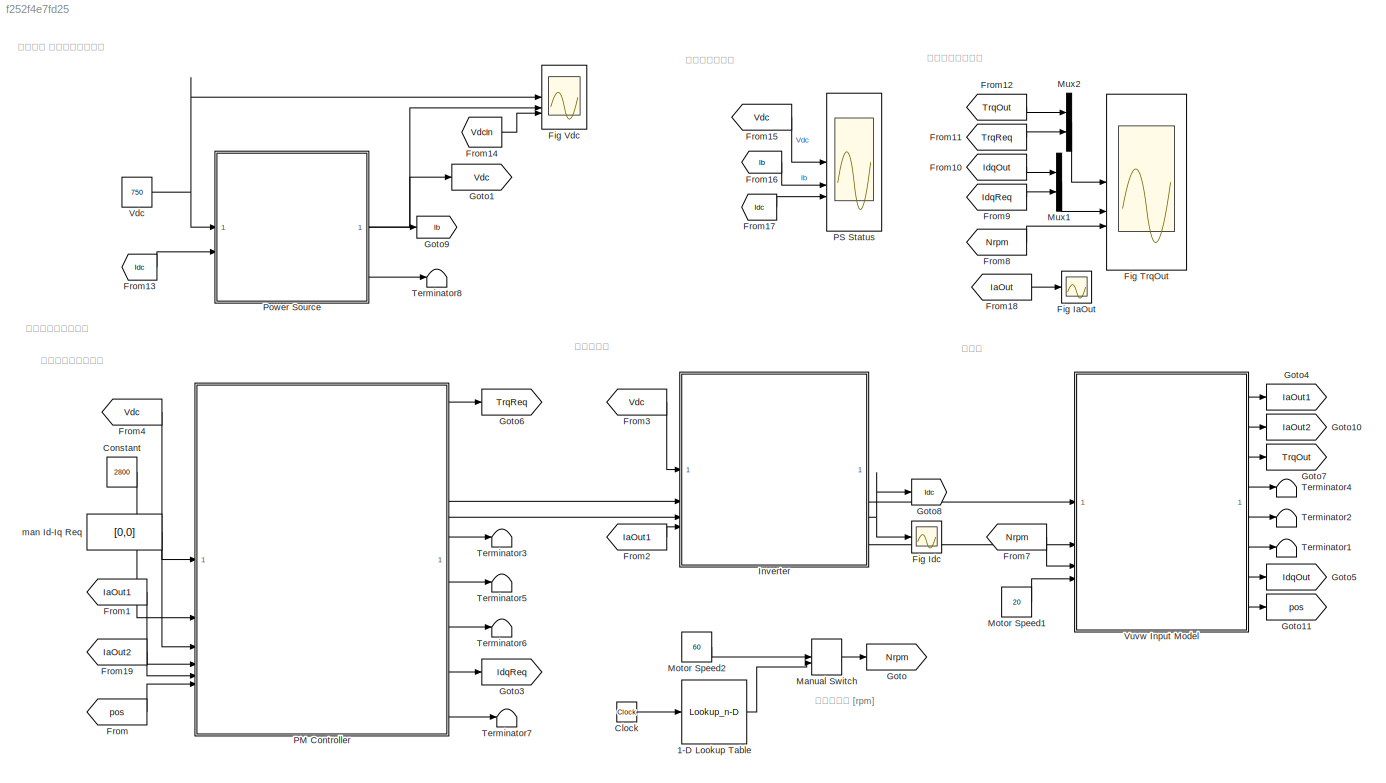
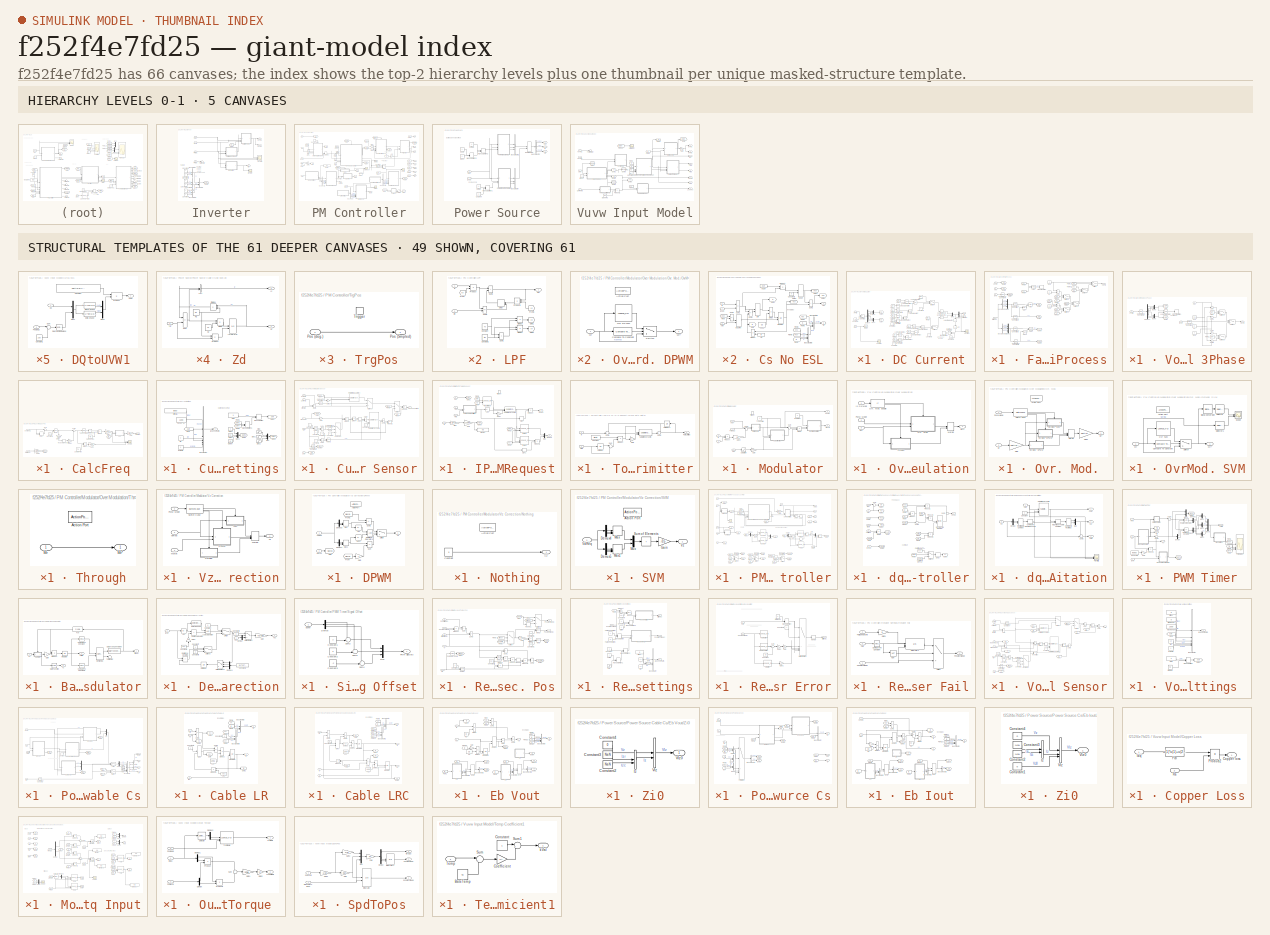
[diagram: thumbnail index - top-2 hierarchy levels (5 canvases) + 49 structural-template representatives of the remaining 61 canvases]
MODEL slx_f252f4e7fd25
KIND model
CONFIG AbsTol = auto
CONFIG EnableMultiTasking = off
CONFIG FixedStep = auto
CONFIG MaxStep = auto
CONFIG MinStep = auto
CONFIG RelTol = 1e-3
CONFIG SampleTimeConstraint = Unconstrained
CONFIG SolverName = VariableStepAuto
CONFIG StartTime = 0.0
CONFIG StopTime = 0.5
BLOCK [Lookup_n-D] 1-D Lookup Table
  BreakpointsForDimension1 = [0 0.01 0.1 0.4 0.5]
  InputPortMap = u0
  InternalRulePriority = Speed
  NumberOfTableDimensions = 1
  RndMeth = Simplest
  Table = [0 0 1050 1400 1400]
BLOCK [Clock] Clock
BLOCK [Constant] Constant
  Value = 2800
BLOCK [Scope] Fig IaOut
  Floating = off
  NumInputPorts = 1
  ScopeSpecificationString = Simulink.scopes.TimeScopeBlockCfg('CurrentConfiguration', extmgr.ConfigurationSet(extmgr.Configuration('Core','General UI',true),extmgr.Configuration('Core','Source UI',true),extmgr.Configuration('Sources','WiredSimulink',true,'DataLoggingVariableName','ScopeData2'),extmgr.Configuration('Visuals','Time Domain',true,'SerializedDisplays',{struct('MinYLimReal','-1040.45144','MaxYLimReal','1050.42847'...<+1518ch>
BLOCK [Scope] Fig Idc
  Floating = off
  NumInputPorts = 1
  ScopeSpecificationString = Simulink.scopes.TimeScopeBlockCfg('CurrentConfiguration', extmgr.ConfigurationSet(extmgr.Configuration('Core','General UI',true),extmgr.Configuration('Core','Source UI',true),extmgr.Configuration('Sources','WiredSimulink',true,'DataLoggingVariableName','IdcLoad','DataLogging',true,'DataLoggingSaveFormat','Array'),extmgr.Configuration('Visuals','Time Domain',true,'SerializedDisplays',{struct('MinYL...<+1531ch>
BLOCK [Scope] Fig TrqOut
  Floating = off
  NumInputPorts = 3
  ScopeSpecificationString = Simulink.scopes.TimeScopeBlockCfg('CurrentConfiguration', extmgr.ConfigurationSet(extmgr.Configuration('Core','General UI',true),extmgr.Configuration('Core','Source UI',true),extmgr.Configuration('Sources','WiredSimulink',true,'DataLoggingVariableName','ScopeData1'),extmgr.Configuration('Visuals','Time Domain',true,'SerializedDisplays',{struct('MinYLimReal','-378.24659','MaxYLimReal','3403.75747',...<+2980ch>
BLOCK [Scope] Fig Vdc
  Floating = off
  NumInputPorts = 3
  ScopeSpecificationString = Simulink.scopes.TimeScopeBlockCfg('CurrentConfiguration', extmgr.ConfigurationSet(extmgr.Configuration('Core','General UI',true),extmgr.Configuration('Core','Source UI',true),extmgr.Configuration('Sources','WiredSimulink',true,'DataLoggingVariableName','ScopeData1'),extmgr.Configuration('Visuals','Time Domain',true,'SerializedDisplays',{struct('MinYLimReal','714.44347','MaxYLimReal','753.99686','Y...<+1501ch>
BLOCK [From] From
  GotoTag = pos
BLOCK [From] From1
  GotoTag = IaOut1
BLOCK [From] From10
  GotoTag = IdqOut
BLOCK [From] From11
  GotoTag = TrqReq
BLOCK [From] From12
  GotoTag = TrqOut
BLOCK [From] From13
  GotoTag = Idc
BLOCK [From] From14
  GotoTag = VdcIn
  TagVisibility = global
BLOCK [From] From15
  GotoTag = Vdc
BLOCK [From] From16
  GotoTag = Ib
BLOCK [From] From17
  GotoTag = Idc
BLOCK [From] From18
  GotoTag = IaOut
  TagVisibility = global
BLOCK [From] From19
  GotoTag = IaOut2
BLOCK [From] From2
  GotoTag = IaOut1
BLOCK [From] From3
  GotoTag = Vdc
BLOCK [From] From4
  GotoTag = Vdc
BLOCK [From] From7
  GotoTag = Nrpm
BLOCK [From] From8
  GotoTag = Nrpm
BLOCK [From] From9
  GotoTag = IdqReq
BLOCK [Goto] Goto
  GotoTag = Nrpm
BLOCK [Goto] Goto1
  GotoTag = Vdc
BLOCK [Goto] Goto10
  GotoTag = IaOut2
BLOCK [Goto] Goto11
  GotoTag = pos
BLOCK [Goto] Goto3
  GotoTag = IdqReq
BLOCK [Goto] Goto4
  GotoTag = IaOut1
BLOCK [Goto] Goto5
  GotoTag = IdqOut
BLOCK [Goto] Goto6
  GotoTag = TrqReq
BLOCK [Goto] Goto7
  GotoTag = TrqOut
BLOCK [Goto] Goto8
  GotoTag = Idc
BLOCK [Goto] Goto9
  GotoTag = Ib
BLOCK [SubSystem] Inverter
BLOCK [BusCreator] Inverter/Bus Creator
  DisplayOption = bar
  InheritFromInputs = on
  Inputs = 2
BLOCK [BusCreator] Inverter/Bus Creator1
  DisplayOption = bar
  InheritFromInputs = on
  Inputs = 2
BLOCK [BusCreator] Inverter/Bus Creator2
  DisplayOption = bar
  InheritFromInputs = on
  Inputs = 2
BLOCK [BusCreator] Inverter/Bus Creator3
  DisplayOption = bar
  InheritFromInputs = on
  Inputs = 3
BLOCK [Constant] Inverter/Constant1
  Value = 0
BLOCK [Constant] Inverter/Constant2
  Value = 0
BLOCK [Constant] Inverter/Constant3
  Value = 0
BLOCK [Constant] Inverter/Constant4
  Value = 0
BLOCK [Constant] Inverter/Constant5
  Value = 0
BLOCK [Constant] Inverter/Constant6
  Value = 0
BLOCK [SubSystem] Inverter/DC Current
BLOCK [Abs] Inverter/DC Current/Abs
  NameLocation = left
  SaturateOnIntegerOverflow = off
  ZeroCross = off
BLOCK [Constant] Inverter/DC Current/Constant1
  Value = 0.5
BLOCK [Constant] Inverter/DC Current/Constant2
  Value = 1.0e-4
BLOCK [Constant] Inverter/DC Current/Constant3
  Value = 0
BLOCK [Constant] Inverter/DC Current/Constant4
  Value = 0
BLOCK [Constant] Inverter/DC Current/Constant5
  Value = 0
BLOCK [Constant] Inverter/DC Current/Constant6
  Value = 0
BLOCK [Demux] Inverter/DC Current/Demux3
  Outputs = 2
BLOCK [Demux] Inverter/DC Current/Demux4
  Outputs = 6
BLOCK [From] Inverter/DC Current/From1
  GotoTag = IaIdc
BLOCK [From] Inverter/DC Current/From10
  GotoTag = SuI
  IconDisplay = Tag and signal name
BLOCK [From] Inverter/DC Current/From11
  GotoTag = SdI
BLOCK [From] Inverter/DC Current/From12
  GotoTag = SuI
BLOCK [From] Inverter/DC Current/From13
  GotoTag = SdI
BLOCK [From] Inverter/DC Current/From14
  GotoTag = IaIdc
BLOCK [From] Inverter/DC Current/From15
  GotoTag = IaIdc
BLOCK [From] Inverter/DC Current/From17
  GotoTag = SdI
BLOCK [From] Inverter/DC Current/From18
  GotoTag = IaIdc
BLOCK [From] Inverter/DC Current/From19
  GotoTag = SuI
BLOCK [From] Inverter/DC Current/From20
  GotoTag = SdI
BLOCK [Goto] Inverter/DC Current/Goto2
  GotoTag = IaIdc
BLOCK [Goto] Inverter/DC Current/Goto3
  GotoTag = SuI
BLOCK [Goto] Inverter/DC Current/Goto4
  GotoTag = SdI
BLOCK [Outport] Inverter/DC Current/Idc
BLOCK [Inport] Inverter/DC Current/Iuvw
  Port = 2
BLOCK [Logic] Inverter/DC Current/Logical Operator10
  AllPortsSameDT = off
  OutDataTypeStr = boolean
BLOCK [Logic] Inverter/DC Current/Logical Operator11
  AllPortsSameDT = off
  OutDataTypeStr = boolean
BLOCK [Logic] Inverter/DC Current/Logical Operator14
  AllPortsSameDT = off
  Operator = NOT
  OutDataTypeStr = boolean
BLOCK [Logic] Inverter/DC Current/Logical Operator15
  AllPortsSameDT = off
  OutDataTypeStr = boolean
BLOCK [Logic] Inverter/DC Current/Logical Operator16
  AllPortsSameDT = off
  Operator = OR
  OutDataTypeStr = boolean
BLOCK [Logic] Inverter/DC Current/Logical Operator17
  AllPortsSameDT = off
  Operator = NOT
  OutDataTypeStr = boolean
BLOCK [Logic] Inverter/DC Current/Logical Operator4
  AllPortsSameDT = off
  OutDataTypeStr = boolean
BLOCK [Logic] Inverter/DC Current/Logical Operator5
  AllPortsSameDT = off
  Operator = NOT
  OutDataTypeStr = boolean
BLOCK [Logic] Inverter/DC Current/Logical Operator6
  AllPortsSameDT = off
  Operator = OR
  OutDataTypeStr = boolean
BLOCK [Logic] Inverter/DC Current/Logical Operator7
  AllPortsSameDT = off
  OutDataTypeStr = boolean
BLOCK [Logic] Inverter/DC Current/Logical Operator8
  AllPortsSameDT = off
  Operator = NOT
  OutDataTypeStr = boolean
BLOCK [Logic] Inverter/DC Current/Logical Operator9
  AllPortsSameDT = off
  Operator = NOT
  OutDataTypeStr = boolean
BLOCK [Mux] Inverter/DC Current/Mux3
  DisplayOption = bar
  Inputs = 2
BLOCK [Mux] Inverter/DC Current/Mux5
  DisplayOption = bar
  Inputs = 3
BLOCK [Mux] Inverter/DC Current/Mux6
  DisplayOption = bar
  Inputs = 3
BLOCK [RelationalOperator] Inverter/DC Current/Relational Operator1
  InputSameDT = off
  Operator = >
  OutDataTypeStr = boolean
BLOCK [RelationalOperator] Inverter/DC Current/Relational Operator2
  InputSameDT = off
  Operator = >
  OutDataTypeStr = boolean
  ZeroCross = off
BLOCK [RelationalOperator] Inverter/DC Current/Relational Operator3
  InputSameDT = off
  Operator = <
  OutDataTypeStr = boolean
  ZeroCross = off
BLOCK [RelationalOperator] Inverter/DC Current/Relational Operator4
  InputSameDT = off
  OutDataTypeStr = boolean
  ZeroCross = off
BLOCK [Stop] Inverter/DC Current/Stop Simulation
BLOCK [Sum] Inverter/DC Current/Sum of Elements
  IconShape = rectangular
  Inputs = +
BLOCK [Sum] Inverter/DC Current/Sum of Elements1
  IconShape = rectangular
  Inputs = +
BLOCK [Sum] Inverter/DC Current/Sum of Elements2
  IconShape = rectangular
  Inputs = +
  NameLocation = left
BLOCK [Switch] Inverter/DC Current/Switch1
  Criteria = u2 > Threshold
  InputSameDT = off
  SaturateOnIntegerOverflow = off
BLOCK [Switch] Inverter/DC Current/Switch5
  Criteria = u2 > Threshold
  InputSameDT = off
  SaturateOnIntegerOverflow = off
BLOCK [Terminator] Inverter/DC Current/Terminator
BLOCK [Scope] Inverter/DC Current/VuvwD1
  Floating = off
  NumInputPorts = 2
  ScopeSpecificationString = Simulink.scopes.TimeScopeBlockCfg('CurrentConfiguration', extmgr.ConfigurationSet(extmgr.Configuration('Core','General UI',true),extmgr.Configuration('Core','Source UI',true),extmgr.Configuration('Sources','WiredSimulink',true,'DataLoggingVariableName','ScopeData3'),extmgr.Configuration('Visuals','Time Domain',true,'SerializedDisplays',{struct('MinYLimReal','-1066.34511','MaxYLimReal','1066.32181'...<+2163ch>
BLOCK [Scope] Inverter/DC Current/VuvwD2
  Floating = off
  NumInputPorts = 2
  ScopeSpecificationString = Simulink.scopes.TimeScopeBlockCfg('CurrentConfiguration', extmgr.ConfigurationSet(extmgr.Configuration('Core','General UI',true),extmgr.Configuration('Core','Source UI',true),extmgr.Configuration('Sources','WiredSimulink',true,'DataLoggingVariableName','ScopeData2'),extmgr.Configuration('Visuals','Time Domain',true,'SerializedDisplays',{struct('MinYLimReal','-116.78592','MaxYLimReal','960.84113','...<+2158ch>
BLOCK [Inport] Inverter/DC Current/sPWM
BLOCK [SubSystem] Inverter/Fail Process
BLOCK [Logic] Inverter/Fail Process/AND
  AllPortsSameDT = off
  IconShape = distinctive
  OutDataTypeStr = boolean
BLOCK [Logic] Inverter/Fail Process/AND1
  AllPortsSameDT = off
  IconShape = distinctive
  OutDataTypeStr = boolean
BLOCK [Logic] Inverter/Fail Process/AND2
  AllPortsSameDT = off
  IconShape = distinctive
  OutDataTypeStr = boolean
BLOCK [BusSelector] Inverter/Fail Process/Bus Selector
  OutputSignals = Su.up,Sv.up,Sw.up
BLOCK [BusSelector] Inverter/Fail Process/Bus Selector1
  OutputSignals = Su.dwn,Sv.dwn,Sw.dwn
BLOCK [Reference] Inverter/Fail Process/Compare To Constant  REF=simulink/Logic and Bit
Operations/Compare
To Constant
  SourceBlock = simulink/Logic and Bit\nOperations/Compare\nTo Constant
  SourceType = Compare To Constant
BLOCK [Reference] Inverter/Fail Process/Compare To Constant1  REF=simulink/Logic and Bit
Operations/Compare
To Constant
  SourceBlock = simulink/Logic and Bit\nOperations/Compare\nTo Constant
  SourceType = Compare To Constant
BLOCK [Reference] Inverter/Fail Process/Compare To Constant2  REF=simulink/Logic and Bit
Operations/Compare
To Constant
  SourceBlock = simulink/Logic and Bit\nOperations/Compare\nTo Constant
  SourceType = Compare To Constant
BLOCK [Reference] Inverter/Fail Process/Compare To Constant3  REF=simulink/Logic and Bit
Operations/Compare
To Constant
  SourceBlock = simulink/Logic and Bit\nOperations/Compare\nTo Constant
  SourceType = Compare To Constant
BLOCK [Reference] Inverter/Fail Process/Compare To Constant4  REF=simulink/Logic and Bit
Operations/Compare
To Constant
  SourceBlock = simulink/Logic and Bit\nOperations/Compare\nTo Constant
  SourceType = Compare To Constant
BLOCK [From] Inverter/Fail Process/From
  GotoTag = UpS
BLOCK [From] Inverter/Fail Process/From1
  GotoTag = DnS
BLOCK [From] Inverter/Fail Process/From10
  GotoTag = Va
BLOCK [From] Inverter/Fail Process/From11
  GotoTag = DnO
BLOCK [From] Inverter/Fail Process/From12
  GotoTag = UpO
BLOCK [From] Inverter/Fail Process/From2
  GotoTag = Vdc
BLOCK [From] Inverter/Fail Process/From3
  GotoTag = UpS
BLOCK [From] Inverter/Fail Process/From4
  GotoTag = Va
BLOCK [From] Inverter/Fail Process/From5
  GotoTag = DnS
BLOCK [From] Inverter/Fail Process/From8
  GotoTag = Vdc
BLOCK [From] Inverter/Fail Process/From9
  GotoTag = IsIaPos
BLOCK [Constant] Inverter/Fail Process/Gnd
  Value = 0
BLOCK [Goto] Inverter/Fail Process/Goto2
  GotoTag = UpS
BLOCK [Goto] Inverter/Fail Process/Goto3
  GotoTag = UpO
BLOCK [Goto] Inverter/Fail Process/Goto5
  GotoTag = DnS
BLOCK [Goto] Inverter/Fail Process/Goto6
  GotoTag = DnO
BLOCK [Goto] Inverter/Fail Process/Goto7
  GotoTag = IsIaPos
BLOCK [Goto] Inverter/Fail Process/Goto8
  GotoTag = Vdc
BLOCK [Goto] Inverter/Fail Process/Goto9
  GotoTag = Va
BLOCK [Inport] Inverter/Fail Process/Iuvw
  Port = 3
BLOCK [Mux] Inverter/Fail Process/Mux
  DisplayOption = bar
  Inputs = 3
BLOCK [Mux] Inverter/Fail Process/Mux1
  DisplayOption = bar
  Inputs = 3
BLOCK [Logic] Inverter/Fail Process/NOT
  AllPortsSameDT = off
  IconShape = distinctive
  Operator = NOT
  OutDataTypeStr = boolean
BLOCK [Logic] Inverter/Fail Process/NOT2
  AllPortsSameDT = off
  IconShape = distinctive
  Operator = NOT
  OutDataTypeStr = boolean
BLOCK [Stop] Inverter/Fail Process/Stop Simulation
BLOCK [Sum] Inverter/Fail Process/Sum1
  IconShape = rectangular
BLOCK [Sum] Inverter/Fail Process/Sum4
  IconShape = rectangular
  Inputs = +-
BLOCK [Switch] Inverter/Fail Process/Switch
  Criteria = u2 > Threshold
  InputSameDT = off
  SaturateOnIntegerOverflow = off
BLOCK [Switch] Inverter/Fail Process/Switch1
  Criteria = u2 > Threshold
  InputSameDT = off
  SaturateOnIntegerOverflow = off
BLOCK [Switch] Inverter/Fail Process/Switch2
  Criteria = u2 > Threshold
  InputSameDT = off
  SaturateOnIntegerOverflow = off
BLOCK [Switch] Inverter/Fail Process/Switch4
  Criteria = u2 > Threshold
  InputSameDT = off
  SaturateOnIntegerOverflow = off
BLOCK [Switch] Inverter/Fail Process/Switch5
  Criteria = u2 > Threshold
  InputSameDT = off
  SaturateOnIntegerOverflow = off
BLOCK [Constant] Inverter/Fail Process/Vce
  Value = Vce
BLOCK [Inport] Inverter/Fail Process/Vdc
  Port = 2
BLOCK [Constant] Inverter/Fail Process/Vf
  Value = Vf
BLOCK [Outport] Inverter/Fail Process/Vuvw
BLOCK [Inport] Inverter/Fail Process/Vuvw*
BLOCK [Inport] Inverter/Fail Process/fail Mode
  Port = 4
BLOCK [From] Inverter/From
  GotoTag = Fail
BLOCK [Goto] Inverter/Goto3
  GotoTag = Fail
BLOCK [Outport] Inverter/Idc
  Port = 3
BLOCK [Scope] Inverter/IdcOut
  Floating = off
  NumInputPorts = 1
  ScopeSpecificationString = Simulink.scopes.TimeScopeBlockCfg('CurrentConfiguration', extmgr.ConfigurationSet(extmgr.Configuration('Core','General UI',true),extmgr.Configuration('Core','Source UI',true),extmgr.Configuration('Sources','WiredSimulink',true,'DataLoggingVariableName','ScopeData1','DataLoggingLimitDataPoints',true,'DataLoggingSaveFormat','Array','DataLoggingDecimation','1','DataLoggingDecimateData',true),extmgr.C...<+1506ch>
BLOCK [Inport] Inverter/Iuvw
  Port = 4
  PortDimensions = 3
BLOCK [Inport] Inverter/PWM1
  Port = 2
  PortDimensions = 6
BLOCK [Inport] Inverter/PWM2
  Port = 3
  PortDimensions = 6
BLOCK [Terminator] Inverter/Terminator
BLOCK [Scope] Inverter/Va PWM
  Floating = off
  NumInputPorts = 3
  ScopeSpecificationString = Simulink.scopes.TimeScopeBlockCfg('CurrentConfiguration', extmgr.ConfigurationSet(extmgr.Configuration('Core','General UI',true),extmgr.Configuration('Core','Source UI',true),extmgr.Configuration('Sources','WiredSimulink',true,'DataLoggingVariableName','ScopeData2','DataLoggingSaveFormat','Array','DataLoggingDecimation','1'),extmgr.Configuration('Visuals','Time Domain',true,'SerializedDisplays',{s...<+1671ch>
BLOCK [Inport] Inverter/Vdc
BLOCK [SubSystem] Inverter/Voltage 3Phase
BLOCK [Reference] Inverter/Voltage 3Phase/Compare To Constant  REF=simulink/Logic and Bit
Operations/Compare
To Constant
  SourceBlock = simulink/Logic and Bit\nOperations/Compare\nTo Constant
  SourceType = Compare To Constant
BLOCK [Reference] Inverter/Voltage 3Phase/Compare To Constant1  REF=simulink/Logic and Bit
Operations/Compare
To Constant
  Commented = through
  SourceBlock = simulink/Logic and Bit\nOperations/Compare\nTo Constant
  SourceType = Compare To Constant
BLOCK [Demux] Inverter/Voltage 3Phase/Demux4
  Outputs = 6
BLOCK [From] Inverter/Voltage 3Phase/From
  GotoTag = SuP
BLOCK [From] Inverter/Voltage 3Phase/From1
  GotoTag = SdP
BLOCK [Constant] Inverter/Voltage 3Phase/Gnd
  Value = 0
BLOCK [Goto] Inverter/Voltage 3Phase/Goto
  GotoTag = SuP
BLOCK [Goto] Inverter/Voltage 3Phase/Goto1
  GotoTag = SdP
BLOCK [Inport] Inverter/Voltage 3Phase/Iuvw
  Port = 3
BLOCK [Logic] Inverter/Voltage 3Phase/Logical Operator
  AllPortsSameDT = off
  OutDataTypeStr = boolean
BLOCK [Mux] Inverter/Voltage 3Phase/Mux5
  DisplayOption = bar
  Inputs = 3
BLOCK [Mux] Inverter/Voltage 3Phase/Mux6
  DisplayOption = bar
  Inputs = 3
BLOCK [Stop] Inverter/Voltage 3Phase/Stop Simulation
BLOCK [Sum] Inverter/Voltage 3Phase/Sum
  Inputs = +-|
BLOCK [Sum] Inverter/Voltage 3Phase/Sum1
  Inputs = |++
BLOCK [Sum] Inverter/Voltage 3Phase/Sum4
  Inputs = ++|
BLOCK [Sum] Inverter/Voltage 3Phase/Sum5
  Inputs = |-+
BLOCK [Switch] Inverter/Voltage 3Phase/Switch
  Criteria = u2 > Threshold
  InputSameDT = off
  SaturateOnIntegerOverflow = off
BLOCK [Switch] Inverter/Voltage 3Phase/Switch1
  Criteria = u2 > Threshold
  InputSameDT = off
  SaturateOnIntegerOverflow = off
BLOCK [Switch] Inverter/Voltage 3Phase/Switch2
  Criteria = u2 > Threshold
  InputSameDT = off
  SaturateOnIntegerOverflow = off
BLOCK [Constant] Inverter/Voltage 3Phase/Vce
  Value = Vce
BLOCK [Inport] Inverter/Voltage 3Phase/Vdc
BLOCK [Constant] Inverter/Voltage 3Phase/Vf
  Value = Vf
BLOCK [Outport] Inverter/Voltage 3Phase/Vuvw
BLOCK [Inport] Inverter/Voltage 3Phase/sPWM
  Port = 2
BLOCK [Outport] Inverter/Vuvw1
BLOCK [Outport] Inverter/Vuvw2
  Port = 2
BLOCK [ManualSwitch] Manual Switch
  CurrentSetting = 0
BLOCK [Constant] Motor Speed1
  Value = 20
BLOCK [Constant] Motor Speed2
  Value = 60
BLOCK [Mux] Mux1
  DisplayOption = bar
  Inputs = 2
BLOCK [Mux] Mux2
  DisplayOption = bar
  Inputs = 2
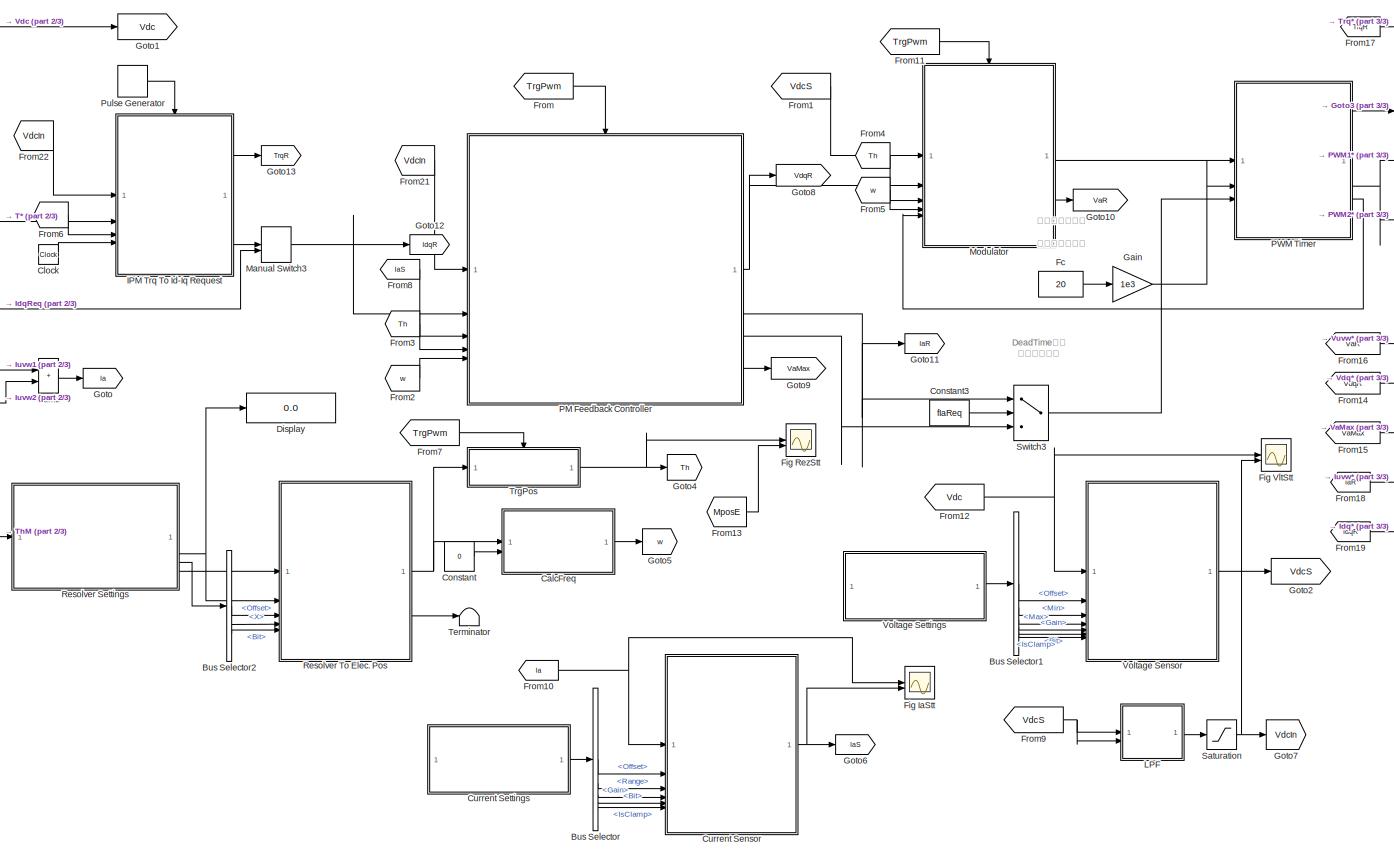
[diagram: PM Controller - part 1/3, most of the canvas]
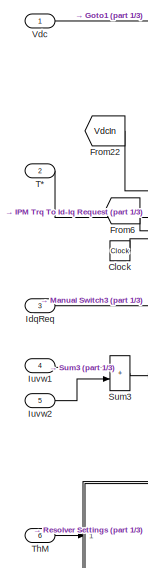
[diagram: PM Controller - part 2/3, middle left region]
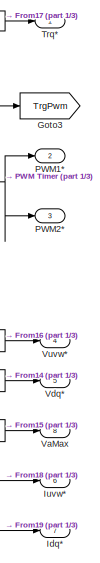
[diagram: PM Controller - part 3/3, middle right region]
BLOCK [SubSystem] PM Controller
BLOCK [BusSelector] PM Controller/Bus Selector
  OutputSignals = Offset,Range,Gain,Bit,IsClamp
BLOCK [BusSelector] PM Controller/Bus Selector1
  OutputSignals = Offset,Min,Max,Gain,Bit,IsClamp
BLOCK [BusSelector] PM Controller/Bus Selector2
  OutputSignals = Offset,X,Bit
BLOCK [SubSystem] PM Controller/CalcFreq
BLOCK [Constant] PM Controller/CalcFreq/Constant2
  Value = 360
BLOCK [Delay] PM Controller/CalcFreq/Delay
  DelayLength = 1
  InitialConditionSource = Input port
  InputPortMap = u0,p4
BLOCK [Product] PM Controller/CalcFreq/Divide1
  Inputs = */
BLOCK [Product] PM Controller/CalcFreq/Divide2
  Inputs = */
BLOCK [From] PM Controller/CalcFreq/From
  GotoTag = fa0
BLOCK [Gain] PM Controller/CalcFreq/FtoW
  Gain = 2*pi
BLOCK [Gain] PM Controller/CalcFreq/Gain1
  Gain = 1/360
BLOCK [Gain] PM Controller/CalcFreq/Gain2
  Gain = 360
BLOCK [Gain] PM Controller/CalcFreq/Gain3
  Gain = 1/180
  NameLocation = left
BLOCK [Gain] PM Controller/CalcFreq/Gain4
  Gain = 1/360
BLOCK [Gain] PM Controller/CalcFreq/Gain5
  Gain = 1/(2*pi)
BLOCK [Goto] PM Controller/CalcFreq/Goto1
  GotoTag = fa0
BLOCK [Inport] PM Controller/CalcFreq/Ini w [rad.//s]
  Port = 2
  SampleTime = Ts
BLOCK [SubSystem] PM Controller/CalcFreq/LPF
BLOCK [Constant] PM Controller/CalcFreq/LPF/Constant
  Value = Ts
BLOCK [Constant] PM Controller/CalcFreq/LPF/Constant1
  Value = tau
BLOCK [Delay] PM Controller/CalcFreq/LPF/Delay
  DelayLength = 1
  InitialConditionSource = Input port
  InputPortMap = u0,p4
BLOCK [Product] PM Controller/CalcFreq/LPF/Divide1
  Inputs = */
BLOCK [Product] PM Controller/CalcFreq/LPF/Divide3
  Inputs = */
BLOCK [From] PM Controller/CalcFreq/LPF/From
  GotoTag = kX
BLOCK [From] PM Controller/CalcFreq/LPF/From1
  GotoTag = kY
BLOCK [Goto] PM Controller/CalcFreq/LPF/Goto1
  GotoTag = kX
BLOCK [Goto] PM Controller/CalcFreq/LPF/Goto2
  GotoTag = kY
BLOCK [Inport] PM Controller/CalcFreq/LPF/In
  SampleTime = Ts
BLOCK [Inport] PM Controller/CalcFreq/LPF/Init
  Port = 2
  SampleTime = Ts
BLOCK [Outport] PM Controller/CalcFreq/LPF/Out
BLOCK [Product] PM Controller/CalcFreq/LPF/Product
BLOCK [Product] PM Controller/CalcFreq/LPF/Product1
BLOCK [Sum] PM Controller/CalcFreq/LPF/Sum1
  IconShape = rectangular
BLOCK [Sum] PM Controller/CalcFreq/LPF/Sum2
  IconShape = rectangular
BLOCK [Sum] PM Controller/CalcFreq/LPF/Sum3
  IconShape = rectangular
  Inputs = -+
BLOCK [Math] PM Controller/CalcFreq/Mod1
  Operator = mod
BLOCK [Rounding] PM Controller/CalcFreq/Rounding Function
  Operator = fix
BLOCK [Constant] PM Controller/CalcFreq/Sample Time
  Value = Ts
BLOCK [Constant] PM Controller/CalcFreq/Sample Time1
  Value = Tw
BLOCK [Scope] PM Controller/CalcFreq/Scope
  Commented = on
  Floating = off
  NumInputPorts = 3
  ScopeSpecificationString = Simulink.scopes.TimeScopeBlockCfg('CurrentConfiguration', extmgr.ConfigurationSet(extmgr.Configuration('Core','General UI',true),extmgr.Configuration('Core','Source UI',true),extmgr.Configuration('Sources','WiredSimulink',true,'DataLoggingVariableName','ScopeData1'),extmgr.Configuration('Visuals','Time Domain',true,'SerializedDisplays',{struct('MinYLimReal','-27.77778','MaxYLimReal','250.00000','Y...<+1541ch>
BLOCK [Sum] PM Controller/CalcFreq/Sum
  Inputs = |+-
BLOCK [Sum] PM Controller/CalcFreq/Sum of Elements
  IconShape = rectangular
  Inputs = +
BLOCK [Sum] PM Controller/CalcFreq/Sum1
  Inputs = |+-
BLOCK [Reference] PM Controller/CalcFreq/Tapped Delay  REF=simulink/Discrete/Tapped Delay
  SourceBlock = simulink/Discrete/Tapped Delay
  SourceType = Tapped Delay Line
BLOCK [Outport] PM Controller/CalcFreq/omg. [rad.  ]
BLOCK [Inport] PM Controller/CalcFreq/pos [deg.]
  SampleTime = Ts
BLOCK [Clock] PM Controller/Clock
BLOCK [Constant] PM Controller/Constant
  Value = 0
BLOCK [Constant] PM Controller/Constant3
  Value = fIaReq
BLOCK [SubSystem] PM Controller/Current Sensor
BLOCK [Reference] PM Controller/Current Sensor/Compare To Constant  REF=simulink/Logic and Bit
Operations/Compare
To Constant
  SourceBlock = simulink/Logic and Bit\nOperations/Compare\nTo Constant
  SourceType = Compare To Constant
BLOCK [Reference] PM Controller/Current Sensor/Compare To Constant1  REF=simulink/Logic and Bit
Operations/Compare
To Constant
  SourceBlock = simulink/Logic and Bit\nOperations/Compare\nTo Constant
  SourceType = Compare To Constant
BLOCK [Reference] PM Controller/Current Sensor/Compare To Constant2  REF=simulink/Logic and Bit
Operations/Compare
To Constant
  SourceBlock = simulink/Logic and Bit\nOperations/Compare\nTo Constant
  SourceType = Compare To Constant
BLOCK [Constant] PM Controller/Current Sensor/Constant
  Value = 2
BLOCK [Constant] PM Controller/Current Sensor/Constant1
BLOCK [Constant] PM Controller/Current Sensor/Constant4
BLOCK [Constant] PM Controller/Current Sensor/Constant6
BLOCK [Constant] PM Controller/Current Sensor/Constant7
  Value = 2
BLOCK [Constant] PM Controller/Current Sensor/Constant8
  Value = 0
BLOCK [Inport] PM Controller/Current Sensor/Current [A]
  PortDimensions = 3
BLOCK [Product] PM Controller/Current Sensor/Divide3
  Inputs = */
BLOCK [Product] PM Controller/Current Sensor/Divide4
  Inputs = */
BLOCK [From] PM Controller/Current Sensor/From
  GotoTag = gain
BLOCK [From] PM Controller/Current Sensor/From3
  GotoTag = bitMode
BLOCK [From] PM Controller/Current Sensor/From4
  GotoTag = Range
BLOCK [Gain] PM Controller/Current Sensor/Gain
  Gain = 2
BLOCK [Gain] PM Controller/Current Sensor/Gain1
  Gain = -1
BLOCK [Goto] PM Controller/Current Sensor/Goto1
  GotoTag = bitMode
BLOCK [Goto] PM Controller/Current Sensor/Goto2
  GotoTag = gain
BLOCK [Goto] PM Controller/Current Sensor/Goto3
  GotoTag = Range
BLOCK [Inport] PM Controller/Current Sensor/Offset [A]
  Port = 2
  PortDimensions = 3
BLOCK [Math] PM Controller/Current Sensor/Power
  Operator = pow
BLOCK [Math] PM Controller/Current Sensor/Power1
  Operator = pow
BLOCK [Product] PM Controller/Current Sensor/Product1
BLOCK [Product] PM Controller/Current Sensor/Product2
BLOCK [Inport] PM Controller/Current Sensor/Range [A]
  Port = 3
BLOCK [Rounding] PM Controller/Current Sensor/Round
  Operator = round
BLOCK [Reference] PM Controller/Current Sensor/Saturation Dynamic  REF=simulink/Discontinuities/Saturation
Dynamic
  SourceBlock = simulink/Discontinuities/Saturation\nDynamic
  SourceType = Saturation Dynamic
BLOCK [Reference] PM Controller/Current Sensor/Saturation Dynamic1  REF=simulink/Discontinuities/Saturation
Dynamic
  SourceBlock = simulink/Discontinuities/Saturation\nDynamic
  SourceType = Saturation Dynamic
BLOCK [Outport] PM Controller/Current Sensor/Sensed Current [A]
BLOCK [Sum] PM Controller/Current Sensor/Sum
  IconShape = rectangular
BLOCK [Sum] PM Controller/Current Sensor/Sum1
  IconShape = rectangular
  Inputs = +-
BLOCK [Sum] PM Controller/Current Sensor/Sum2
  IconShape = rectangular
  Inputs = +-
BLOCK [Sum] PM Controller/Current Sensor/Sum3
  IconShape = rectangular
BLOCK [Sum] PM Controller/Current Sensor/Sum4
  IconShape = rectangular
  Inputs = +-
BLOCK [Switch] PM Controller/Current Sensor/Switch
  Criteria = u2 > Threshold
  InputSameDT = off
  SaturateOnIntegerOverflow = off
BLOCK [Switch] PM Controller/Current Sensor/Switch1
  Criteria = u2 > Threshold
  InputSameDT = off
  SaturateOnIntegerOverflow = off
BLOCK [Switch] PM Controller/Current Sensor/avoid div0  
  Criteria = u2 > Threshold
  InputSameDT = off
  SaturateOnIntegerOverflow = off
BLOCK [Inport] PM Controller/Current Sensor/bit
  Port = 5
BLOCK [Inport] PM Controller/Current Sensor/gain
  Port = 4
BLOCK [Inport] PM Controller/Current Sensor/isClamp
  Port = 6
BLOCK [SubSystem] PM Controller/Current Settings
BLOCK [Constant] PM Controller/Current Settings/Bit
  Value = 0
BLOCK [BusCreator] PM Controller/Current Settings/Bus Creator
  DisplayOption = bar
  InheritFromInputs = on
  Inputs = 5
BLOCK [From] PM Controller/Current Settings/From
  GotoTag = gain
BLOCK [From] PM Controller/Current Settings/From1
  GotoTag = GainC
BLOCK [From] PM Controller/Current Settings/From2
  GotoTag = gainT
BLOCK [Constant] PM Controller/Current Settings/Gain
BLOCK [Constant] PM Controller/Current Settings/Gain U
  Value = 0
BLOCK [Constant] PM Controller/Current Settings/Gain V
  Value = 0.2
BLOCK [Constant] PM Controller/Current Settings/Gain W
  Value = 1.5
BLOCK [Goto] PM Controller/Current Settings/Goto1
  GotoTag = gainT
BLOCK [Goto] PM Controller/Current Settings/Goto2
  GotoTag = gain
BLOCK [Goto] PM Controller/Current Settings/Goto3
  GotoTag = GainC
BLOCK [Outport] PM Controller/Current Settings/Ia Sensor Parm.
BLOCK [Constant] PM Controller/Current Settings/IsClamp
  Value = 0
BLOCK [ManualSwitch] PM Controller/Current Settings/Manual Switch
BLOCK [ManualSwitch] PM Controller/Current Settings/Manual Switch1
BLOCK [Mux] PM Controller/Current Settings/Mux
  DisplayOption = bar
  Inputs = 3
BLOCK [Mux] PM Controller/Current Settings/Mux1
  DisplayOption = bar
  Inputs = 3
BLOCK [Constant] PM Controller/Current Settings/Offset [A]
  Value = [0 0 0]
BLOCK [Constant] PM Controller/Current Settings/Range　[A]
  Value = 1200
BLOCK [Step] PM Controller/Current Settings/Step
  After = 0.3
  Before = 1
  SampleTime = 0
  Time = 0.5
BLOCK [Step] PM Controller/Current Settings/Step1
  After = 0
  Before = 1
  SampleTime = 0
  Time = 0.8
BLOCK [Step] PM Controller/Current Settings/Step2
  After = 1.5
  Before = 1
  SampleTime = 0
  Time = 0.7
BLOCK [Display] PM Controller/Display
  Decimation = 1
BLOCK [Constant] PM Controller/Fc
  Value = 20
BLOCK [Scope] PM Controller/Fig IaStt
  Floating = off
  NumInputPorts = 2
  ScopeSpecificationString = Simulink.scopes.TimeScopeBlockCfg('CurrentConfiguration', extmgr.ConfigurationSet(extmgr.Configuration('Core','General UI',true),extmgr.Configuration('Core','Source UI',true),extmgr.Configuration('Sources','WiredSimulink',true,'DataLoggingVariableName','ScopeData2'),extmgr.Configuration('Visuals','Time Domain',true,'SerializedDisplays',{struct('MinYLimReal','-1039.34066','MaxYLimReal','1037.58242'...<+1563ch>
BLOCK [Scope] PM Controller/Fig RezStt
  Floating = off
  NumInputPorts = 2
  ScopeSpecificationString = Simulink.scopes.TimeScopeBlockCfg('CurrentConfiguration', extmgr.ConfigurationSet(extmgr.Configuration('Core','General UI',true),extmgr.Configuration('Core','Source UI',true),extmgr.Configuration('Sources','WiredSimulink',true,'DataLoggingVariableName','ScopeData4'),extmgr.Configuration('Visuals','Time Domain',true,'SerializedDisplays',{struct('MinYLimReal','-45.00000','MaxYLimReal','405.00000','Y...<+1489ch>
BLOCK [Scope] PM Controller/Fig VltStt
  Floating = off
  NumInputPorts = 2
  ScopeSpecificationString = Simulink.scopes.TimeScopeBlockCfg('CurrentConfiguration', extmgr.ConfigurationSet(extmgr.Configuration('Core','General UI',true),extmgr.Configuration('Core','Source UI',true),extmgr.Configuration('Sources','WiredSimulink',true,'DataLoggingVariableName','ScopeData1'),extmgr.Configuration('Visuals','Time Domain',true,'SerializedDisplays',{struct('MinYLimReal','530.18813','MaxYLimReal','608.02821','Y...<+1471ch>
BLOCK [From] PM Controller/From
  GotoTag = TrgPwm
BLOCK [From] PM Controller/From1
  GotoTag = VdcS
BLOCK [From] PM Controller/From10
  GotoTag = Ia
BLOCK [From] PM Controller/From11
  GotoTag = TrgPwm
BLOCK [From] PM Controller/From12
  GotoTag = Vdc
BLOCK [From] PM Controller/From13
  GotoTag = MposE
  TagVisibility = global
BLOCK [From] PM Controller/From14
  GotoTag = VdqR
BLOCK [From] PM Controller/From15
  GotoTag = VaMax
BLOCK [From] PM Controller/From16
  GotoTag = VaR
BLOCK [From] PM Controller/From17
  GotoTag = TrqR
BLOCK [From] PM Controller/From18
  GotoTag = IaR
BLOCK [From] PM Controller/From19
  GotoTag = IdqR
BLOCK [From] PM Controller/From2
  GotoTag = w
BLOCK [From] PM Controller/From21
  GotoTag = VdcIn
  TagVisibility = global
BLOCK [From] PM Controller/From22
  GotoTag = VdcIn
  TagVisibility = global
BLOCK [From] PM Controller/From3
  GotoTag = Th
BLOCK [From] PM Controller/From4
  GotoTag = Th
BLOCK [From] PM Controller/From5
  GotoTag = w
BLOCK [From] PM Controller/From6
  GotoTag = w
BLOCK [From] PM Controller/From7
  GotoTag = TrgPwm
BLOCK [From] PM Controller/From8
  GotoTag = IaS
BLOCK [From] PM Controller/From9
  GotoTag = VdcS
BLOCK [Gain] PM Controller/Gain
  Gain = 1e3
BLOCK [Goto] PM Controller/Goto
  GotoTag = Ia
BLOCK [Goto] PM Controller/Goto1
  GotoTag = Vdc
BLOCK [Goto] PM Controller/Goto10
  GotoTag = VaR
BLOCK [Goto] PM Controller/Goto11
  GotoTag = IaR
BLOCK [Goto] PM Controller/Goto12
  GotoTag = IdqR
BLOCK [Goto] PM Controller/Goto13
  GotoTag = TrqR
BLOCK [Goto] PM Controller/Goto2
  GotoTag = VdcS
BLOCK [Goto] PM Controller/Goto3
  GotoTag = TrgPwm
BLOCK [Goto] PM Controller/Goto4
  GotoTag = Th
BLOCK [Goto] PM Controller/Goto5
  GotoTag = w
BLOCK [Goto] PM Controller/Goto6
  GotoTag = IaS
  NameLocation = left
BLOCK [Goto] PM Controller/Goto7
  GotoTag = VdcIn
  TagVisibility = global
BLOCK [Goto] PM Controller/Goto8
  GotoTag = VdqR
BLOCK [Goto] PM Controller/Goto9
  GotoTag = VaMax
BLOCK [SubSystem] PM Controller/IPM Trq To Id-Iq Request
BLOCK [Abs] PM Controller/IPM Trq To Id-Iq Request/Abs
  SaturateOnIntegerOverflow = off
BLOCK [Display] PM Controller/IPM Trq To Id-Iq Request/Display
  Decimation = 1
BLOCK [From] PM Controller/IPM Trq To Id-Iq Request/From
  GotoTag = Vdc
BLOCK [From] PM Controller/IPM Trq To Id-Iq Request/From1
  GotoTag = Nrpm
BLOCK [From] PM Controller/IPM Trq To Id-Iq Request/From2
  GotoTag = Nrpm
BLOCK [From] PM Controller/IPM Trq To Id-Iq Request/From3
  GotoTag = Vdc
BLOCK [Gain] PM Controller/IPM Trq To Id-Iq Request/Gain
  Gain = 120/nP
BLOCK [Gain] PM Controller/IPM Trq To Id-Iq Request/Gain1
  Gain = -1
BLOCK [Goto] PM Controller/IPM Trq To Id-Iq Request/Goto1
  GotoTag = Vdc
BLOCK [Goto] PM Controller/IPM Trq To Id-Iq Request/Goto3
  GotoTag = Nrpm
BLOCK [Lookup_n-D] PM Controller/IPM Trq To Id-Iq Request/Id Map
  BreakpointsForDimension1 = TrqIdx
  BreakpointsForDimension2 = NsIdx
  BreakpointsForDimension3 = VdcIdx
  InputPortMap = u0,u1,u2
  InternalRulePriority = Speed
  NumberOfTableDimensions = 3
  RndMeth = Simplest
  Table = IdMap
BLOCK [Outport] PM Controller/IPM Trq To Id-Iq Request/IdqReq
  Port = 2
BLOCK [Lookup_n-D] PM Controller/IPM Trq To Id-Iq Request/Iq Map
  BreakpointsForDimension1 = TrqIdx
  BreakpointsForDimension2 = NsIdx
  BreakpointsForDimension3 = VdcIdx
  InputPortMap = u0,u1,u2
  InternalRulePriority = Speed
  NumberOfTableDimensions = 3
  RndMeth = Simplest
  Table = IqMap
BLOCK [Mux] PM Controller/IPM Trq To Id-Iq Request/Mux
  DisplayOption = bar
  Inputs = 2
BLOCK [Product] PM Controller/IPM Trq To Id-Iq Request/Product
BLOCK [Product] PM Controller/IPM Trq To Id-Iq Request/Product1
BLOCK [Reference] PM Controller/IPM Trq To Id-Iq Request/Saturation Dynamic  REF=simulink/Discontinuities/Saturation
Dynamic
  SourceBlock = simulink/Discontinuities/Saturation\nDynamic
  SourceType = Saturation Dynamic
BLOCK [Signum] PM Controller/IPM Trq To Id-Iq Request/Sign
BLOCK [Signum] PM Controller/IPM Trq To Id-Iq Request/Sign1
BLOCK [Inport] PM Controller/IPM Trq To Id-Iq Request/Time
  Port = 4
BLOCK [SubSystem] PM Controller/IPM Trq To Id-Iq Request/Torque Rate Limitter
BLOCK [Constant] PM Controller/IPM Trq To Id-Iq Request/Torque Rate Limitter/Constant
  Value = DltLmt
BLOCK [Gain] PM Controller/IPM Trq To Id-Iq Request/Torque Rate Limitter/Gain
  Gain = -1
BLOCK [Inport] PM Controller/IPM Trq To Id-Iq Request/Torque Rate Limitter/In
BLOCK [Product] PM Controller/IPM Trq To Id-Iq Request/Torque Rate Limitter/Product
BLOCK [Outport] PM Controller/IPM Trq To Id-Iq Request/Torque Rate Limitter/Rate Limited
  PortDimensions = 1
BLOCK [Reference] PM Controller/IPM Trq To Id-Iq Request/Torque Rate Limitter/Saturation Dynamic  REF=simulink/Discontinuities/Saturation
Dynamic
  SourceBlock = simulink/Discontinuities/Saturation\nDynamic
  SourceType = Saturation Dynamic
BLOCK [Sum] PM Controller/IPM Trq To Id-Iq Request/Torque Rate Limitter/Sum
  Inputs = |-+
BLOCK [Sum] PM Controller/IPM Trq To Id-Iq Request/Torque Rate Limitter/Sum1
  Inputs = -+|
BLOCK [Sum] PM Controller/IPM Trq To Id-Iq Request/Torque Rate Limitter/Sum2
  Inputs = ++|
BLOCK [Inport] PM Controller/IPM Trq To Id-Iq Request/Torque Rate Limitter/Time
  Port = 2
BLOCK [UnitDelay] PM Controller/IPM Trq To Id-Iq Request/Torque Rate Limitter/Unit Delay
  HasFrameUpgradeWarning = on
  SampleTime = -1
BLOCK [UnitDelay] PM Controller/IPM Trq To Id-Iq Request/Torque Rate Limitter/Unit Delay1
  HasFrameUpgradeWarning = on
  SampleTime = -1
BLOCK [TriggerPort] PM Controller/IPM Trq To Id-Iq Request/Trigger
  PortDimensions = 1
  StatesWhenEnabling = held
  VariantControl = Variant
BLOCK [Lookup_n-D] PM Controller/IPM Trq To Id-Iq Request/Trq Limt Map
  BreakpointsForDimension1 = NsIdx
  BreakpointsForDimension2 = VdcIdx
  BreakpointsForDimension3 = VdcIdx
  InputPortMap = u0,u1
  InternalRulePriority = Speed
  RndMeth = Simplest
  Table = MapLimitTrq
BLOCK [Inport] PM Controller/IPM Trq To Id-Iq Request/TrqIn
  Port = 2
BLOCK [Outport] PM Controller/IPM Trq To Id-Iq Request/TrqReq
BLOCK [Inport] PM Controller/IPM Trq To Id-Iq Request/Vdc
BLOCK [Gain] PM Controller/IPM Trq To Id-Iq Request/WtoF
  Gain = 1/(2*pi)
BLOCK [Inport] PM Controller/IPM Trq To Id-Iq Request/w
  Port = 3
BLOCK [Outport] PM Controller/Idq*
  Port = 7
BLOCK [Inport] PM Controller/IdqReq
  Port = 3
  PortDimensions = 2
BLOCK [Outport] PM Controller/Iuvw*
  Port = 6
BLOCK [Inport] PM Controller/Iuvw1
  Port = 4
  PortDimensions = 3
BLOCK [Inport] PM Controller/Iuvw2
  Port = 5
  PortDimensions = 3
BLOCK [SubSystem] PM Controller/LPF
BLOCK [Constant] PM Controller/LPF/Constant
  Value = Ts
BLOCK [Constant] PM Controller/LPF/Constant1
  Value = tau
BLOCK [Delay] PM Controller/LPF/Delay
  DelayLength = 1
  InitialConditionSource = Input port
  InputPortMap = u0,p4
BLOCK [Product] PM Controller/LPF/Divide1
  Inputs = */
BLOCK [Product] PM Controller/LPF/Divide3
  Inputs = */
BLOCK [From] PM Controller/LPF/From
  GotoTag = kX
BLOCK [From] PM Controller/LPF/From1
  GotoTag = kY
BLOCK [Goto] PM Controller/LPF/Goto1
  GotoTag = kX
BLOCK [Goto] PM Controller/LPF/Goto2
  GotoTag = kY
BLOCK [Inport] PM Controller/LPF/In
  SampleTime = Ts
BLOCK [Inport] PM Controller/LPF/Init
  Port = 2
  SampleTime = Ts
BLOCK [Outport] PM Controller/LPF/Out
BLOCK [Product] PM Controller/LPF/Product
BLOCK [Product] PM Controller/LPF/Product1
BLOCK [Sum] PM Controller/LPF/Sum1
  IconShape = rectangular
BLOCK [Sum] PM Controller/LPF/Sum2
  IconShape = rectangular
BLOCK [Sum] PM Controller/LPF/Sum3
  IconShape = rectangular
  Inputs = -+
BLOCK [ManualSwitch] PM Controller/Manual Switch3
BLOCK [SubSystem] PM Controller/Modulator
BLOCK [SubSystem] PM Controller/Modulator/DQ to UVW
BLOCK [Constant] PM Controller/Modulator/DQ to UVW/Constant
  Value = sqrt(2/3)*[1 -1/2 -1/2; 0 sqrt(3)/2 -sqrt(3)/2]'
BLOCK [Constant] PM Controller/Modulator/DQ to UVW/Constant1
  Value = 180
BLOCK [Reference] PM Controller/Modulator/DQ to UVW/Degrees to Radians  REF=simulink_extras/Transformations/Degrees to
Radians
  SourceBlock = simulink_extras/Transformations/Degrees to\nRadians
  SourceType = DegreesToRadians
BLOCK [Mux] PM Controller/Modulator/DQ to UVW/Mux1
  DisplayOption = bar
  Inputs = 2
BLOCK [Mux] PM Controller/Modulator/DQ to UVW/Mux2
  DisplayOption = bar
  Inputs = 2
BLOCK [Product] PM Controller/Modulator/DQ to UVW/Product
  Multiplication = Matrix(*)
BLOCK [Sum] PM Controller/Modulator/DQ to UVW/Sum
  Inputs = |++
BLOCK [Inport] PM Controller/Modulator/DQ to UVW/Th
  Port = 2
BLOCK [Outport] PM Controller/Modulator/DQ to UVW/UVW
BLOCK [Fcn] PM Controller/Modulator/DQ to UVW/alpha-phase
  Expr = u(1)*cos(u(3))-u(2)*sin(u(3))
  NameLocation = top
BLOCK [Fcn] PM Controller/Modulator/DQ to UVW/bet-phase
  Expr = u(1)*sin(u(3))+u(2)*cos(u(3))
BLOCK [Inport] PM Controller/Modulator/DQ to UVW/dq
BLOCK [Product] PM Controller/Modulator/Divide
  Inputs = */
BLOCK [Gain] PM Controller/Modulator/Gain
  Gain = 0.5
BLOCK [Gain] PM Controller/Modulator/Gain2
  Gain = 1.5
BLOCK [Constant] PM Controller/Modulator/IsOvrMod
  Value = 0
BLOCK [Outport] PM Controller/Modulator/Muvw
BLOCK [SubSystem] PM Controller/Modulator/Over Modulation
BLOCK [Inport] PM Controller/Modulator/Over Modulation/Is OvrMod
BLOCK [Merge] PM Controller/Modulator/Over Modulation/Merge
BLOCK [Inport] PM Controller/Modulator/Over Modulation/Mr
  Port = 3
BLOCK [Outport] PM Controller/Modulator/Over Modulation/Mr*
BLOCK [SubSystem] PM Controller/Modulator/Over Modulation/Ovr. Mod.
  TreatAsAtomicUnit = on
BLOCK [If] PM Controller/Modulator/Over Modulation/Ovr. Mod. Enable
BLOCK [ActionPort] PM Controller/Modulator/Over Modulation/Ovr. Mod./Action Port
  ActionPortLabel = if(u1 > 0)
BLOCK [Gain] PM Controller/Modulator/Over Modulation/Ovr. Mod./Gain
  Gain = sqrt(2)/2
BLOCK [Gain] PM Controller/Modulator/Over Modulation/Ovr. Mod./Gain1
  Gain = sqrt(2)
BLOCK [Merge] PM Controller/Modulator/Over Modulation/Ovr. Mod./Merge
  Inputs = 3
BLOCK [Inport] PM Controller/Modulator/Over Modulation/Ovr. Mod./Mr
  Port = 2
BLOCK [Outport] PM Controller/Modulator/Over Modulation/Ovr. Mod./Mr*
BLOCK [SubSystem] PM Controller/Modulator/Over Modulation/Ovr. Mod./OvrMod. DPWM
  TreatAsAtomicUnit = on
BLOCK [ActionPort] PM Controller/Modulator/Over Modulation/Ovr. Mod./OvrMod. DPWM/Action Port
  ActionPortLabel = case [ 1 ]:
BLOCK [Reference] PM Controller/Modulator/Over Modulation/Ovr. Mod./OvrMod. DPWM/Compare To Constant  REF=simulink/Logic and Bit
Operations/Compare
To Constant
  SourceBlock = simulink/Logic and Bit\nOperations/Compare\nTo Constant
  SourceType = Compare To Constant
BLOCK [Inport] PM Controller/Modulator/Over Modulation/Ovr. Mod./OvrMod. DPWM/Mr
BLOCK [Outport] PM Controller/Modulator/Over Modulation/Ovr. Mod./OvrMod. DPWM/Mr*
BLOCK [Lookup_n-D] PM Controller/Modulator/Over Modulation/Ovr. Mod./OvrMod. DPWM/Ovr DPWM
  ApplyFullPrecisionForLinearInterpolation = on
  BreakpointsForDimension1 = [0.7, 0.7001, 0.7002, 0.7003, 0.7004, 0.7005, 0.7006, 0.7007, 0.7008, 0.7009, 0.701, 0.7011, 0.7012, 0.7013, 0.7014, 0.7015, 0.7016, 0.7017, 0.7018, 0.7019, 0.702, 0.7021, 0.7022, 0.7023, 0.7024, 0.7025, 0.7026, 0.7027, 0.7028, 0.7029, 0.703, 0.7031, 0.7032, 0.7033, 0.7034, 0.7035, 0.7036, 0.7037, 0.7038, 0.7039, 0.704, 0.7041, 0.7042, 0.7043, 0.7044, 0.7045, 0.7046, 0.7047, 0.7048, 0.7049, 0.705,...<+5839ch>  <repeated x3 — deduplicated; at blocks: Ovr DPWM, Ovr SPWM, Ovr SVM>
  ExtrapMethod = Clip
  IndexSearchMethod = Evenly spaced points
  InputPortMap = u0
  InternalRulePriority = Speed
  NumberOfTableDimensions = 1
  RndMeth = Simplest
  Table = [0.7, 0.7001, 0.7002, 0.7003, 0.7004, 0.7005, 0.7006, 0.7007, 0.7008, 0.7009, 0.701, 0.7011, 0.7012, 0.7013, 0.7014, 0.7015, 0.7016, 0.7017, 0.7018, 0.7019, 0.702, 0.7021, 0.7022, 0.7023, 0.7024, 0.7025, 0.7026, 0.7027, 0.7028, 0.7029, 0.703, 0.7031, 0.7032, 0.7033, 0.7034, 0.7035, 0.7036, 0.7037, 0.7038, 0.7039, 0.704, 0.7041, 0.7042, 0.7043, 0.7044, 0.7045, 0.7046, 0.7047, 0.7048, 0.7049, 0.705,...<+7271ch>
  UseLastTableValue = on
BLOCK [Switch] PM Controller/Modulator/Over Modulation/Ovr. Mod./OvrMod. DPWM/Switch
  Criteria = u2 > Threshold
  InputSameDT = off
  SaturateOnIntegerOverflow = off
BLOCK [SubSystem] PM Controller/Modulator/Over Modulation/Ovr. Mod./OvrMod. SPWM
  TreatAsAtomicUnit = on
BLOCK [ActionPort] PM Controller/Modulator/Over Modulation/Ovr. Mod./OvrMod. SPWM/Action Port
  ActionPortLabel = default:
BLOCK [Reference] PM Controller/Modulator/Over Modulation/Ovr. Mod./OvrMod. SPWM/Compare To Constant  REF=simulink/Logic and Bit
Operations/Compare
To Constant
  SourceBlock = simulink/Logic and Bit\nOperations/Compare\nTo Constant
  SourceType = Compare To Constant
BLOCK [Inport] PM Controller/Modulator/Over Modulation/Ovr. Mod./OvrMod. SPWM/Mr
BLOCK [Outport] PM Controller/Modulator/Over Modulation/Ovr. Mod./OvrMod. SPWM/Mr*
BLOCK [Lookup_n-D] PM Controller/Modulator/Over Modulation/Ovr. Mod./OvrMod. SPWM/Ovr SPWM
  ApplyFullPrecisionForLinearInterpolation = on
  ExtrapMethod = Clip
  IndexSearchMethod = Evenly spaced points
  InputPortMap = u0
  InternalRulePriority = Speed
  NumberOfTableDimensions = 1
  RndMeth = Simplest
  Table = [0.822459, 0.822918, 0.823377, 0.823838, 0.824299, 0.824762, 0.825225, 0.825689, 0.826154, 0.82662, 0.827087, 0.827555, 0.828024, 0.828494, 0.828965, 0.829437, 0.82991, 0.830383, 0.830858, 0.831334, 0.831811, 0.832288, 0.832767, 0.833247, 0.833727, 0.834209, 0.834691, 0.835175, 0.83566, 0.836145, 0.836632, 0.837119, 0.837608, 0.838098, 0.838588, 0.83908, 0.839573, 0.840067, 0.840562, 0.841057, 0.8...<+6904ch>
  UseLastTableValue = on
BLOCK [Switch] PM Controller/Modulator/Over Modulation/Ovr. Mod./OvrMod. SPWM/Switch
  Criteria = u2 > Threshold
  InputSameDT = off
  SaturateOnIntegerOverflow = off
BLOCK [SubSystem] PM Controller/Modulator/Over Modulation/Ovr. Mod./OvrMod. SVM
  TreatAsAtomicUnit = on
BLOCK [ActionPort] PM Controller/Modulator/Over Modulation/Ovr. Mod./OvrMod. SVM/Action Port
  ActionPortLabel = case [ 0 ]:
BLOCK [Reference] PM Controller/Modulator/Over Modulation/Ovr. Mod./OvrMod. SVM/Compare To Constant  REF=simulink/Logic and Bit
Operations/Compare
To Constant
  SourceBlock = simulink/Logic and Bit\nOperations/Compare\nTo Constant
  SourceType = Compare To Constant
BLOCK [Inport] PM Controller/Modulator/Over Modulation/Ovr. Mod./OvrMod. SVM/Mr
BLOCK [Outport] PM Controller/Modulator/Over Modulation/Ovr. Mod./OvrMod. SVM/Mr*
BLOCK [Lookup_n-D] PM Controller/Modulator/Over Modulation/Ovr. Mod./OvrMod. SVM/Ovr SVM
  ApplyFullPrecisionForLinearInterpolation = on
  ExtrapMethod = Clip
  IndexSearchMethod = Evenly spaced points
  InputPortMap = u0
  InternalRulePriority = Speed
  NumberOfTableDimensions = 1
  RndMeth = Simplest
  Table = [0.7, 0.7001, 0.7002, 0.7003, 0.7004, 0.7005, 0.7006, 0.7007, 0.7008, 0.7009, 0.701, 0.7011, 0.7012, 0.7013, 0.7014, 0.7015, 0.7016, 0.7017, 0.7018, 0.7019, 0.702, 0.7021, 0.7022, 0.7023, 0.7024, 0.7025, 0.7026, 0.7027, 0.7028, 0.7029, 0.703, 0.7031, 0.7032, 0.7033, 0.7034, 0.7035, 0.7036, 0.7037, 0.7038, 0.7039, 0.704, 0.7041, 0.7042, 0.7043, 0.7044, 0.7045, 0.7046, 0.7047, 0.7048, 0.7049, 0.705,...<+7072ch>
  UseLastTableValue = on
BLOCK [Scope] PM Controller/Modulator/Over Modulation/Ovr. Mod./OvrMod. SVM/Scope
  Floating = off
  NumInputPorts = 2
  ScopeSpecificationString = Simulink.scopes.TimeScopeBlockCfg('CurrentConfiguration', extmgr.ConfigurationSet(extmgr.Configuration('Core','General UI',true),extmgr.Configuration('Core','Source UI',true),extmgr.Configuration('Sources','WiredSimulink',true,'DataLoggingVariableName','ScopeData3'),extmgr.Configuration('Visuals','Time Domain',true,'SerializedDisplays',{struct('MinYLimReal','-0.88388','MaxYLimReal','0.88388','YLab...<+1452ch>
BLOCK [Selector] PM Controller/Modulator/Over Modulation/Ovr. Mod./OvrMod. SVM/Selector
  IndexOptions = Index vector (dialog)
  Indices = 1
  InputPortWidth = 3
  OutputSizes = 1
BLOCK [Selector] PM Controller/Modulator/Over Modulation/Ovr. Mod./OvrMod. SVM/Selector1
  IndexOptions = Index vector (dialog)
  Indices = 1
  InputPortWidth = 3
  OutputSizes = 1
BLOCK [SignalConversion] PM Controller/Modulator/Over Modulation/Ovr. Mod./OvrMod. SVM/Signal Conversion
  OverrideOpt = off
BLOCK [Switch] PM Controller/Modulator/Over Modulation/Ovr. Mod./OvrMod. SVM/Switch
  Criteria = u2 > Threshold
  InputSameDT = off
  SaturateOnIntegerOverflow = off
BLOCK [Inport] PM Controller/Modulator/Over Modulation/Ovr. Mod./PWM Mode
BLOCK [SwitchCase] PM Controller/Modulator/Over Modulation/Ovr. Mod./Switch Case
  CaseConditions = {0, 1}
BLOCK [Inport] PM Controller/Modulator/Over Modulation/PWM Mode
  Port = 2
BLOCK [SubSystem] PM Controller/Modulator/Over Modulation/Through
  TreatAsAtomicUnit = on
BLOCK [ActionPort] PM Controller/Modulator/Over Modulation/Through/Action Port
  ActionPortLabel = else
BLOCK [Inport] PM Controller/Modulator/Over Modulation/Through/Mr
BLOCK [Outport] PM Controller/Modulator/Over Modulation/Through/Mr*
BLOCK [Product] PM Controller/Modulator/Product
BLOCK [Saturate] PM Controller/Modulator/Saturation
  LinearizeAsGain = off
  LowerLimit = 1
  UpperLimit = inf
BLOCK [Sum] PM Controller/Modulator/Sum
  Inputs = |++
BLOCK [Sum] PM Controller/Modulator/Sum7
  Inputs = |+-
BLOCK [Inport] PM Controller/Modulator/Tc
  Port = 5
BLOCK [Inport] PM Controller/Modulator/Th [deg.]
  Port = 3
BLOCK [TriggerPort] PM Controller/Modulator/Trigger
  StatesWhenEnabling = held
  TriggerType = falling
  VariantControl = Variant
BLOCK [Constant] PM Controller/Modulator/TypePWM
  Value = 0
BLOCK [Inport] PM Controller/Modulator/Vdc
BLOCK [Inport] PM Controller/Modulator/Vdq*
  Port = 2
BLOCK [Outport] PM Controller/Modulator/Vuvw*
  Port = 2
BLOCK [SubSystem] PM Controller/Modulator/Vz Correction
BLOCK [SubSystem] PM Controller/Modulator/Vz Correction/DPWM
  TreatAsAtomicUnit = on
BLOCK [Abs] PM Controller/Modulator/Vz Correction/DPWM/Abs
  SaturateOnIntegerOverflow = off
BLOCK [Abs] PM Controller/Modulator/Vz Correction/DPWM/Abs1
  SaturateOnIntegerOverflow = off
BLOCK [ActionPort] PM Controller/Modulator/Vz Correction/DPWM/Action Port
  ActionPortLabel = case [ 1 ]:
BLOCK [Demux] PM Controller/Modulator/Vz Correction/DPWM/Demux3
  Outputs = 3
BLOCK [Demux] PM Controller/Modulator/Vz Correction/DPWM/Demux4
  Outputs = 3
BLOCK [From] PM Controller/Modulator/Vz Correction/DPWM/From
  GotoTag = MaxVa
BLOCK [From] PM Controller/Modulator/Vz Correction/DPWM/From1
  GotoTag = MaxVa
BLOCK [Gain] PM Controller/Modulator/Vz Correction/DPWM/Gain
  Gain = -1
BLOCK [Goto] PM Controller/Modulator/Vz Correction/DPWM/Goto
  GotoTag = MaxVa
BLOCK [MinMax] PM Controller/Modulator/Vz Correction/DPWM/Max
  Function = max
  Inputs = 3
  ZeroCross = off
BLOCK [MinMax] PM Controller/Modulator/Vz Correction/DPWM/Max1
  Inputs = 3
  ZeroCross = off
BLOCK [Inport] PM Controller/Modulator/Vz Correction/DPWM/MaxVa
  Port = 2
BLOCK [RelationalOperator] PM Controller/Modulator/Vz Correction/DPWM/Relational Operator3
  InputSameDT = off
  OutDataTypeStr = boolean
  RndMeth = Simplest
  ZeroCross = off
BLOCK [Sum] PM Controller/Modulator/Vz Correction/DPWM/Sum
  IconShape = rectangular
  Inputs = -+
BLOCK [Sum] PM Controller/Modulator/Vz Correction/DPWM/Sum2
  IconShape = rectangular
  Inputs = +-
BLOCK [Switch] PM Controller/Modulator/Vz Correction/DPWM/Switch
  Criteria = u2 > Threshold
  InputSameDT = off
  SaturateOnIntegerOverflow = off
BLOCK [Inport] PM Controller/Modulator/Vz Correction/DPWM/VaReq
BLOCK [Outport] PM Controller/Modulator/Vz Correction/DPWM/Vz
BLOCK [Inport] PM Controller/Modulator/Vz Correction/MaxVa
  Port = 3
BLOCK [Merge] PM Controller/Modulator/Vz Correction/Merge
  Inputs = 3
BLOCK [SubSystem] PM Controller/Modulator/Vz Correction/Nothing
  TreatAsAtomicUnit = on
BLOCK [ActionPort] PM Controller/Modulator/Vz Correction/Nothing/Action Port
  ActionPortLabel = default:
BLOCK [Constant] PM Controller/Modulator/Vz Correction/Nothing/Constant
  Value = 0
BLOCK [Outport] PM Controller/Modulator/Vz Correction/Nothing/Vz
BLOCK [Inport] PM Controller/Modulator/Vz Correction/PWM Mode
BLOCK [SubSystem] PM Controller/Modulator/Vz Correction/SVM
  TreatAsAtomicUnit = on
BLOCK [ActionPort] PM Controller/Modulator/Vz Correction/SVM/Action Port
  ActionPortLabel = case [ 0 ]:
BLOCK [Demux] PM Controller/Modulator/Vz Correction/SVM/Demux4
  Outputs = 3
BLOCK [Demux] PM Controller/Modulator/Vz Correction/SVM/Demux5
  Outputs = 3
BLOCK [Gain] PM Controller/Modulator/Vz Correction/SVM/Gain
  Gain = -0.5
BLOCK [MinMax] PM Controller/Modulator/Vz Correction/SVM/Max
  Function = max
  Inputs = 3
  ZeroCross = off
BLOCK [MinMax] PM Controller/Modulator/Vz Correction/SVM/Max1
  Inputs = 3
  ZeroCross = off
BLOCK [Mux] PM Controller/Modulator/Vz Correction/SVM/Mux
  DisplayOption = bar
  Inputs = 2
BLOCK [Sum] PM Controller/Modulator/Vz Correction/SVM/Sum of Elements
  IconShape = rectangular
  Inputs = +
BLOCK [Inport] PM Controller/Modulator/Vz Correction/SVM/VaReq
BLOCK [Outport] PM Controller/Modulator/Vz Correction/SVM/Vz
BLOCK [SwitchCase] PM Controller/Modulator/Vz Correction/Switch Case
  CaseConditions = {0, 1}
BLOCK [Inport] PM Controller/Modulator/Vz Correction/VaReq
  Port = 2
BLOCK [Outport] PM Controller/Modulator/Vz Correction/Vz
BLOCK [Inport] PM Controller/Modulator/w
  Port = 4
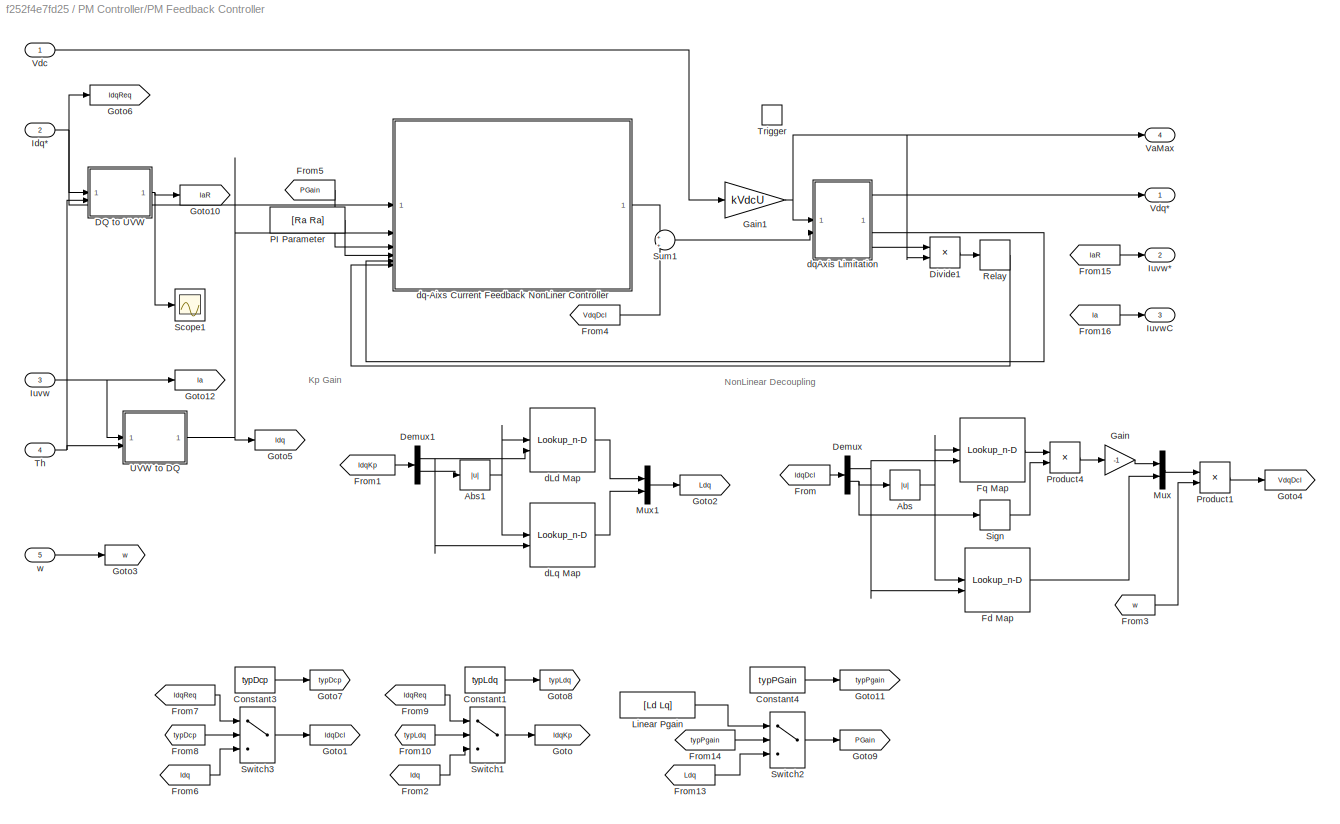
BLOCK [SubSystem] PM Controller/PM Feedback Controller
BLOCK [Abs] PM Controller/PM Feedback Controller/Abs
  SaturateOnIntegerOverflow = off
BLOCK [Abs] PM Controller/PM Feedback Controller/Abs1
  SaturateOnIntegerOverflow = off
BLOCK [Constant] PM Controller/PM Feedback Controller/Constant1
  Value = typLdq
BLOCK [Constant] PM Controller/PM Feedback Controller/Constant3
  Value = typDcp
BLOCK [Constant] PM Controller/PM Feedback Controller/Constant4
  Value = typPGain
BLOCK [SubSystem] PM Controller/PM Feedback Controller/DQ to UVW
BLOCK [Constant] PM Controller/PM Feedback Controller/DQ to UVW/Constant
  Value = sqrt(2/3)*[1 -1/2 -1/2; 0 sqrt(3)/2 -sqrt(3)/2]'
BLOCK [Constant] PM Controller/PM Feedback Controller/DQ to UVW/Constant1
  Value = 180
BLOCK [Reference] PM Controller/PM Feedback Controller/DQ to UVW/Degrees to Radians  REF=simulink_extras/Transformations/Degrees to
Radians
  SourceBlock = simulink_extras/Transformations/Degrees to\nRadians
  SourceType = DegreesToRadians
BLOCK [Mux] PM Controller/PM Feedback Controller/DQ to UVW/Mux1
  DisplayOption = bar
  Inputs = 2
BLOCK [Mux] PM Controller/PM Feedback Controller/DQ to UVW/Mux2
  DisplayOption = bar
  Inputs = 2
BLOCK [Product] PM Controller/PM Feedback Controller/DQ to UVW/Product
  Multiplication = Matrix(*)
BLOCK [Sum] PM Controller/PM Feedback Controller/DQ to UVW/Sum
  Inputs = |++
BLOCK [Inport] PM Controller/PM Feedback Controller/DQ to UVW/Th. [deg.]
  Port = 2
BLOCK [Outport] PM Controller/PM Feedback Controller/DQ to UVW/UVW
BLOCK [Fcn] PM Controller/PM Feedback Controller/DQ to UVW/alpha-phase
  Expr = u(1)*cos(u(3))-u(2)*sin(u(3))
  NameLocation = top
BLOCK [Fcn] PM Controller/PM Feedback Controller/DQ to UVW/beta-phase
  Expr = u(1)*sin(u(3))+u(2)*cos(u(3))
BLOCK [Inport] PM Controller/PM Feedback Controller/DQ to UVW/dq
BLOCK [Demux] PM Controller/PM Feedback Controller/Demux
  Outputs = 2
BLOCK [Demux] PM Controller/PM Feedback Controller/Demux1
  NameLocation = left
  Outputs = 2
BLOCK [Product] PM Controller/PM Feedback Controller/Divide1
  Inputs = */
BLOCK [Lookup_n-D] PM Controller/PM Feedback Controller/Fd Map
  BreakpointsForDimension1 = axIqY
  BreakpointsForDimension2 = axIdX
  InputPortMap = u0,u1
  InternalRulePriority = Speed
  RndMeth = Simplest
  Table = mIdqToFd
BLOCK [Lookup_n-D] PM Controller/PM Feedback Controller/Fq Map
  BreakpointsForDimension1 = axIqY
  BreakpointsForDimension2 = axIdX
  InputPortMap = u0,u1
  InternalRulePriority = Speed
  RndMeth = Simplest
  Table = mIdqToFq
BLOCK [From] PM Controller/PM Feedback Controller/From
  GotoTag = IdqDcl
BLOCK [From] PM Controller/PM Feedback Controller/From1
  GotoTag = IdqKp
BLOCK [From] PM Controller/PM Feedback Controller/From10
  GotoTag = typLdq
BLOCK [From] PM Controller/PM Feedback Controller/From13
  GotoTag = Ldq
BLOCK [From] PM Controller/PM Feedback Controller/From14
  GotoTag = typPgain
BLOCK [From] PM Controller/PM Feedback Controller/From15
  GotoTag = IaR
BLOCK [From] PM Controller/PM Feedback Controller/From16
  GotoTag = Ia
BLOCK [From] PM Controller/PM Feedback Controller/From2
  GotoTag = Idq
BLOCK [From] PM Controller/PM Feedback Controller/From3
  GotoTag = w
BLOCK [From] PM Controller/PM Feedback Controller/From4
  GotoTag = VdqDcl
BLOCK [From] PM Controller/PM Feedback Controller/From5
  GotoTag = PGain
BLOCK [From] PM Controller/PM Feedback Controller/From6
  GotoTag = Idq
BLOCK [From] PM Controller/PM Feedback Controller/From7
  GotoTag = IdqReq
BLOCK [From] PM Controller/PM Feedback Controller/From8
  GotoTag = typDcp
BLOCK [From] PM Controller/PM Feedback Controller/From9
  GotoTag = IdqReq
BLOCK [Gain] PM Controller/PM Feedback Controller/Gain
  Gain = -1
BLOCK [Gain] PM Controller/PM Feedback Controller/Gain1
  Gain = kVdcU
BLOCK [Goto] PM Controller/PM Feedback Controller/Goto
  GotoTag = IdqKp
BLOCK [Goto] PM Controller/PM Feedback Controller/Goto1
  GotoTag = IdqDcl
BLOCK [Goto] PM Controller/PM Feedback Controller/Goto10
  GotoTag = IaR
BLOCK [Goto] PM Controller/PM Feedback Controller/Goto11
  GotoTag = typPgain
BLOCK [Goto] PM Controller/PM Feedback Controller/Goto12
  GotoTag = Ia
BLOCK [Goto] PM Controller/PM Feedback Controller/Goto2
  GotoTag = Ldq
BLOCK [Goto] PM Controller/PM Feedback Controller/Goto3
  GotoTag = w
BLOCK [Goto] PM Controller/PM Feedback Controller/Goto4
  GotoTag = VdqDcl
BLOCK [Goto] PM Controller/PM Feedback Controller/Goto5
  GotoTag = Idq
BLOCK [Goto] PM Controller/PM Feedback Controller/Goto6
  GotoTag = IdqReq
BLOCK [Goto] PM Controller/PM Feedback Controller/Goto7
  GotoTag = typDcp
BLOCK [Goto] PM Controller/PM Feedback Controller/Goto8
  GotoTag = typLdq
BLOCK [Goto] PM Controller/PM Feedback Controller/Goto9
  GotoTag = PGain
BLOCK [Inport] PM Controller/PM Feedback Controller/Idq*
  Port = 2
BLOCK [Inport] PM Controller/PM Feedback Controller/Iuvw
  Port = 3
BLOCK [Outport] PM Controller/PM Feedback Controller/Iuvw*
  Port = 2
BLOCK [Outport] PM Controller/PM Feedback Controller/IuvwC
  Port = 3
BLOCK [Constant] PM Controller/PM Feedback Controller/Linear Pgain
  Value = [Ld Lq]
BLOCK [Mux] PM Controller/PM Feedback Controller/Mux
  DisplayOption = bar
  Inputs = 2
BLOCK [Mux] PM Controller/PM Feedback Controller/Mux1
  DisplayOption = bar
  Inputs = 2
BLOCK [Constant] PM Controller/PM Feedback Controller/PI Parameter
  Value = [Ra Ra]
BLOCK [Product] PM Controller/PM Feedback Controller/Product1
BLOCK [Product] PM Controller/PM Feedback Controller/Product4
BLOCK [Relay] PM Controller/PM Feedback Controller/Relay
  OffSwitchValue = 0.95
  OnSwitchValue = 0.98
BLOCK [Scope] PM Controller/PM Feedback Controller/Scope1
  Floating = off
  NumInputPorts = 1
  ScopeSpecificationString = Simulink.scopes.TimeScopeBlockCfg('CurrentConfiguration', extmgr.ConfigurationSet(extmgr.Configuration('Core','General UI',true),extmgr.Configuration('Core','Source UI',true),extmgr.Configuration('Sources','WiredSimulink',true,'DataLoggingVariableName','ScopeData3'),extmgr.Configuration('Visuals','Time Domain',true,'SerializedDisplays',{struct('MinYLimReal','-300.68731','MaxYLimReal','300.68731','...<+1412ch>
BLOCK [Signum] PM Controller/PM Feedback Controller/Sign
  NameLocation = top
BLOCK [Sum] PM Controller/PM Feedback Controller/Sum1
  Inputs = +|+
BLOCK [Switch] PM Controller/PM Feedback Controller/Switch1
  Criteria = u2 > Threshold
  InputSameDT = off
  SaturateOnIntegerOverflow = off
  Threshold = 0.5
BLOCK [Switch] PM Controller/PM Feedback Controller/Switch2
  Criteria = u2 > Threshold
  InputSameDT = off
  SaturateOnIntegerOverflow = off
  Threshold = 0.5
BLOCK [Switch] PM Controller/PM Feedback Controller/Switch3
  Criteria = u2 > Threshold
  InputSameDT = off
  SaturateOnIntegerOverflow = off
  Threshold = 0.5
BLOCK [Inport] PM Controller/PM Feedback Controller/Th
  Port = 4
BLOCK [TriggerPort] PM Controller/PM Feedback Controller/Trigger
  PortDimensions = 1
  StatesWhenEnabling = held
  TriggerType = falling
  VariantControl = Variant
BLOCK [SubSystem] PM Controller/PM Feedback Controller/UVW to DQ
BLOCK [Constant] PM Controller/PM Feedback Controller/UVW to DQ/Constant
  Value = sqrt(2/3)*[1 -1/2 -1/2; 0 sqrt(3)/2 -sqrt(3)/2]
BLOCK [Constant] PM Controller/PM Feedback Controller/UVW to DQ/Constant1
  Value = 180
BLOCK [Reference] PM Controller/PM Feedback Controller/UVW to DQ/Degrees to Radians  REF=simulink_extras/Transformations/Degrees to
Radians
  SourceBlock = simulink_extras/Transformations/Degrees to\nRadians
  SourceType = DegreesToRadians
BLOCK [Mux] PM Controller/PM Feedback Controller/UVW to DQ/Mux1
  DisplayOption = bar
  Inputs = 2
BLOCK [Mux] PM Controller/PM Feedback Controller/UVW to DQ/Mux2
  DisplayOption = bar
  Inputs = 2
BLOCK [Product] PM Controller/PM Feedback Controller/UVW to DQ/Product
  Multiplication = Matrix(*)
BLOCK [Sum] PM Controller/PM Feedback Controller/UVW to DQ/Sum
  Inputs = |++
BLOCK [Inport] PM Controller/PM Feedback Controller/UVW to DQ/Th(deg.)
  Port = 2
BLOCK [Inport] PM Controller/PM Feedback Controller/UVW to DQ/UVW
BLOCK [Fcn] PM Controller/PM Feedback Controller/UVW to DQ/d-Axis
  Expr = u(1)*cos(u(3))+u(2)*sin(u(3))
  NameLocation = top
BLOCK [Outport] PM Controller/PM Feedback Controller/UVW to DQ/dq
BLOCK [Fcn] PM Controller/PM Feedback Controller/UVW to DQ/q-Axis
  Expr = -u(1)*sin(u(3))+u(2)*cos(u(3))
BLOCK [Outport] PM Controller/PM Feedback Controller/VaMax
  Port = 4
BLOCK [Inport] PM Controller/PM Feedback Controller/Vdc
BLOCK [Outport] PM Controller/PM Feedback Controller/Vdq*
BLOCK [Lookup_n-D] PM Controller/PM Feedback Controller/dLd Map
  BreakpointsForDimension1 = axIdXdL
  BreakpointsForDimension2 = axIqYdL
  InputPortMap = u0,u1
  InternalRulePriority = Speed
  RndMeth = Simplest
  Table = mIdqToLd
BLOCK [Lookup_n-D] PM Controller/PM Feedback Controller/dLq Map
  BreakpointsForDimension1 = axIdXdL
  BreakpointsForDimension2 = axIqYdL
  InputPortMap = u0,u1
  InternalRulePriority = Speed
  RndMeth = Simplest
  Table = mIdqToLq
BLOCK [SubSystem] PM Controller/PM Feedback Controller/dq-Aixs Current Feedback NonLiner Controller
BLOCK [Inport] PM Controller/PM Feedback Controller/dq-Aixs Current Feedback NonLiner Controller/Anti Wup
  Port = 5
BLOCK [Constant] PM Controller/PM Feedback Controller/dq-Aixs Current Feedback NonLiner Controller/Cut-off Gain MTPA
  NameLocation = top
  Value = KcT
BLOCK [Constant] PM Controller/PM Feedback Controller/dq-Aixs Current Feedback NonLiner Controller/Cut-off Gain MTPA1
  Value = KcW
BLOCK [Delay] PM Controller/PM Feedback Controller/dq-Aixs Current Feedback NonLiner Controller/Delay
  DelayLength = 1
  InputPortMap = u0
BLOCK [DiscreteIntegrator] PM Controller/PM Feedback Controller/dq-Aixs Current Feedback NonLiner Controller/Discrete-Time Integrator
  ICPrevOutput = DiscIntNeverNeededParam
  ICPrevScaledInput = DiscIntNeverNeededParam
  InitialConditionSetting = Auto
  InitialConditionSource = external
  SampleTime = -1
BLOCK [Product] PM Controller/PM Feedback Controller/dq-Aixs Current Feedback NonLiner Controller/Divide
  Inputs = */
BLOCK [Outport] PM Controller/PM Feedback Controller/dq-Aixs Current Feedback NonLiner Controller/FbVal
BLOCK [From] PM Controller/PM Feedback Controller/dq-Aixs Current Feedback NonLiner Controller/From
  GotoTag = KpDQ
BLOCK [From] PM Controller/PM Feedback Controller/dq-Aixs Current Feedback NonLiner Controller/From1
  GotoTag = KpDQ
BLOCK [From] PM Controller/PM Feedback Controller/dq-Aixs Current Feedback NonLiner Controller/From13
  GotoTag = vAwp
BLOCK [From] PM Controller/PM Feedback Controller/dq-Aixs Current Feedback NonLiner Controller/From3
  GotoTag = KiDQ
BLOCK [From] PM Controller/PM Feedback Controller/dq-Aixs Current Feedback NonLiner Controller/From4
  GotoTag = KiDQ
BLOCK [From] PM Controller/PM Feedback Controller/dq-Aixs Current Feedback NonLiner Controller/From5
  GotoTag = Tgt
BLOCK [From] PM Controller/PM Feedback Controller/dq-Aixs Current Feedback NonLiner Controller/From6
  GotoTag = Err
BLOCK [From] PM Controller/PM Feedback Controller/dq-Aixs Current Feedback NonLiner Controller/From7
  GotoTag = Kc
BLOCK [From] PM Controller/PM Feedback Controller/dq-Aixs Current Feedback NonLiner Controller/From9
  GotoTag = FlgVfw
BLOCK [Goto] PM Controller/PM Feedback Controller/dq-Aixs Current Feedback NonLiner Controller/Goto
  GotoTag = KpDQ
BLOCK [Goto] PM Controller/PM Feedback Controller/dq-Aixs Current Feedback NonLiner Controller/Goto2
  GotoTag = KiDQ
BLOCK [Goto] PM Controller/PM Feedback Controller/dq-Aixs Current Feedback NonLiner Controller/Goto3
  GotoTag = Tgt
BLOCK [Goto] PM Controller/PM Feedback Controller/dq-Aixs Current Feedback NonLiner Controller/Goto4
  GotoTag = Err
BLOCK [Goto] PM Controller/PM Feedback Controller/dq-Aixs Current Feedback NonLiner Controller/Goto5
  GotoTag = Kc
BLOCK [Goto] PM Controller/PM Feedback Controller/dq-Aixs Current Feedback NonLiner Controller/Goto6
  GotoTag = FlgVfw
BLOCK [Goto] PM Controller/PM Feedback Controller/dq-Aixs Current Feedback NonLiner Controller/Goto7
  GotoTag = vAwp
BLOCK [Inport] PM Controller/PM Feedback Controller/dq-Aixs Current Feedback NonLiner Controller/I-Gain
  Port = 4
BLOCK [Inport] PM Controller/PM Feedback Controller/dq-Aixs Current Feedback NonLiner Controller/Is Vsat
  Port = 6
  PortDimensions = 1
BLOCK [Inport] PM Controller/PM Feedback Controller/dq-Aixs Current Feedback NonLiner Controller/P Gain
  Port = 3
BLOCK [Product] PM Controller/PM Feedback Controller/dq-Aixs Current Feedback NonLiner Controller/Product
BLOCK [Product] PM Controller/PM Feedback Controller/dq-Aixs Current Feedback NonLiner Controller/Product1
BLOCK [Product] PM Controller/PM Feedback Controller/dq-Aixs Current Feedback NonLiner Controller/Product2
BLOCK [Product] PM Controller/PM Feedback Controller/dq-Aixs Current Feedback NonLiner Controller/Product3
BLOCK [Inport] PM Controller/PM Feedback Controller/dq-Aixs Current Feedback NonLiner Controller/Ref
BLOCK [Sum] PM Controller/PM Feedback Controller/dq-Aixs Current Feedback NonLiner Controller/Sum
  Inputs = |+-
BLOCK [Sum] PM Controller/PM Feedback Controller/dq-Aixs Current Feedback NonLiner Controller/Sum1
  Inputs = +|+
BLOCK [Sum] PM Controller/PM Feedback Controller/dq-Aixs Current Feedback NonLiner Controller/Sum3
  Inputs = +-|
BLOCK [Switch] PM Controller/PM Feedback Controller/dq-Aixs Current Feedback NonLiner Controller/Switch3
  Criteria = u2 > Threshold
  InputSameDT = off
  SaturateOnIntegerOverflow = off
BLOCK [Inport] PM Controller/PM Feedback Controller/dq-Aixs Current Feedback NonLiner Controller/Tgt
  Port = 2
BLOCK [SubSystem] PM Controller/PM Feedback Controller/dqAxis Limitation
BLOCK [ComplexToMagnitudeAngle] PM Controller/PM Feedback Controller/dqAxis Limitation/Complex to Magnitude-Angle
BLOCK [ComplexToRealImag] PM Controller/PM Feedback Controller/dqAxis Limitation/Complex to Real-Imag
BLOCK [Constant] PM Controller/PM Feedback Controller/dqAxis Limitation/Constant
  Value = 0
BLOCK [Outport] PM Controller/PM Feedback Controller/dqAxis Limitation/Delta
  Port = 2
BLOCK [Demux] PM Controller/PM Feedback Controller/dqAxis Limitation/Demux
  Outputs = 2
BLOCK [Inport] PM Controller/PM Feedback Controller/dqAxis Limitation/Fb
  Port = 2
BLOCK [Scope] PM Controller/PM Feedback Controller/dqAxis Limitation/Fig VltStt1
  Floating = off
  NumInputPorts = 3
  ScopeSpecificationString = Simulink.scopes.TimeScopeBlockCfg('CurrentConfiguration', extmgr.ConfigurationSet(extmgr.Configuration('Core','General UI',true),extmgr.Configuration('Core','Source UI',true),extmgr.Configuration('Sources','WiredSimulink',true,'DataLoggingVariableName','ScopeData2'),extmgr.Configuration('Visuals','Time Domain',true,'SerializedDisplays',{struct('MinYLimReal','-81.05401','MaxYLimReal','733.10902','Y...<+1525ch>
BLOCK [Inport] PM Controller/PM Feedback Controller/dqAxis Limitation/Lmt
BLOCK [MagnitudeAngleToComplex] PM Controller/PM Feedback Controller/dqAxis Limitation/Magnitude-Angle to Complex
BLOCK [Mux] PM Controller/PM Feedback Controller/dqAxis Limitation/Mux
  DisplayOption = bar
  Inputs = 2
BLOCK [RealImagToComplex] PM Controller/PM Feedback Controller/dqAxis Limitation/Real-Imag to Complex
BLOCK [Reference] PM Controller/PM Feedback Controller/dqAxis Limitation/Saturation Dynamic  REF=simulink/Discontinuities/Saturation
Dynamic
  SourceBlock = simulink/Discontinuities/Saturation\nDynamic
  SourceType = Saturation Dynamic
BLOCK [Sum] PM Controller/PM Feedback Controller/dqAxis Limitation/Sum2
  Inputs = -+|
BLOCK [Outport] PM Controller/PM Feedback Controller/dqAxis Limitation/Val
BLOCK [Outport] PM Controller/PM Feedback Controller/dqAxis Limitation/zVal
  Port = 3
BLOCK [Inport] PM Controller/PM Feedback Controller/w
  Port = 5
BLOCK [SubSystem] PM Controller/PWM Timer
BLOCK [SubSystem] PM Controller/PWM Timer/Base Modulator
BLOCK [Outport] PM Controller/PWM Timer/Base Modulator/Carrier
  Port = 2
BLOCK [Reference] PM Controller/PWM Timer/Base Modulator/Compare To Constant  REF=simulink/Logic and Bit
Operations/Compare
To Constant
  SourceBlock = simulink/Logic and Bit\nOperations/Compare\nTo Constant
  SourceType = Compare To Constant
BLOCK [Reference] PM Controller/PWM Timer/Base Modulator/Compare To Constant1  REF=simulink/Logic and Bit
Operations/Compare
To Constant
  SourceBlock = simulink/Logic and Bit\nOperations/Compare\nTo Constant
  SourceType = Compare To Constant
BLOCK [DataTypeConversion] PM Controller/PWM Timer/Base Modulator/Data Type Conversion
  RndMeth = Floor
  SaturateOnIntegerOverflow = off
BLOCK [Inport] PM Controller/PWM Timer/Base Modulator/Fc
BLOCK [Fcn] PM Controller/PWM Timer/Base Modulator/Fcn
  Expr = 2*u(1)-1
BLOCK [Gain] PM Controller/PWM Timer/Base Modulator/Gain
  Gain = 4
BLOCK [Integrator] PM Controller/PWM Timer/Base Modulator/Integrator
  InitialCondition = -1
BLOCK [Math] PM Controller/PWM Timer/Base Modulator/Math Function
  Operator = reciprocal
  SignedPower = on
BLOCK [Product] PM Controller/PWM Timer/Base Modulator/Product
BLOCK [Reference] PM Controller/PWM Timer/Base Modulator/S-R Flip-Flop  REF=simulink_extras/Flip Flops/S-R
Flip-Flop
  SourceBlock = simulink_extras/Flip Flops/S-R\nFlip-Flop
  SourceType = SRFlipFlop
BLOCK [Outport] PM Controller/PWM Timer/Base Modulator/Tc
  Port = 3
BLOCK [Terminator] PM Controller/PWM Timer/Base Modulator/Terminator
BLOCK [Outport] PM Controller/PWM Timer/Base Modulator/Trigger 
BLOCK [SubSystem] PM Controller/PWM Timer/Base Modulator/sampler
  TreatAsAtomicUnit = on
BLOCK [Inport] PM Controller/PWM Timer/Base Modulator/sampler/In1
BLOCK [Outport] PM Controller/PWM Timer/Base Modulator/sampler/Out1
BLOCK [TriggerPort] PM Controller/PWM Timer/Base Modulator/sampler/Trigger
  InitialTriggerSignalState = zero
  StatesWhenEnabling = held
  VariantControl = Variant
BLOCK [Constant] PM Controller/PWM Timer/Dead  Time
  Value = [Td; -Td]
BLOCK [SubSystem] PM Controller/PWM Timer/DeadTime Correction
BLOCK [Abs] PM Controller/PWM Timer/DeadTime Correction/Abs
  SaturateOnIntegerOverflow = off
BLOCK [Constant] PM Controller/PWM Timer/DeadTime Correction/Constant
  Value = 0
BLOCK [Constant] PM Controller/PWM Timer/DeadTime Correction/Constant1
  Value = [0 -vThr vThr]
BLOCK [Constant] PM Controller/PWM Timer/DeadTime Correction/Constant2
  Value = 0
BLOCK [Constant] PM Controller/PWM Timer/DeadTime Correction/Constant5
  Value = vThr
BLOCK [Constant] PM Controller/PWM Timer/DeadTime Correction/Constant7
BLOCK [Constant] PM Controller/PWM Timer/DeadTime Correction/Constant8
  Value = 2
BLOCK [Demux] PM Controller/PWM Timer/DeadTime Correction/Demux
  Outputs = 2
BLOCK [Demux] PM Controller/PWM Timer/DeadTime Correction/Demux1
  Outputs = 3
BLOCK [Reference] PM Controller/PWM Timer/DeadTime Correction/Detect Change  REF=simulink/Logic and Bit
Operations/Detect
Change
  SourceBlock = simulink/Logic and Bit\nOperations/Detect\nChange
  SourceType = Detect Change
BLOCK [Gain] PM Controller/PWM Timer/DeadTime Correction/Gain
  Gain = kCrctTd
BLOCK [Gain] PM Controller/PWM Timer/DeadTime Correction/Gain1
  Gain = 0.5
  NameLocation = right
BLOCK [Inport] PM Controller/PWM Timer/DeadTime Correction/Iuvw
  Port = 2
BLOCK [Logic] PM Controller/PWM Timer/DeadTime Correction/Logical Operator
  AllPortsSameDT = off
  Operator = NOR
  OutDataTypeStr = boolean
BLOCK [MultiPortSwitch] PM Controller/PWM Timer/DeadTime Correction/Multiport Switch
  DataPortOrder = Zero-based contiguous
  InputSameDT = off
  SaturateOnIntegerOverflow = off
  zeroidx = on
BLOCK [MultiPortSwitch] PM Controller/PWM Timer/DeadTime Correction/Multiport Switch1
  DataPortOrder = Zero-based contiguous
  InputSameDT = off
  SaturateOnIntegerOverflow = off
  zeroidx = on
BLOCK [RelationalOperator] PM Controller/PWM Timer/DeadTime Correction/Relational Operator
  InputSameDT = off
  Operator = >
  OutDataTypeStr = boolean
  RndMeth = Simplest
BLOCK [RelationalOperator] PM Controller/PWM Timer/DeadTime Correction/Relational Operator1
  InputSameDT = off
  Operator = >
  OutDataTypeStr = boolean
  RndMeth = Simplest
BLOCK [Switch] PM Controller/PWM Timer/DeadTime Correction/Switch
  Criteria = u2 > Threshold
  InputSameDT = off
  SaturateOnIntegerOverflow = off
BLOCK [Switch] PM Controller/PWM Timer/DeadTime Correction/Switch3
  Criteria = u2 > Threshold
  InputSameDT = off
  SaturateOnIntegerOverflow = off
BLOCK [Outport] PM Controller/PWM Timer/DeadTime Correction/Tdc
BLOCK [Inport] PM Controller/PWM Timer/DeadTime Correction/Tdcs
BLOCK [UnitDelay] PM Controller/PWM Timer/DeadTime Correction/Unit Delay
  HasFrameUpgradeWarning = on
  SampleTime = -1
BLOCK [Demux] PM Controller/PWM Timer/Demux
  Outputs = 2
BLOCK [Demux] PM Controller/PWM Timer/Demux1
  Outputs = 3
BLOCK [Demux] PM Controller/PWM Timer/Demux2
  Outputs = 3
BLOCK [Inport] PM Controller/PWM Timer/Fc
  Port = 2
BLOCK [From] PM Controller/PWM Timer/From
  GotoTag = CrcTd
BLOCK [From] PM Controller/PWM Timer/From1
  GotoTag = ModV
BLOCK [From] PM Controller/PWM Timer/From2
  GotoTag = Trg
BLOCK [Gain] PM Controller/PWM Timer/Gain
  Gain = 2
BLOCK [Goto] PM Controller/PWM Timer/Goto1
  GotoTag = CrcTd
BLOCK [Goto] PM Controller/PWM Timer/Goto2
  GotoTag = ModV
BLOCK [Goto] PM Controller/PWM Timer/Goto3
  GotoTag = Trg
BLOCK [Inport] PM Controller/PWM Timer/Iuvw
  Port = 3
BLOCK [Mux] PM Controller/PWM Timer/Mux1
  DisplayOption = bar
  Inputs = 2
BLOCK [Mux] PM Controller/PWM Timer/Mux2
  DisplayOption = bar
  Inputs = 2
BLOCK [Mux] PM Controller/PWM Timer/Mux3
  DisplayOption = bar
  Inputs = 2
BLOCK [Mux] PM Controller/PWM Timer/Mux4
  DisplayOption = bar
  Inputs = 2
BLOCK [Mux] PM Controller/PWM Timer/Mux5
  DisplayOption = bar
  Inputs = 3
BLOCK [Outport] PM Controller/PWM Timer/PWM
  Port = 2
BLOCK [SubSystem] PM Controller/PWM Timer/PWM Sampler
  TreatAsAtomicUnit = on
BLOCK [TriggerPort] PM Controller/PWM Timer/PWM Sampler/Trigger
  StatesWhenEnabling = held
  VariantControl = Variant
BLOCK [Outport] PM Controller/PWM Timer/PWM Sampler/s
  InitialOutput = [0 0 0]
BLOCK [Inport] PM Controller/PWM Timer/PWM Sampler/v
BLOCK [Scope] PM Controller/PWM Timer/PWM Status
  Floating = off
  NumInputPorts = 4
  ScopeSpecificationString = Simulink.scopes.TimeScopeBlockCfg('CurrentConfiguration', extmgr.ConfigurationSet(extmgr.Configuration('Core','General UI',true),extmgr.Configuration('Core','Source UI',true),extmgr.Configuration('Sources','WiredSimulink',true,'DataLoggingVariableName','PwmOuts','DataLoggingSaveFormat','StructureWithTime'),extmgr.Configuration('Visuals','Time Domain',true,'SerializedDisplays',{struct('MinYLimReal'...<+3652ch>
BLOCK [Product] PM Controller/PWM Timer/Product1
BLOCK [RelationalOperator] PM Controller/PWM Timer/Relational Operator
  InputSameDT = off
  OutDataTypeStr = boolean
  RndMeth = Simplest
BLOCK [RelationalOperator] PM Controller/PWM Timer/Relational Operator1
  InputSameDT = off
  Operator = <=
  OutDataTypeStr = boolean
  RndMeth = Simplest
BLOCK [Inport] PM Controller/PWM Timer/Req
  PortDimensions = 3
BLOCK [SubSystem] PM Controller/PWM Timer/Signal Offset
BLOCK [Constant] PM Controller/PWM Timer/Signal Offset/Constant1
  Value = 2
BLOCK [Constant] PM Controller/PWM Timer/Signal Offset/Constant2
  Value = 0
BLOCK [Constant] PM Controller/PWM Timer/Signal Offset/Constant3
  Value = -2
BLOCK [Demux] PM Controller/PWM Timer/Signal Offset/Demux
  Outputs = 3
BLOCK [Mux] PM Controller/PWM Timer/Signal Offset/Mux
  DisplayOption = bar
  Inputs = 3
BLOCK [Outport] PM Controller/PWM Timer/Signal Offset/Pwm SigOuts
BLOCK [Sum] PM Controller/PWM Timer/Signal Offset/Sum2
  Inputs = ++|
BLOCK [Sum] PM Controller/PWM Timer/Signal Offset/Sum3
  Inputs = ++|
BLOCK [Sum] PM Controller/PWM Timer/Signal Offset/Sum4
  Inputs = ++|
BLOCK [Inport] PM Controller/PWM Timer/Signal Offset/puvw
BLOCK [Sum] PM Controller/PWM Timer/Sum1
  Inputs = |++
BLOCK [Sum] PM Controller/PWM Timer/Sum2
  Inputs = |++
BLOCK [Outport] PM Controller/PWM Timer/Tc
  Port = 3
BLOCK [Outport] PM Controller/PWM Timer/Trg
BLOCK [Outport] PM Controller/PWM1*
  Port = 2
BLOCK [Outport] PM Controller/PWM2*
  Port = 3
BLOCK [DiscretePulseGenerator] PM Controller/Pulse Generator
  Period = TsTrqUpd
  PulseType = Time based
  PulseWidth = 50
BLOCK [SubSystem] PM Controller/Resolver Settings
BLOCK [Constant] PM Controller/Resolver Settings/Bit
  Value = 10
BLOCK [BusCreator] PM Controller/Resolver Settings/Bus Creator
  DisplayOption = bar
  InheritFromInputs = on
  Inputs = 3
BLOCK [Constant] PM Controller/Resolver Settings/Constant
  Value = 0
BLOCK [Constant] PM Controller/Resolver Settings/Constant1
  Value = 0
BLOCK [Constant] PM Controller/Resolver Settings/Constant4
  Value = 360
BLOCK [Constant] PM Controller/Resolver Settings/Err Stt
BLOCK [Outport] PM Controller/Resolver Settings/Err. [deg.]
  Port = 2
BLOCK [Step] PM Controller/Resolver Settings/Fail
  SampleTime = 0
  Time = 1.2
BLOCK [Constant] PM Controller/Resolver Settings/Fail Speed a [rpm]
  Value = 0
BLOCK [Constant] PM Controller/Resolver Settings/Fail Speed b [rpm]
  Value = 30
BLOCK [Constant] PM Controller/Resolver Settings/Fail Stt
BLOCK [From] PM Controller/Resolver Settings/From
  GotoTag = x
BLOCK [Goto] PM Controller/Resolver Settings/Goto
  GotoTag = x
BLOCK [Outport] PM Controller/Resolver Settings/Ia Sensor Parm.
  Port = 3
BLOCK [ManualSwitch] PM Controller/Resolver Settings/Manual Switch
BLOCK [ManualSwitch] PM Controller/Resolver Settings/Manual Switch1
BLOCK [ManualSwitch] PM Controller/Resolver Settings/Manual Switch2
BLOCK [ManualSwitch] PM Controller/Resolver Settings/Manual Switch3
BLOCK [Math] PM Controller/Resolver Settings/Mod1
  Operator = mod
BLOCK [Constant] PM Controller/Resolver Settings/Offset
  Value = 0
BLOCK [Inport] PM Controller/Resolver Settings/Pos. Mech. [deg.]
BLOCK [Outport] PM Controller/Resolver Settings/Pos. Mech. [deg]
BLOCK [Product] PM Controller/Resolver Settings/Product
BLOCK [SubSystem] PM Controller/Resolver Settings/Resolver Error
BLOCK [Constant] PM Controller/Resolver Settings/Resolver Error/Constant
  Value = 0.5
BLOCK [Constant] PM Controller/Resolver Settings/Resolver Error/Constant1
  Value = 0
BLOCK [Outport] PM Controller/Resolver Settings/Resolver Error/Err. [deg.]
BLOCK [Constant] PM Controller/Resolver Settings/Resolver Error/Error Mode
  Value = 0
BLOCK [Inport] PM Controller/Resolver Settings/Resolver Error/Fail
  Port = 2
BLOCK [Gain] PM Controller/Resolver Settings/Resolver Error/Gain
  Gain = 10
BLOCK [Gain] PM Controller/Resolver Settings/Resolver Error/Gain1
  Gain = 20
BLOCK [Gain] PM Controller/Resolver Settings/Resolver Error/Gain2
  Gain = 2
BLOCK [ManualSwitch] PM Controller/Resolver Settings/Resolver Error/Manual Switch
  CurrentSetting = 0
BLOCK [Memory] PM Controller/Resolver Settings/Resolver Error/Memory
  Commented = through
BLOCK [MultiPortSwitch] PM Controller/Resolver Settings/Resolver Error/Multiport Switch
  DataPortForDefault = Additional data port
  DataPortOrder = Zero-based contiguous
  DiagnosticForDefault = Warning
  InputSameDT = off
  Inputs = 4
  SaturateOnIntegerOverflow = off
  zeroidx = on
BLOCK [Inport] PM Controller/Resolver Settings/Resolver Error/Pos Rez. [deg.]
BLOCK [Lookup_n-D] PM Controller/Resolver Settings/Resolver Error/Ramdom Error
  BreakpointsForDimension1 = 0:360
  InputPortMap = u0
  InternalRulePriority = Speed
  NumberOfTableDimensions = 1
  RndMeth = Simplest
  Table = rand(1,361)
BLOCK [Lookup_n-D] PM Controller/Resolver Settings/Resolver Error/Sin Error
  BreakpointsForDimension1 = 0:360
  InputPortMap = u0
  InternalRulePriority = Speed
  NumberOfTableDimensions = 1
  RndMeth = Simplest
  Table = sind(0:360)
BLOCK [Sum] PM Controller/Resolver Settings/Resolver Error/Sum
  Inputs = |+-
BLOCK [Lookup_n-D] PM Controller/Resolver Settings/Resolver Error/Table Error
  BeginIndexSearchUsingPreviousIndexResult = on
  BreakpointsForDimension1 = 0:30:360
  InputPortMap = u0
  InternalRulePriority = Speed
  NumberOfTableDimensions = 1
  RndMeth = Simplest
  Table = [10 30 -50 80 -10 50 -100 20 -50 70 -30 -80 10]
BLOCK [SubSystem] PM Controller/Resolver Settings/Resolver Fail
BLOCK [Reference] PM Controller/Resolver Settings/Resolver Fail/Compare To Constant  REF=simulink/Logic and Bit
Operations/Compare
To Constant
  SourceBlock = simulink/Logic and Bit\nOperations/Compare\nTo Constant
  SourceType = Compare To Constant
BLOCK [Inport] PM Controller/Resolver Settings/Resolver Fail/Fail
  Port = 3
BLOCK [Inport] PM Controller/Resolver Settings/Resolver Fail/Fail Speed [rpm]
  Port = 2
BLOCK [Gain] PM Controller/Resolver Settings/Resolver Fail/Gain1
  Gain = 6
BLOCK [Integrator] PM Controller/Resolver Settings/Resolver Fail/Integrator1
  ExternalReset = level
  InitialCondition = Pos0
  InitialConditionSource = external
  WrapState = on
  WrappedStateLowerValue = 0
  WrappedStateUpperValue = 360
BLOCK [Logic] PM Controller/Resolver Settings/Resolver Fail/NOT
  AllPortsSameDT = off
  IconShape = distinctive
  Operator = NOT
  OutDataTypeStr = boolean
BLOCK [Inport] PM Controller/Resolver Settings/Resolver Fail/Pos. Mech. [deg.]
BLOCK [Outport] PM Controller/Resolver Settings/Resolver Fail/Pos. Mech. [deg]
BLOCK [Switch] PM Controller/Resolver Settings/Resolver Fail/Switch
  Criteria = u2 > Threshold
  InputSameDT = off
  SaturateOnIntegerOverflow = off
BLOCK [Constant] PM Controller/Resolver Settings/X
  Value = 50
BLOCK [SubSystem] PM Controller/Resolver To Elec. Pos
BLOCK [Reference] PM Controller/Resolver To Elec. Pos/Compare To Zero  REF=simulink/Logic and Bit
Operations/Compare
To Zero
  SourceBlock = simulink/Logic and Bit\nOperations/Compare\nTo Zero
  SourceType = Compare To Zero
BLOCK [Constant] PM Controller/Resolver To Elec. Pos/Constant
  Value = 2
BLOCK [Constant] PM Controller/Resolver To Elec. Pos/Constant1
  Value = 360
BLOCK [Constant] PM Controller/Resolver To Elec. Pos/Constant2
  Value = 360
BLOCK [Constant] PM Controller/Resolver To Elec. Pos/Constant5
  Value = 360
BLOCK [Product] PM Controller/Resolver To Elec. Pos/Divide1
  Inputs = */
BLOCK [Product] PM Controller/Resolver To Elec. Pos/Divide3
  Inputs = */
BLOCK [Product] PM Controller/Resolver To Elec. Pos/Divide4
  Inputs = */
BLOCK [From] PM Controller/Resolver To Elec. Pos/From
  GotoTag = PosE
BLOCK [From] PM Controller/Resolver To Elec. Pos/From1
  GotoTag = bitMode
BLOCK [From] PM Controller/Resolver To Elec. Pos/From2
  GotoTag = posDigit
BLOCK [From] PM Controller/Resolver To Elec. Pos/From3
  GotoTag = bitMode
BLOCK [Goto] PM Controller/Resolver To Elec. Pos/Goto
  GotoTag = PosE
BLOCK [Goto] PM Controller/Resolver To Elec. Pos/Goto1
  GotoTag = bitMode
BLOCK [Goto] PM Controller/Resolver To Elec. Pos/Goto2
  GotoTag = posDigit
BLOCK [Math] PM Controller/Resolver To Elec. Pos/Mod
  Operator = mod
BLOCK [Math] PM Controller/Resolver To Elec. Pos/Mod1
  Operator = mod
BLOCK [Math] PM Controller/Resolver To Elec. Pos/Mod2
  Operator = mod
BLOCK [Inport] PM Controller/Resolver To Elec. Pos/Offset [deg.]
  Port = 3
BLOCK [Gain] PM Controller/Resolver To Elec. Pos/Pole
  Gain = Pn
BLOCK [Outport] PM Controller/Resolver To Elec. Pos/Pos. Elec. [deg.]
BLOCK [Inport] PM Controller/Resolver To Elec. Pos/Pos. Err. [deg.]
  Port = 2
BLOCK [Inport] PM Controller/Resolver To Elec. Pos/Pos. Mech. [deg]
BLOCK [Outport] PM Controller/Resolver To Elec. Pos/Pos. Rez. [deg.]
  Port = 2
BLOCK [Math] PM Controller/Resolver To Elec. Pos/Power
  Operator = pow
BLOCK [Product] PM Controller/Resolver To Elec. Pos/Product
BLOCK [Product] PM Controller/Resolver To Elec. Pos/Product1
BLOCK [Product] PM Controller/Resolver To Elec. Pos/Product2
BLOCK [Rounding] PM Controller/Resolver To Elec. Pos/Round
  Operator = round
BLOCK [Rounding] PM Controller/Resolver To Elec. Pos/Round1
  Operator = round
BLOCK [Sum] PM Controller/Resolver To Elec. Pos/Sum
  IconShape = rectangular
BLOCK [Sum] PM Controller/Resolver To Elec. Pos/Sum1
  IconShape = rectangular
  Inputs = +-
BLOCK [Sum] PM Controller/Resolver To Elec. Pos/Sum2
  IconShape = rectangular
BLOCK [Sum] PM Controller/Resolver To Elec. Pos/Sum3
  IconShape = rectangular
BLOCK [Switch] PM Controller/Resolver To Elec. Pos/Switch
  Criteria = u2 > Threshold
  InputSameDT = off
  SaturateOnIntegerOverflow = off
BLOCK [Switch] PM Controller/Resolver To Elec. Pos/Switch1
  Criteria = u2 > Threshold
  InputSameDT = off
  SaturateOnIntegerOverflow = off
BLOCK [Inport] PM Controller/Resolver To Elec. Pos/X
  Port = 4
BLOCK [Inport] PM Controller/Resolver To Elec. Pos/bit
  Port = 5
BLOCK [Saturate] PM Controller/Saturation
  LowerLimit = 1
  UpperLimit = Inf
BLOCK [Sum] PM Controller/Sum3
  IconShape = rectangular
BLOCK [Switch] PM Controller/Switch3
  Criteria = u2 > Threshold
  InputSameDT = off
  SaturateOnIntegerOverflow = off
BLOCK [Inport] PM Controller/T*
  Port = 2
  PortDimensions = 1
BLOCK [Terminator] PM Controller/Terminator
BLOCK [Inport] PM Controller/ThM
  Port = 6
  PortDimensions = 1
BLOCK [SubSystem] PM Controller/TrgPos
BLOCK [Outport] PM Controller/TrgPos/Pos (Smpled)
BLOCK [Inport] PM Controller/TrgPos/Pos (deg.)
BLOCK [TriggerPort] PM Controller/TrgPos/Trigger
  StatesWhenEnabling = held
  TriggerType = falling
  VariantControl = Variant
BLOCK [Outport] PM Controller/Trq*
BLOCK [Outport] PM Controller/VaMax
  Port = 8
BLOCK [Inport] PM Controller/Vdc
  PortDimensions = 1
BLOCK [Outport] PM Controller/Vdq*
  Port = 5
BLOCK [SubSystem] PM Controller/Voltage Sensor
BLOCK [Reference] PM Controller/Voltage Sensor/Compare To Constant  REF=simulink/Logic and Bit
Operations/Compare
To Constant
  SourceBlock = simulink/Logic and Bit\nOperations/Compare\nTo Constant
  SourceType = Compare To Constant
BLOCK [Reference] PM Controller/Voltage Sensor/Compare To Constant1  REF=simulink/Logic and Bit
Operations/Compare
To Constant
  SourceBlock = simulink/Logic and Bit\nOperations/Compare\nTo Constant
  SourceType = Compare To Constant
BLOCK [Reference] PM Controller/Voltage Sensor/Compare To Constant2  REF=simulink/Logic and Bit
Operations/Compare
To Constant
  SourceBlock = simulink/Logic and Bit\nOperations/Compare\nTo Constant
  SourceType = Compare To Constant
BLOCK [Constant] PM Controller/Voltage Sensor/Constant
  Value = 2
BLOCK [Constant] PM Controller/Voltage Sensor/Constant1
BLOCK [Constant] PM Controller/Voltage Sensor/Constant4
BLOCK [Constant] PM Controller/Voltage Sensor/Constant8
  Value = 0
BLOCK [Product] PM Controller/Voltage Sensor/Divide4
  Inputs = */
BLOCK [From] PM Controller/Voltage Sensor/From
  GotoTag = gain
BLOCK [From] PM Controller/Voltage Sensor/From1
  GotoTag = Min
BLOCK [From] PM Controller/Voltage Sensor/From2
  GotoTag = Max
BLOCK [From] PM Controller/Voltage Sensor/From3
  GotoTag = bitMode
BLOCK [From] PM Controller/Voltage Sensor/From4
  GotoTag = Min
BLOCK [From] PM Controller/Voltage Sensor/From5
  GotoTag = Min
BLOCK [Goto] PM Controller/Voltage Sensor/Goto1
  GotoTag = bitMode
BLOCK [Goto] PM Controller/Voltage Sensor/Goto2
  GotoTag = gain
BLOCK [Goto] PM Controller/Voltage Sensor/Goto3
  GotoTag = Min
BLOCK [Goto] PM Controller/Voltage Sensor/Goto4
  GotoTag = Max
BLOCK [Inport] PM Controller/Voltage Sensor/Max. Range [V]
  Port = 4
BLOCK [Inport] PM Controller/Voltage Sensor/Min. Range [V]
  Port = 3
BLOCK [Inport] PM Controller/Voltage Sensor/Offset [V]
  Port = 2
BLOCK [Math] PM Controller/Voltage Sensor/Power
  Operator = pow
BLOCK [Product] PM Controller/Voltage Sensor/Product2
BLOCK [Product] PM Controller/Voltage Sensor/Product3
BLOCK [Product] PM Controller/Voltage Sensor/Resolution
  Inputs = */
BLOCK [Rounding] PM Controller/Voltage Sensor/Round
  Operator = round
BLOCK [Reference] PM Controller/Voltage Sensor/Saturation Dynamic1  REF=simulink/Discontinuities/Saturation
Dynamic
  SourceBlock = simulink/Discontinuities/Saturation\nDynamic
  SourceType = Saturation Dynamic
BLOCK [Reference] PM Controller/Voltage Sensor/Saturation Dynamic2  REF=simulink/Discontinuities/Saturation
Dynamic
  SourceBlock = simulink/Discontinuities/Saturation\nDynamic
  SourceType = Saturation Dynamic
BLOCK [Sum] PM Controller/Voltage Sensor/Sum
  IconShape = rectangular
BLOCK [Sum] PM Controller/Voltage Sensor/Sum2
  IconShape = rectangular
  Inputs = +-
BLOCK [Sum] PM Controller/Voltage Sensor/Sum4
  IconShape = rectangular
  Inputs = +-
BLOCK [Sum] PM Controller/Voltage Sensor/Sum5
  IconShape = rectangular
  Inputs = +-
BLOCK [Sum] PM Controller/Voltage Sensor/Sum6
  IconShape = rectangular
BLOCK [Sum] PM Controller/Voltage Sensor/Sum7
  IconShape = rectangular
  Inputs = +-
BLOCK [Sum] PM Controller/Voltage Sensor/Sum8
  IconShape = rectangular
BLOCK [Switch] PM Controller/Voltage Sensor/Switch
  Criteria = u2 > Threshold
  InputSameDT = off
  SaturateOnIntegerOverflow = off
BLOCK [Switch] PM Controller/Voltage Sensor/Switch1
  Criteria = u2 > Threshold
  InputSameDT = off
  SaturateOnIntegerOverflow = off
BLOCK [Outport] PM Controller/Voltage Sensor/Volt [A]
BLOCK [Inport] PM Controller/Voltage Sensor/Voltae [V]
BLOCK [Switch] PM Controller/Voltage Sensor/avoid div0  
  Criteria = u2 > Threshold
  InputSameDT = off
  SaturateOnIntegerOverflow = off
BLOCK [Inport] PM Controller/Voltage Sensor/bit
  Port = 6
BLOCK [Inport] PM Controller/Voltage Sensor/gain
  Port = 5
BLOCK [Inport] PM Controller/Voltage Sensor/isClamp
  Port = 7
BLOCK [SubSystem] PM Controller/Voltage Settings 
BLOCK [Constant] PM Controller/Voltage Settings /Bit
  Value = 12
BLOCK [BusCreator] PM Controller/Voltage Settings /Bus Creator
  DisplayOption = bar
  InheritFromInputs = on
  Inputs = 6
BLOCK [Constant] PM Controller/Voltage Settings /Error Gain
  Value = 0.8
BLOCK [From] PM Controller/Voltage Settings /From
  GotoTag = gain
BLOCK [Constant] PM Controller/Voltage Settings /Gain
BLOCK [Goto] PM Controller/Voltage Settings /Goto2
  GotoTag = gain
BLOCK [Outport] PM Controller/Voltage Settings /Ia Sensor Parm.
BLOCK [Constant] PM Controller/Voltage Settings /IsClamp
BLOCK [ManualSwitch] PM Controller/Voltage Settings /Manual Switch
BLOCK [Constant] PM Controller/Voltage Settings /Max. Range
  Value = 1000
BLOCK [Constant] PM Controller/Voltage Settings /Min. Range
  Value = 0
BLOCK [Constant] PM Controller/Voltage Settings /Offset
  Value = 0
BLOCK [Outport] PM Controller/Vuvw*
  Port = 4
BLOCK [Scope] PS Status
  Floating = off
  NumInputPorts = 3
  ScopeSpecificationString = Simulink.scopes.TimeScopeBlockCfg('CurrentConfiguration', extmgr.ConfigurationSet(extmgr.Configuration('Core','General UI',true),extmgr.Configuration('Core','Source UI',true),extmgr.Configuration('Sources','WiredSimulink',true,'DataLoggingVariableName','ScopeData5','DataLogging',true),extmgr.Configuration('Visuals','Time Domain',true,'SerializedDisplays',{struct('MinYLimReal','714.44347','MaxYLimR...<+3065ch>
BLOCK [SubSystem] Power Source
BLOCK [BusCreator] Power Source/Bus Creator
  DisplayOption = bar
  InheritFromInputs = on
  Inputs = 3
BLOCK [BusCreator] Power Source/Bus Creator1
  DisplayOption = bar
  InheritFromInputs = on
  Inputs = 3
BLOCK [BusSelector] Power Source/Bus Selector
  OutputSignals = Vdc,Ib,PsStt
BLOCK [Constant] Power Source/Cs Open
BLOCK [Inport] Power Source/I Load
  Port = 2
BLOCK [Outport] Power Source/Ib
  Port = 2
BLOCK [VariantSource] Power Source/IsPwrSrcMod
  LabelModeActiveChoice = Eb Open/Short
  VariantControlMode = label
BLOCK [ManualSwitch] Power Source/Manual Switch1
BLOCK [ManualSwitch] Power Source/Manual Switch2
BLOCK [ManualSwitch] Power Source/Manual Switch3
BLOCK [Constant] Power Source/Normal
  Value = 0
BLOCK [Constant] Power Source/Normal1
  Value = 0
BLOCK [Constant] Power Source/Open
  Value = 2
BLOCK [SubSystem] Power Source/Power Source Cable Cs
BLOCK [BusCreator] Power Source/Power Source Cable Cs/Bus Creator
  DisplayOption = bar
  InheritFromInputs = on
  Inputs = 5
BLOCK [BusSelector] Power Source/Power Source Cable Cs/Bus Selector
  OutputSignals = Vdc
BLOCK [BusSelector] Power Source/Power Source Cable Cs/Bus Selector1
  OutputSignals = Ib
BLOCK [SubSystem] Power Source/Power Source Cable Cs/Cable LR
BLOCK [BusCreator] Power Source/Power Source Cable Cs/Cable LR/Bus Creator2
  DisplayOption = bar
  InheritFromInputs = on
  Inputs = 3
BLOCK [BusCreator] Power Source/Power Source Cable Cs/Cable LR/Bus Creator3
  DisplayOption = bar
  InheritFromInputs = on
  Inputs = 3
BLOCK [Constant] Power Source/Power Source Cable Cs/Cable LR/Constant1
  Value = 0
BLOCK [Constant] Power Source/Power Source Cable Cs/Cable LR/Constant2
  Value = 0
BLOCK [Product] Power Source/Power Source Cable Cs/Cable LR/Divide2
  Inputs = */
BLOCK [From] Power Source/Power Source Cable Cs/Cable LR/From1
  GotoTag = Vcr
BLOCK [From] Power Source/Power Source Cable Cs/Cable LR/From2
  GotoTag = Vcl
BLOCK [From] Power Source/Power Source Cable Cs/Cable LR/From3
  GotoTag = Ib
BLOCK [From] Power Source/Power Source Cable Cs/Cable LR/From8
  GotoTag = Vo
BLOCK [Goto] Power Source/Power Source Cable Cs/Cable LR/Goto
  GotoTag = Vcr
BLOCK [Goto] Power Source/Power Source Cable Cs/Cable LR/Goto1
  GotoTag = Vcl
BLOCK [Goto] Power Source/Power Source Cable Cs/Cable LR/Goto2
  GotoTag = Ib
BLOCK [Goto] Power Source/Power Source Cable Cs/Cable LR/Goto3
  GotoTag = Vo
BLOCK [Outport] Power Source/Power Source Cable Cs/Cable LR/Ib
BLOCK [Inport] Power Source/Power Source Cable Cs/Cable LR/Ib0
  Port = 3
BLOCK [Integrator] Power Source/Power Source Cable Cs/Cable LR/Integrator1
  InitialConditionSource = external
  LowerSaturationLimit = 0
BLOCK [VariantSource] Power Source/Power Source Cable Cs/Cable LR/IsRc
  LabelModeActiveChoice = Off
  ShowConditionOnBlock = on
  VariantControlMode = label
BLOCK [Product] Power Source/Power Source Cable Cs/Cable LR/Product1
BLOCK [Outport] Power Source/Power Source Cable Cs/Cable LR/Stt
  Port = 2
BLOCK [Sum] Power Source/Power Source Cable Cs/Cable LR/Sum2
  IconShape = rectangular
  Inputs = +-
BLOCK [Sum] Power Source/Power Source Cable Cs/Cable LR/Sum6
  IconShape = rectangular
  Inputs = +-
BLOCK [Inport] Power Source/Power Source Cable Cs/Cable LR/Vin
BLOCK [Inport] Power Source/Power Source Cable Cs/Cable LR/Vo
  Port = 2
BLOCK [Constant] Power Source/Power Source Cable Cs/Cable LR/vLc
  Value = 1e-06
BLOCK [Constant] Power Source/Power Source Cable Cs/Cable LR/vRc
  Value = 0.001
BLOCK [SubSystem] Power Source/Power Source Cable Cs/Cable LRC
BLOCK [BusCreator] Power Source/Power Source Cable Cs/Cable LRC/Bus Creator
  DisplayOption = bar
  InheritFromInputs = on
  Inputs = 3
BLOCK [BusCreator] Power Source/Power Source Cable Cs/Cable LRC/Bus Creator1
  DisplayOption = bar
  InheritFromInputs = on
  Inputs = 3
BLOCK [Constant] Power Source/Power Source Cable Cs/Cable LRC/Constant4
  Value = 0
BLOCK [Product] Power Source/Power Source Cable Cs/Cable LRC/Divide1
  Inputs = */
BLOCK [Product] Power Source/Power Source Cable Cs/Cable LRC/Divide2
  Inputs = */
BLOCK [From] Power Source/Power Source Cable Cs/Cable LRC/From10
  GotoTag = Vcr
BLOCK [From] Power Source/Power Source Cable Cs/Cable LRC/From11
  GotoTag = Vcl
BLOCK [From] Power Source/Power Source Cable Cs/Cable LRC/From12
  GotoTag = Icc
BLOCK [From] Power Source/Power Source Cable Cs/Cable LRC/From14
  GotoTag = Ib
BLOCK [From] Power Source/Power Source Cable Cs/Cable LRC/From8
  GotoTag = Vo
BLOCK [Goto] Power Source/Power Source Cable Cs/Cable LRC/Goto
  GotoTag = Vcl
BLOCK [Goto] Power Source/Power Source Cable Cs/Cable LRC/Goto10
  GotoTag = Vcr
BLOCK [Goto] Power Source/Power Source Cable Cs/Cable LRC/Goto6
  GotoTag = Vo
BLOCK [Goto] Power Source/Power Source Cable Cs/Cable LRC/Goto7
  GotoTag = Ib
BLOCK [Goto] Power Source/Power Source Cable Cs/Cable LRC/Goto9
  GotoTag = Icc
BLOCK [Outport] Power Source/Power Source Cable Cs/Cable LRC/Ib
  Port = 2
BLOCK [Integrator] Power Source/Power Source Cable Cs/Cable LRC/Integrator
  InitialConditionSource = external
  LimitOutput = on
  LowerSaturationLimit = 0
BLOCK [Integrator] Power Source/Power Source Cable Cs/Cable LRC/Integrator1
  LowerSaturationLimit = 0
BLOCK [Inport] Power Source/Power Source Cable Cs/Cable LRC/Io
  Port = 2
BLOCK [VariantSource] Power Source/Power Source Cable Cs/Cable LRC/IsRc
  LabelModeActiveChoice = Off
  ShowConditionOnBlock = on
  VariantControlMode = label
BLOCK [Product] Power Source/Power Source Cable Cs/Cable LRC/Product1
BLOCK [Outport] Power Source/Power Source Cable Cs/Cable LRC/Stt
  Port = 3
BLOCK [Sum] Power Source/Power Source Cable Cs/Cable LRC/Sum1
  IconShape = rectangular
  Inputs = +-
BLOCK [Sum] Power Source/Power Source Cable Cs/Cable LRC/Sum2
  IconShape = rectangular
  Inputs = +-
BLOCK [Sum] Power Source/Power Source Cable Cs/Cable LRC/Sum6
  IconShape = rectangular
  Inputs = +-
BLOCK [Inport] Power Source/Power Source Cable Cs/Cable LRC/V0
  Port = 3
BLOCK [Inport] Power Source/Power Source Cable Cs/Cable LRC/Vin
BLOCK [Outport] Power Source/Power Source Cable Cs/Cable LRC/Vo
BLOCK [Constant] Power Source/Power Source Cable Cs/Cable LRC/vCc
  Value = 1e-06
BLOCK [Constant] Power Source/Power Source Cable Cs/Cable LRC/vLc
  Value = 1e-06
BLOCK [Constant] Power Source/Power Source Cable Cs/Cable LRC/vRc
  Value = 0.001
BLOCK [Reference] Power Source/Power Source Cable Cs/Compare To Constant1  REF=simulink/Logic and Bit
Operations/Compare
To Constant
  SourceBlock = simulink/Logic and Bit\nOperations/Compare\nTo Constant
  SourceType = Compare To Constant
BLOCK [Constant] Power Source/Power Source Cable Cs/Constant
  Value = 0
BLOCK [SubSystem] Power Source/Power Source Cable Cs/Cs No ESL
BLOCK [BusCreator] Power Source/Power Source Cable Cs/Cs No ESL/Bus Creator2
  DisplayOption = bar
  InheritFromInputs = on
  Inputs = 3
BLOCK [BusCreator] Power Source/Power Source Cable Cs/Cs No ESL/Bus Creator3
  DisplayOption = bar
  InheritFromInputs = on
  Inputs = 3
BLOCK [Constant] Power Source/Power Source Cable Cs/Cs No ESL/Constant2
  Value = 0
BLOCK [Product] Power Source/Power Source Cable Cs/Cs No ESL/Divide
  Inputs = */
BLOCK [Product] Power Source/Power Source Cable Cs/Cs No ESL/Divide1
  Inputs = */
BLOCK [From] Power Source/Power Source Cable Cs/Cs No ESL/From
  GotoTag = Vesr
BLOCK [From] Power Source/Power Source Cable Cs/Cs No ESL/From2
  GotoTag = Vdc
BLOCK [From] Power Source/Power Source Cable Cs/Cs No ESL/From3
  GotoTag = Vcs
BLOCK [From] Power Source/Power Source Cable Cs/Cs No ESL/From5
  GotoTag = Is
BLOCK [From] Power Source/Power Source Cable Cs/Cs No ESL/From6
  GotoTag = Vesr
BLOCK [From] Power Source/Power Source Cable Cs/Cs No ESL/From7
  GotoTag = Iir
BLOCK [Goto] Power Source/Power Source Cable Cs/Cs No ESL/Goto
  GotoTag = Iir
BLOCK [Goto] Power Source/Power Source Cable Cs/Cs No ESL/Goto1
  GotoTag = Is
BLOCK [Goto] Power Source/Power Source Cable Cs/Cs No ESL/Goto2
  GotoTag = Vdc
BLOCK [Goto] Power Source/Power Source Cable Cs/Cs No ESL/Goto3
  GotoTag = Vcs
BLOCK [Goto] Power Source/Power Source Cable Cs/Cs No ESL/Goto4
  GotoTag = Vesr
BLOCK [Inport] Power Source/Power Source Cable Cs/Cs No ESL/I Load
BLOCK [Inport] Power Source/Power Source Cable Cs/Cs No ESL/Ib
  Port = 2
BLOCK [Integrator] Power Source/Power Source Cable Cs/Cs No ESL/Integrator
  InitialConditionSource = external
  LimitOutput = on
  LowerSaturationLimit = 0
BLOCK [VariantSource] Power Source/Power Source Cable Cs/Cs No ESL/IsESR
  LabelModeActiveChoice = Off
  ShowConditionOnBlock = on
  VariantControlMode = label
BLOCK [VariantSource] Power Source/Power Source Cable Cs/Cs No ESL/IsESRini
  LabelModeActiveChoice = Off
  ShowConditionOnBlock = on
  VariantControlMode = label
BLOCK [Product] Power Source/Power Source Cable Cs/Cs No ESL/Product
BLOCK [Outport] Power Source/Power Source Cable Cs/Cs No ESL/Stt
  Port = 2
BLOCK [Sum] Power Source/Power Source Cable Cs/Cs No ESL/Sum1
  IconShape = rectangular
  Inputs = +-
BLOCK [Sum] Power Source/Power Source Cable Cs/Cs No ESL/Sum2
  IconShape = rectangular
BLOCK [Sum] Power Source/Power Source Cable Cs/Cs No ESL/Sum3
  IconShape = rectangular
  Inputs = +-
BLOCK [Sum] Power Source/Power Source Cable Cs/Cs No ESL/Sum4
  IconShape = rectangular
  Inputs = -+
BLOCK [Inport] Power Source/Power Source Cable Cs/Cs No ESL/V0in
  Port = 3
BLOCK [Outport] Power Source/Power Source Cable Cs/Cs No ESL/Vdc
BLOCK [VariantSource] Power Source/Power Source Cable Cs/Cs No ESL/isIR
  LabelModeActiveChoice = Off
  ShowConditionOnBlock = on
  VariantControlMode = label
BLOCK [Constant] Power Source/Power Source Cable Cs/Cs No ESL/vCsU
  Value = Cs
BLOCK [Constant] Power Source/Power Source Cable Cs/Cs No ESL/vESR
  Value = ESR
BLOCK [Constant] Power Source/Power Source Cable Cs/Cs No ESL/vIR
  Value = IR
BLOCK [Demux] Power Source/Power Source Cable Cs/Demux
  Outputs = 2
BLOCK [SubSystem] Power Source/Power Source Cable Cs/Eb Vout
BLOCK [BusCreator] Power Source/Power Source Cable Cs/Eb Vout/Bus Creator1
  DisplayOption = bar
  InheritFromInputs = on
  Inputs = 2
BLOCK [BusCreator] Power Source/Power Source Cable Cs/Eb Vout/Bus Creator2
  DisplayOption = bar
  InheritFromInputs = on
  Inputs = 2
BLOCK [BusCreator] Power Source/Power Source Cable Cs/Eb Vout/Bus Creator3
  DisplayOption = bar
  InheritFromInputs = on
  Inputs = 4
BLOCK [BusSelector] Power Source/Power Source Cable Cs/Eb Vout/Bus Selector1
  OutputSignals = Vz
BLOCK [BusSelector] Power Source/Power Source Cable Cs/Eb Vout/Bus Selector2
  OutputSignals = Vz
BLOCK [Constant] Power Source/Power Source Cable Cs/Eb Vout/Cb
  Value = Cb
BLOCK [Product] Power Source/Power Source Cable Cs/Eb Vout/Divide
BLOCK [Product] Power Source/Power Source Cable Cs/Eb Vout/Divide1
  Inputs = */
BLOCK [From] Power Source/Power Source Cable Cs/Eb Vout/From
  GotoTag = Vm
BLOCK [From] Power Source/Power Source Cable Cs/Eb Vout/From1
  GotoTag = Ib
BLOCK [From] Power Source/Power Source Cable Cs/Eb Vout/From10
  GotoTag = Zi0
BLOCK [From] Power Source/Power Source Cable Cs/Eb Vout/From15
  GotoTag = Ib
BLOCK [From] Power Source/Power Source Cable Cs/Eb Vout/From18
  GotoTag = Ib
BLOCK [From] Power Source/Power Source Cable Cs/Eb Vout/From19
  GotoTag = Zm
BLOCK [From] Power Source/Power Source Cable Cs/Eb Vout/From2
  GotoTag = Ib
BLOCK [From] Power Source/Power Source Cable Cs/Eb Vout/From20
  GotoTag = Zd
BLOCK [From] Power Source/Power Source Cable Cs/Eb Vout/From3
  GotoTag = Vd
BLOCK [From] Power Source/Power Source Cable Cs/Eb Vout/From4
  GotoTag = Eb0
BLOCK [From] Power Source/Power Source Cable Cs/Eb Vout/From9
  GotoTag = Zi0
BLOCK [Gain] Power Source/Power Source Cable Cs/Eb Vout/Gain
  Gain = -1
BLOCK [Goto] Power Source/Power Source Cable Cs/Eb Vout/Goto1
  GotoTag = Vd
BLOCK [Goto] Power Source/Power Source Cable Cs/Eb Vout/Goto12
  GotoTag = Zm
BLOCK [Goto] Power Source/Power Source Cable Cs/Eb Vout/Goto13
  GotoTag = Zd
BLOCK [Goto] Power Source/Power Source Cable Cs/Eb Vout/Goto3
  GotoTag = Eb0
BLOCK [Goto] Power Source/Power Source Cable Cs/Eb Vout/Goto4
  GotoTag = Ib
BLOCK [Goto] Power Source/Power Source Cable Cs/Eb Vout/Goto6
  GotoTag = Zi0
BLOCK [Goto] Power Source/Power Source Cable Cs/Eb Vout/Goto7
  GotoTag = Vm
BLOCK [Inport] Power Source/Power Source Cable Cs/Eb Vout/Ib
  Port = 2
BLOCK [Integrator] Power Source/Power Source Cable Cs/Eb Vout/Integrator1
  InitialConditionSource = external
  LimitOutput = on
  LowerSaturationLimit = 0
BLOCK [Constant] Power Source/Power Source Cable Cs/Eb Vout/Rb
  Value = Rb
BLOCK [VariantSource] Power Source/Power Source Cable Cs/Eb Vout/Source
  LabelModeActiveChoice = PS
  ShowConditionOnBlock = on
  VariantControlMode = label
BLOCK [Outport] Power Source/Power Source Cable Cs/Eb Vout/Stt
  Port = 2
BLOCK [Sum] Power Source/Power Source Cable Cs/Eb Vout/Sum
  IconShape = rectangular
  Inputs = -+
BLOCK [Sum] Power Source/Power Source Cable Cs/Eb Vout/Sum1
  IconShape = rectangular
BLOCK [Sum] Power Source/Power Source Cable Cs/Eb Vout/Sum2
  IconShape = rectangular
  Inputs = -+
BLOCK [Outport] Power Source/Power Source Cable Cs/Eb Vout/Vb
BLOCK [Inport] Power Source/Power Source Cable Cs/Eb Vout/Vb0
BLOCK [VariantSource] Power Source/Power Source Cable Cs/Eb Vout/Zcd
  LabelModeActiveChoice = Off
  ShowConditionOnBlock = on
  VariantControlMode = label
BLOCK [VariantSource] Power Source/Power Source Cable Cs/Eb Vout/Zcm
  LabelModeActiveChoice = Off
  ShowConditionOnBlock = on
  VariantControlMode = label
BLOCK [SubSystem] Power Source/Power Source Cable Cs/Eb Vout/Zd
  Commented = on
BLOCK [Constant] Power Source/Power Source Cable Cs/Eb Vout/Zd/Cz
  Value = Cz
BLOCK [Product] Power Source/Power Source Cable Cs/Eb Vout/Zd/Divide
  Inputs = */
BLOCK [Product] Power Source/Power Source Cable Cs/Eb Vout/Zd/Divide1
  Inputs = */
BLOCK [Inport] Power Source/Power Source Cable Cs/Eb Vout/Zd/Iin
BLOCK [Integrator] Power Source/Power Source Cable Cs/Eb Vout/Zd/Integrator
  InitialConditionSource = external
BLOCK [BusCreator] Power Source/Power Source Cable Cs/Eb Vout/Zd/Istt
  DisplayOption = bar
  InheritFromInputs = on
  Inputs = Izr,Izc
BLOCK [Outport] Power Source/Power Source Cable Cs/Eb Vout/Zd/Iz
  Port = 2
BLOCK [Product] Power Source/Power Source Cable Cs/Eb Vout/Zd/Product
BLOCK [Constant] Power Source/Power Source Cable Cs/Eb Vout/Zd/Rz
  Value = Rz
BLOCK [Sum] Power Source/Power Source Cable Cs/Eb Vout/Zd/Sum
  IconShape = rectangular
  Inputs = -+
BLOCK [Outport] Power Source/Power Source Cable Cs/Eb Vout/Zd/Vz
BLOCK [SubSystem] Power Source/Power Source Cable Cs/Eb Vout/Zi0
BLOCK [Constant] Power Source/Power Source Cable Cs/Eb Vout/Zi0/Constant2
  Value = NaN
BLOCK [Constant] Power Source/Power Source Cable Cs/Eb Vout/Zi0/Constant3
  Value = NaN
BLOCK [Constant] Power Source/Power Source Cable Cs/Eb Vout/Zi0/Constant4
  Value = 0
BLOCK [BusCreator] Power Source/Power Source Cable Cs/Eb Vout/Zi0/Iz
  DisplayOption = bar
  InheritFromInputs = on
  Inputs = Izr,Izc
BLOCK [BusCreator] Power Source/Power Source Cable Cs/Eb Vout/Zi0/VIz
  DisplayOption = bar
  InheritFromInputs = on
  Inputs = 2
BLOCK [Outport] Power Source/Power Source Cable Cs/Eb Vout/Zi0/VIz0
BLOCK [SubSystem] Power Source/Power Source Cable Cs/Eb Vout/Zm
  Commented = on
BLOCK [Constant] Power Source/Power Source Cable Cs/Eb Vout/Zm/Cz
  Value = Cz
BLOCK [Product] Power Source/Power Source Cable Cs/Eb Vout/Zm/Divide
  Inputs = */
BLOCK [Product] Power Source/Power Source Cable Cs/Eb Vout/Zm/Divide1
  Inputs = */
BLOCK [Inport] Power Source/Power Source Cable Cs/Eb Vout/Zm/Iin
BLOCK [Integrator] Power Source/Power Source Cable Cs/Eb Vout/Zm/Integrator
  InitialConditionSource = external
BLOCK [BusCreator] Power Source/Power Source Cable Cs/Eb Vout/Zm/Istt
  DisplayOption = bar
  InheritFromInputs = on
  Inputs = Izr,Izc
BLOCK [Outport] Power Source/Power Source Cable Cs/Eb Vout/Zm/Iz
  Port = 2
BLOCK [Product] Power Source/Power Source Cable Cs/Eb Vout/Zm/Product
BLOCK [Constant] Power Source/Power Source Cable Cs/Eb Vout/Zm/Rz
  Value = Rz
BLOCK [Sum] Power Source/Power Source Cable Cs/Eb Vout/Zm/Sum
  IconShape = rectangular
  Inputs = -+
BLOCK [Outport] Power Source/Power Source Cable Cs/Eb Vout/Zm/Vz
BLOCK [From] Power Source/Power Source Cable Cs/From1
  GotoTag = SttCsV
BLOCK [From] Power Source/Power Source Cable Cs/From2
  GotoTag = Ib
BLOCK [From] Power Source/Power Source Cable Cs/From3
  GotoTag = SttCBL0
BLOCK [From] Power Source/Power Source Cable Cs/From4
  GotoTag = SttPSV
BLOCK [From] Power Source/Power Source Cable Cs/From6
  GotoTag = SttCBL1
BLOCK [Goto] Power Source/Power Source Cable Cs/Goto
  GotoTag = SttPSV
BLOCK [Goto] Power Source/Power Source Cable Cs/Goto1
  GotoTag = SttCBL0
BLOCK [Goto] Power Source/Power Source Cable Cs/Goto2
  GotoTag = Ib
BLOCK [Goto] Power Source/Power Source Cable Cs/Goto3
  GotoTag = SttCsV
BLOCK [Goto] Power Source/Power Source Cable Cs/Goto7
  GotoTag = SttCBL1
BLOCK [Inport] Power Source/Power Source Cable Cs/I Load
  Port = 2
BLOCK [Outport] Power Source/Power Source Cable Cs/Ib
  Port = 2
BLOCK [Mux] Power Source/Power Source Cable Cs/Mux
  DisplayOption = bar
  Inputs = 2
BLOCK [Mux] Power Source/Power Source Cable Cs/Mux1
  DisplayOption = bar
  Inputs = 2
BLOCK [Outport] Power Source/Power Source Cable Cs/Stt
  Port = 3
BLOCK [Switch] Power Source/Power Source Cable Cs/Switch
  Criteria = u2 > Threshold
  InputSameDT = off
  SaturateOnIntegerOverflow = off
BLOCK [Switch] Power Source/Power Source Cable Cs/Switch1
  Criteria = u2 > Threshold
  InputSameDT = off
  SaturateOnIntegerOverflow = off
BLOCK [Inport] Power Source/Power Source Cable Cs/Vb0
BLOCK [Outport] Power Source/Power Source Cable Cs/Vdc
BLOCK [Inport] Power Source/Power Source Cable Cs/fail
  Port = 3
BLOCK [SubSystem] Power Source/Power Source Cs
BLOCK [BusCreator] Power Source/Power Source Cs/Bus Creator
  DisplayOption = bar
  InheritFromInputs = on
  Inputs = 2
BLOCK [BusSelector] Power Source/Power Source Cs/Bus Selector
  OutputSignals = Vdc,Ib
BLOCK [SubSystem] Power Source/Power Source Cs/Cs No ESL
BLOCK [BusCreator] Power Source/Power Source Cs/Cs No ESL/Bus Creator2
  DisplayOption = bar
  InheritFromInputs = on
  Inputs = 3
BLOCK [BusCreator] Power Source/Power Source Cs/Cs No ESL/Bus Creator3
  DisplayOption = bar
  InheritFromInputs = on
  Inputs = 3
BLOCK [Constant] Power Source/Power Source Cs/Cs No ESL/Constant2
  Value = 0
BLOCK [Product] Power Source/Power Source Cs/Cs No ESL/Divide
  Inputs = */
BLOCK [Product] Power Source/Power Source Cs/Cs No ESL/Divide1
  Inputs = */
BLOCK [From] Power Source/Power Source Cs/Cs No ESL/From
  GotoTag = Vesr
BLOCK [From] Power Source/Power Source Cs/Cs No ESL/From2
  GotoTag = Vdc
BLOCK [From] Power Source/Power Source Cs/Cs No ESL/From3
  GotoTag = Vcs
BLOCK [From] Power Source/Power Source Cs/Cs No ESL/From5
  GotoTag = Is
BLOCK [From] Power Source/Power Source Cs/Cs No ESL/From6
  GotoTag = Vesr
BLOCK [From] Power Source/Power Source Cs/Cs No ESL/From7
  GotoTag = Iir
BLOCK [Goto] Power Source/Power Source Cs/Cs No ESL/Goto
  GotoTag = Iir
BLOCK [Goto] Power Source/Power Source Cs/Cs No ESL/Goto1
  GotoTag = Is
BLOCK [Goto] Power Source/Power Source Cs/Cs No ESL/Goto2
  GotoTag = Vdc
BLOCK [Goto] Power Source/Power Source Cs/Cs No ESL/Goto3
  GotoTag = Vcs
BLOCK [Goto] Power Source/Power Source Cs/Cs No ESL/Goto4
  GotoTag = Vesr
BLOCK [Inport] Power Source/Power Source Cs/Cs No ESL/I Load
BLOCK [Inport] Power Source/Power Source Cs/Cs No ESL/Ib
  Port = 2
BLOCK [Integrator] Power Source/Power Source Cs/Cs No ESL/Integrator
  InitialConditionSource = external
  LimitOutput = on
  LowerSaturationLimit = 0
BLOCK [VariantSource] Power Source/Power Source Cs/Cs No ESL/IsESR
  LabelModeActiveChoice = Off
  ShowConditionOnBlock = on
  VariantControlMode = label
BLOCK [VariantSource] Power Source/Power Source Cs/Cs No ESL/IsESRini
  LabelModeActiveChoice = Off
  ShowConditionOnBlock = on
  VariantControlMode = label
BLOCK [Product] Power Source/Power Source Cs/Cs No ESL/Product
BLOCK [Outport] Power Source/Power Source Cs/Cs No ESL/Stt
  Port = 2
BLOCK [Sum] Power Source/Power Source Cs/Cs No ESL/Sum1
  IconShape = rectangular
  Inputs = +-
BLOCK [Sum] Power Source/Power Source Cs/Cs No ESL/Sum2
  IconShape = rectangular
BLOCK [Sum] Power Source/Power Source Cs/Cs No ESL/Sum3
  IconShape = rectangular
  Inputs = +-
BLOCK [Sum] Power Source/Power Source Cs/Cs No ESL/Sum4
  IconShape = rectangular
  Inputs = -+
BLOCK [Inport] Power Source/Power Source Cs/Cs No ESL/V0in
  Port = 3
BLOCK [Outport] Power Source/Power Source Cs/Cs No ESL/Vdc
BLOCK [VariantSource] Power Source/Power Source Cs/Cs No ESL/isIR
  LabelModeActiveChoice = Off
  ShowConditionOnBlock = on
  VariantControlMode = label
BLOCK [Constant] Power Source/Power Source Cs/Cs No ESL/vCsU
  Value = Cs
BLOCK [Constant] Power Source/Power Source Cs/Cs No ESL/vESR
  Value = ESR
BLOCK [Constant] Power Source/Power Source Cs/Cs No ESL/vIR
  Value = IR
BLOCK [SubSystem] Power Source/Power Source Cs/Eb Iout
BLOCK [BusCreator] Power Source/Power Source Cs/Eb Iout/Bus Creator
  DisplayOption = bar
  InheritFromInputs = on
  Inputs = 4
BLOCK [BusCreator] Power Source/Power Source Cs/Eb Iout/Bus Creator1
  DisplayOption = bar
  InheritFromInputs = on
  Inputs = 2
BLOCK [BusCreator] Power Source/Power Source Cs/Eb Iout/Bus Creator2
  DisplayOption = bar
  InheritFromInputs = on
  Inputs = 2
BLOCK [BusSelector] Power Source/Power Source Cs/Eb Iout/Bus Selector1
  OutputSignals = Vz
BLOCK [BusSelector] Power Source/Power Source Cs/Eb Iout/Bus Selector2
  OutputSignals = Vz
BLOCK [Constant] Power Source/Power Source Cs/Eb Iout/Cb
  Value = Cb
BLOCK [Product] Power Source/Power Source Cs/Eb Iout/Divide
  Inputs = */
BLOCK [Product] Power Source/Power Source Cs/Eb Iout/Divide1
  Inputs = */
BLOCK [From] Power Source/Power Source Cs/Eb Iout/From
  GotoTag = Vm
BLOCK [From] Power Source/Power Source Cs/Eb Iout/From1
  GotoTag = Ib
BLOCK [From] Power Source/Power Source Cs/Eb Iout/From10
  GotoTag = Zi0
BLOCK [From] Power Source/Power Source Cs/Eb Iout/From17
  GotoTag = Eb0
BLOCK [From] Power Source/Power Source Cs/Eb Iout/From18
  GotoTag = Ib
BLOCK [From] Power Source/Power Source Cs/Eb Iout/From19
  GotoTag = Zm
BLOCK [From] Power Source/Power Source Cs/Eb Iout/From2
  GotoTag = Ib
BLOCK [From] Power Source/Power Source Cs/Eb Iout/From20
  GotoTag = Zd
BLOCK [From] Power Source/Power Source Cs/Eb Iout/From3
  GotoTag = Vd
BLOCK [From] Power Source/Power Source Cs/Eb Iout/From9
  GotoTag = Zi0
BLOCK [Gain] Power Source/Power Source Cs/Eb Iout/Gain
  Gain = -1
BLOCK [Goto] Power Source/Power Source Cs/Eb Iout/Goto1
  GotoTag = Vd
BLOCK [Goto] Power Source/Power Source Cs/Eb Iout/Goto12
  GotoTag = Zm
BLOCK [Goto] Power Source/Power Source Cs/Eb Iout/Goto13
  GotoTag = Zd
BLOCK [Goto] Power Source/Power Source Cs/Eb Iout/Goto4
  GotoTag = Ib
BLOCK [Goto] Power Source/Power Source Cs/Eb Iout/Goto6
  GotoTag = Zi0
BLOCK [Goto] Power Source/Power Source Cs/Eb Iout/Goto7
  GotoTag = Vm
BLOCK [Goto] Power Source/Power Source Cs/Eb Iout/Goto9
  GotoTag = Eb0
BLOCK [Outport] Power Source/Power Source Cs/Eb Iout/Ib
BLOCK [Integrator] Power Source/Power Source Cs/Eb Iout/Integrator1
  InitialConditionSource = external
BLOCK [Constant] Power Source/Power Source Cs/Eb Iout/Rb
  Value = Rb
BLOCK [VariantSource] Power Source/Power Source Cs/Eb Iout/Source
  LabelModeActiveChoice = PS
  ShowConditionOnBlock = on
  VariantControlMode = label
BLOCK [Outport] Power Source/Power Source Cs/Eb Iout/Stt
  Port = 3
BLOCK [Sum] Power Source/Power Source Cs/Eb Iout/Sum
  IconShape = rectangular
  Inputs = -+
BLOCK [Sum] Power Source/Power Source Cs/Eb Iout/Sum1
  IconShape = rectangular
BLOCK [Sum] Power Source/Power Source Cs/Eb Iout/Sum2
  IconShape = rectangular
  Inputs = -+
BLOCK [Inport] Power Source/Power Source Cs/Eb Iout/V Load
  Port = 2
BLOCK [Inport] Power Source/Power Source Cs/Eb Iout/Vb0
BLOCK [Outport] Power Source/Power Source Cs/Eb Iout/Vo
  Port = 2
BLOCK [VariantSource] Power Source/Power Source Cs/Eb Iout/Zcd
  LabelModeActiveChoice = Off
  ShowConditionOnBlock = on
  VariantControlMode = label
BLOCK [VariantSource] Power Source/Power Source Cs/Eb Iout/Zcm
  LabelModeActiveChoice = Off
  ShowConditionOnBlock = on
  VariantControlMode = label
BLOCK [SubSystem] Power Source/Power Source Cs/Eb Iout/Zd
BLOCK [Constant] Power Source/Power Source Cs/Eb Iout/Zd/Cz
  Value = Cz
BLOCK [Product] Power Source/Power Source Cs/Eb Iout/Zd/Divide
  Inputs = */
BLOCK [Product] Power Source/Power Source Cs/Eb Iout/Zd/Divide1
  Inputs = */
BLOCK [Inport] Power Source/Power Source Cs/Eb Iout/Zd/Iin
BLOCK [Integrator] Power Source/Power Source Cs/Eb Iout/Zd/Integrator
  InitialConditionSource = external
BLOCK [BusCreator] Power Source/Power Source Cs/Eb Iout/Zd/Istt
  DisplayOption = bar
  InheritFromInputs = on
  Inputs = Izr,Izc
BLOCK [Outport] Power Source/Power Source Cs/Eb Iout/Zd/Iz
  Port = 2
BLOCK [Product] Power Source/Power Source Cs/Eb Iout/Zd/Product
BLOCK [Constant] Power Source/Power Source Cs/Eb Iout/Zd/Rz
  Value = Rz
BLOCK [Sum] Power Source/Power Source Cs/Eb Iout/Zd/Sum
  IconShape = rectangular
  Inputs = -+
BLOCK [Outport] Power Source/Power Source Cs/Eb Iout/Zd/Vz
BLOCK [SubSystem] Power Source/Power Source Cs/Eb Iout/Zi0
BLOCK [Constant] Power Source/Power Source Cs/Eb Iout/Zi0/Constant1
  Value = 0
BLOCK [Constant] Power Source/Power Source Cs/Eb Iout/Zi0/Constant2
  Value = NaN
BLOCK [Constant] Power Source/Power Source Cs/Eb Iout/Zi0/Constant3
  Value = NaN
BLOCK [Constant] Power Source/Power Source Cs/Eb Iout/Zi0/Constant4
  Value = 0
BLOCK [BusCreator] Power Source/Power Source Cs/Eb Iout/Zi0/Iz
  DisplayOption = bar
  InheritFromInputs = on
  Inputs = Izr,Izc
BLOCK [BusCreator] Power Source/Power Source Cs/Eb Iout/Zi0/VIz
  DisplayOption = bar
  InheritFromInputs = on
  Inputs = 3
BLOCK [Outport] Power Source/Power Source Cs/Eb Iout/Zi0/VIz0
BLOCK [SubSystem] Power Source/Power Source Cs/Eb Iout/Zm
BLOCK [Constant] Power Source/Power Source Cs/Eb Iout/Zm/Cz
  Value = Cz
BLOCK [Product] Power Source/Power Source Cs/Eb Iout/Zm/Divide
  Inputs = */
BLOCK [Product] Power Source/Power Source Cs/Eb Iout/Zm/Divide1
  Inputs = */
BLOCK [Inport] Power Source/Power Source Cs/Eb Iout/Zm/Iin
BLOCK [Integrator] Power Source/Power Source Cs/Eb Iout/Zm/Integrator
  InitialConditionSource = external
BLOCK [BusCreator] Power Source/Power Source Cs/Eb Iout/Zm/Istt
  DisplayOption = bar
  InheritFromInputs = on
  Inputs = Izr,Izc
BLOCK [Outport] Power Source/Power Source Cs/Eb Iout/Zm/Iz
  Port = 2
BLOCK [Product] Power Source/Power Source Cs/Eb Iout/Zm/Product
BLOCK [Constant] Power Source/Power Source Cs/Eb Iout/Zm/Rz
  Value = Rz
BLOCK [Sum] Power Source/Power Source Cs/Eb Iout/Zm/Sum
  IconShape = rectangular
  Inputs = -+
BLOCK [Outport] Power Source/Power Source Cs/Eb Iout/Zm/Vz
BLOCK [MultiPortSwitch] Power Source/Power Source Cs/Fail Status
  DataPortForDefault = Additional data port
  DataPortOrder = Zero-based contiguous
  DiagnosticForDefault = Warning
  InputSameDT = off
  SaturateOnIntegerOverflow = off
  zeroidx = on
BLOCK [From] Power Source/Power Source Cs/From
  GotoTag = Ibb
BLOCK [From] Power Source/Power Source Cs/From1
  GotoTag = Vdc
BLOCK [From] Power Source/Power Source Cs/From2
  GotoTag = Vdc
BLOCK [From] Power Source/Power Source Cs/From3
  GotoTag = IbS
BLOCK [From] Power Source/Power Source Cs/From4
  GotoTag = VdcS
BLOCK [From] Power Source/Power Source Cs/From5
  GotoTag = VdcS
BLOCK [From] Power Source/Power Source Cs/From6
  GotoTag = VbStt
BLOCK [From] Power Source/Power Source Cs/From7
  GotoTag = IbS
BLOCK [Goto] Power Source/Power Source Cs/Goto
  GotoTag = Ibb
BLOCK [Goto] Power Source/Power Source Cs/Goto1
  GotoTag = Vdc
BLOCK [Goto] Power Source/Power Source Cs/Goto3
  GotoTag = VdcS
BLOCK [Goto] Power Source/Power Source Cs/Goto5
  GotoTag = IbS
BLOCK [Goto] Power Source/Power Source Cs/Goto8
  GotoTag = VbStt
BLOCK [Inport] Power Source/Power Source Cs/I Load
  Port = 2
BLOCK [Outport] Power Source/Power Source Cs/Ib
  Port = 2
BLOCK [Constant] Power Source/Power Source Cs/Ib0
  Value = 0
BLOCK [BusCreator] Power Source/Power Source Cs/Normal
  DisplayOption = bar
  InheritFromInputs = on
  Inputs = 2
BLOCK [BusCreator] Power Source/Power Source Cs/Open
  DisplayOption = bar
  InheritFromInputs = on
  Inputs = 2
BLOCK [BusCreator] Power Source/Power Source Cs/Short
  DisplayOption = bar
  InheritFromInputs = on
  Inputs = 2
BLOCK [Outport] Power Source/Power Source Cs/Stt
  Port = 3
BLOCK [Inport] Power Source/Power Source Cs/Vb0
BLOCK [Outport] Power Source/Power Source Cs/Vdc
BLOCK [Constant] Power Source/Power Source Cs/Vo
  Value = 0
BLOCK [Inport] Power Source/Power Source Cs/fail
  Port = 3
BLOCK [Constant] Power Source/Short
BLOCK [Outport] Power Source/Stt
  Port = 3
BLOCK [Inport] Power Source/Vb0
BLOCK [Outport] Power Source/Vdc
BLOCK [Terminator] Terminator1
BLOCK [Terminator] Terminator2
BLOCK [Terminator] Terminator3
BLOCK [Terminator] Terminator4
BLOCK [Terminator] Terminator5
BLOCK [Terminator] Terminator6
BLOCK [Terminator] Terminator7
BLOCK [Terminator] Terminator8
BLOCK [Constant] Vdc
  Value = 750
BLOCK [SubSystem] Vuvw Input Model
BLOCK [Constant] Vuvw Input Model/Base Ra
  Value = Ra0
BLOCK [Inport] Vuvw Input Model/CoilTemp
  Port = 4
BLOCK [Constant] Vuvw Input Model/Constant
  Value = [0,0]
BLOCK [SubSystem] Vuvw Input Model/Copper Loss
BLOCK [Outport] Vuvw Input Model/Copper Loss/Copper loss
BLOCK [Fcn] Vuvw Input Model/Copper Loss/Fcn
  Expr = u(1)*u(1)+u(2)*u(2)
BLOCK [Inport] Vuvw Input Model/Copper Loss/Idq
BLOCK [Product] Vuvw Input Model/Copper Loss/Product2
BLOCK [Inport] Vuvw Input Model/Copper Loss/Ra
  Port = 2
BLOCK [SubSystem] Vuvw Input Model/DQtoUVW1
BLOCK [Constant] Vuvw Input Model/DQtoUVW1/Constant
  Value = sqrt(2/3)*[1 -1/2 -1/2; 0 sqrt(3)/2 -sqrt(3)/2]'
BLOCK [Constant] Vuvw Input Model/DQtoUVW1/Constant1
  Value = 180
BLOCK [Reference] Vuvw Input Model/DQtoUVW1/Degrees to Radians  REF=simulink_extras/Transformations/Degrees to
Radians
  SourceBlock = simulink_extras/Transformations/Degrees to\nRadians
  SourceType = DegreesToRadians
BLOCK [Mux] Vuvw Input Model/DQtoUVW1/Mux1
  DisplayOption = bar
  Inputs = 2
BLOCK [Mux] Vuvw Input Model/DQtoUVW1/Mux2
  DisplayOption = bar
  Inputs = 2
BLOCK [Inport] Vuvw Input Model/DQtoUVW1/Pos[deg.]
  Port = 2
BLOCK [Product] Vuvw Input Model/DQtoUVW1/Product
  Multiplication = Matrix(*)
BLOCK [Sum] Vuvw Input Model/DQtoUVW1/Sum
  Inputs = |++
BLOCK [Outport] Vuvw Input Model/DQtoUVW1/UVW
BLOCK [Fcn] Vuvw Input Model/DQtoUVW1/alpha-phase
  Expr = u(1)*cos(u(3))-u(2)*sin(u(3))
  NameLocation = top
BLOCK [Fcn] Vuvw Input Model/DQtoUVW1/beta-phase
  Expr = u(1)*sin(u(3))+u(2)*cos(u(3))
BLOCK [Inport] Vuvw Input Model/DQtoUVW1/dq
BLOCK [Outport] Vuvw Input Model/Fdq
  Port = 6
BLOCK [Scope] Vuvw Input Model/Fig IaOut
  Floating = off
  NumInputPorts = 1
  ScopeSpecificationString = Simulink.scopes.TimeScopeBlockCfg('CurrentConfiguration', extmgr.ConfigurationSet(extmgr.Configuration('Core','General UI',true),extmgr.Configuration('Core','Source UI',true),extmgr.Configuration('Sources','WiredSimulink',true,'DataLoggingVariableName','ScopeData1'),extmgr.Configuration('Visuals','Time Domain',true,'SerializedDisplays',{struct('MinYLimReal','-2313.95915','MaxYLimReal','2732.84546'...<+1482ch>
BLOCK [From] Vuvw Input Model/From1
  GotoTag = Ra
BLOCK [From] Vuvw Input Model/From18
  GotoTag = IaOut
  TagVisibility = global
BLOCK [From] Vuvw Input Model/From3
  GotoTag = th
BLOCK [From] Vuvw Input Model/From4
  GotoTag = w
BLOCK [From] Vuvw Input Model/From5
  GotoTag = th
BLOCK [From] Vuvw Input Model/From6
  GotoTag = Idq
BLOCK [Gain] Vuvw Input Model/Gain
  Gain = 0.5
BLOCK [Goto] Vuvw Input Model/Goto
  GotoTag = IaOut
  TagVisibility = global
BLOCK [Goto] Vuvw Input Model/Goto2
  GotoTag = th
BLOCK [Goto] Vuvw Input Model/Goto3
  GotoTag = Ra
BLOCK [Goto] Vuvw Input Model/Goto4
  GotoTag = w
BLOCK [Goto] Vuvw Input Model/Goto5
  GotoTag = Idq
  NameLocation = top
BLOCK [Goto] Vuvw Input Model/Goto6
  GotoTag = PosM
  TagVisibility = global
BLOCK [Goto] Vuvw Input Model/Goto7
  GotoTag = SpdM
  TagVisibility = global
BLOCK [Goto] Vuvw Input Model/Goto8
  GotoTag = MposE
  TagVisibility = global
BLOCK [Outport] Vuvw Input Model/Idq
  Port = 7
BLOCK [Constant] Vuvw Input Model/Ini Pos.
  Value = 0
BLOCK [Outport] Vuvw Input Model/Iuvw1
BLOCK [Outport] Vuvw Input Model/Iuvw2
  Port = 2
BLOCK [Outport] Vuvw Input Model/Losses
  Port = 5
BLOCK [SubSystem] Vuvw Input Model/Motor Non-Linear Model Vdq Input
BLOCK [Demux] Vuvw Input Model/Motor Non-Linear Model Vdq Input/Demux
  Outputs = 2
BLOCK [Demux] Vuvw Input Model/Motor Non-Linear Model Vdq Input/Demux2
  Outputs = 2
BLOCK [Display] Vuvw Input Model/Motor Non-Linear Model Vdq Input/Display
  Decimation = 1
BLOCK [Display] Vuvw Input Model/Motor Non-Linear Model Vdq Input/Display1
  Decimation = 1
BLOCK [Display] Vuvw Input Model/Motor Non-Linear Model Vdq Input/Display2
  Decimation = 1
BLOCK [Display] Vuvw Input Model/Motor Non-Linear Model Vdq Input/Display3
  Decimation = 1
BLOCK [Display] Vuvw Input Model/Motor Non-Linear Model Vdq Input/Display4
  Decimation = 1
BLOCK [Outport] Vuvw Input Model/Motor Non-Linear Model Vdq Input/Fdq
  Port = 2
BLOCK [From] Vuvw Input Model/Motor Non-Linear Model Vdq Input/From
  GotoTag = w
BLOCK [From] Vuvw Input Model/Motor Non-Linear Model Vdq Input/From1
  GotoTag = Ra
BLOCK [From] Vuvw Input Model/Motor Non-Linear Model Vdq Input/From10
  GotoTag = Fq
BLOCK [From] Vuvw Input Model/Motor Non-Linear Model Vdq Input/From11
  GotoTag = Idq0
BLOCK [From] Vuvw Input Model/Motor Non-Linear Model Vdq Input/From12
  GotoTag = Vdq
BLOCK [From] Vuvw Input Model/Motor Non-Linear Model Vdq Input/From15
  GotoTag = Fd
BLOCK [From] Vuvw Input Model/Motor Non-Linear Model Vdq Input/From16
  GotoTag = Fq
BLOCK [From] Vuvw Input Model/Motor Non-Linear Model Vdq Input/From19
  GotoTag = Id
BLOCK [From] Vuvw Input Model/Motor Non-Linear Model Vdq Input/From2
  GotoTag = Pos
BLOCK [From] Vuvw Input Model/Motor Non-Linear Model Vdq Input/From20
  GotoTag = Iq
BLOCK [From] Vuvw Input Model/Motor Non-Linear Model Vdq Input/From21
  GotoTag = Fd
BLOCK [From] Vuvw Input Model/Motor Non-Linear Model Vdq Input/From22
  GotoTag = Fq
BLOCK [From] Vuvw Input Model/Motor Non-Linear Model Vdq Input/From24
  GotoTag = Id
BLOCK [From] Vuvw Input Model/Motor Non-Linear Model Vdq Input/From25
  GotoTag = Iq
BLOCK [From] Vuvw Input Model/Motor Non-Linear Model Vdq Input/From28
  GotoTag = Fd
BLOCK [From] Vuvw Input Model/Motor Non-Linear Model Vdq Input/From29
  GotoTag = Fq
BLOCK [From] Vuvw Input Model/Motor Non-Linear Model Vdq Input/From3
  GotoTag = Fd0
BLOCK [From] Vuvw Input Model/Motor Non-Linear Model Vdq Input/From4
  GotoTag = Fq0
BLOCK [From] Vuvw Input Model/Motor Non-Linear Model Vdq Input/From5
  GotoTag = Fd
BLOCK [From] Vuvw Input Model/Motor Non-Linear Model Vdq Input/From6
  GotoTag = Pos
BLOCK [From] Vuvw Input Model/Motor Non-Linear Model Vdq Input/From7
  GotoTag = Fq
BLOCK [From] Vuvw Input Model/Motor Non-Linear Model Vdq Input/From8
  GotoTag = Fd
BLOCK [From] Vuvw Input Model/Motor Non-Linear Model Vdq Input/From9
  GotoTag = Pos
BLOCK [Goto] Vuvw Input Model/Motor Non-Linear Model Vdq Input/Goto
  GotoTag = Pos
BLOCK [Goto] Vuvw Input Model/Motor Non-Linear Model Vdq Input/Goto1
  GotoTag = w
BLOCK [Goto] Vuvw Input Model/Motor Non-Linear Model Vdq Input/Goto10
  GotoTag = Vdq
BLOCK [Goto] Vuvw Input Model/Motor Non-Linear Model Vdq Input/Goto2
  GotoTag = Fq
BLOCK [Goto] Vuvw Input Model/Motor Non-Linear Model Vdq Input/Goto3
  GotoTag = Fd
BLOCK [Goto] Vuvw Input Model/Motor Non-Linear Model Vdq Input/Goto4
  GotoTag = Ra
BLOCK [Goto] Vuvw Input Model/Motor Non-Linear Model Vdq Input/Goto5
  GotoTag = Id
BLOCK [Goto] Vuvw Input Model/Motor Non-Linear Model Vdq Input/Goto6
  GotoTag = Iq
BLOCK [Goto] Vuvw Input Model/Motor Non-Linear Model Vdq Input/Goto7
  GotoTag = Fq0
BLOCK [Goto] Vuvw Input Model/Motor Non-Linear Model Vdq Input/Goto8
  GotoTag = Fd0
BLOCK [Goto] Vuvw Input Model/Motor Non-Linear Model Vdq Input/Goto9
  GotoTag = Idq0
BLOCK [Inport] Vuvw Input Model/Motor Non-Linear Model Vdq Input/Idq0
  Port = 5
BLOCK [Outport] Vuvw Input Model/Motor Non-Linear Model Vdq Input/IdqOut
BLOCK [Integrator] Vuvw Input Model/Motor Non-Linear Model Vdq Input/Integrator
  InitialConditionSource = external
  ZeroCross = off
BLOCK [Integrator] Vuvw Input Model/Motor Non-Linear Model Vdq Input/Integrator1
  InitialConditionSource = external
BLOCK [Mux] Vuvw Input Model/Motor Non-Linear Model Vdq Input/Mux
  DisplayOption = bar
  Inputs = 2
BLOCK [Mux] Vuvw Input Model/Motor Non-Linear Model Vdq Input/Mux2
  DisplayOption = bar
  Inputs = 2
BLOCK [Mux] Vuvw Input Model/Motor Non-Linear Model Vdq Input/Mux4
  DisplayOption = bar
  Inputs = 2
BLOCK [Product] Vuvw Input Model/Motor Non-Linear Model Vdq Input/Product1
BLOCK [Product] Vuvw Input Model/Motor Non-Linear Model Vdq Input/Product2
BLOCK [Product] Vuvw Input Model/Motor Non-Linear Model Vdq Input/Product3
BLOCK [Product] Vuvw Input Model/Motor Non-Linear Model Vdq Input/Product4
BLOCK [Inport] Vuvw Input Model/Motor Non-Linear Model Vdq Input/Ra
  Port = 4
BLOCK [Scope] Vuvw Input Model/Motor Non-Linear Model Vdq Input/Scope
  Floating = off
  NumInputPorts = 1
  ScopeSpecificationString = Simulink.scopes.TimeScopeBlockCfg
BLOCK [Scope] Vuvw Input Model/Motor Non-Linear Model Vdq Input/Scope7
  Floating = off
  NumInputPorts = 1
  ScopeSpecificationString = Simulink.scopes.TimeScopeBlockCfg('CurrentConfiguration', extmgr.ConfigurationSet(extmgr.Configuration('Core','General UI',true),extmgr.Configuration('Core','Source UI',true),extmgr.Configuration('Sources','WiredSimulink',true,'DataLoggingVariableName','FdFq','DataLoggingSaveFormat','Array'),extmgr.Configuration('Visuals','Time Domain',true,'SerializedDisplays',{struct('MinYLimReal','-0.00953','Ma...<+1546ch>
BLOCK [Selector] Vuvw Input Model/Motor Non-Linear Model Vdq Input/Selector
  IndexOptions = Index vector (dialog)
  Indices = [2 1]
  InputPortWidth = 2
  OutputSizes = 1
BLOCK [Sum] Vuvw Input Model/Motor Non-Linear Model Vdq Input/Sum1
  Inputs = -+-
BLOCK [Sum] Vuvw Input Model/Motor Non-Linear Model Vdq Input/Sum2
  Inputs = -++
BLOCK [Lookup_n-D] Vuvw Input Model/Motor Non-Linear Model Vdq Input/To Fd
  BeginIndexSearchUsingPreviousIndexResult = on
  BreakpointsForDimension1 = xIq
  BreakpointsForDimension2 = yId
  BreakpointsForDimension3 = fzTh
  InputPortMap = u0,u1,u2
  InternalRulePriority = Speed
  NumberOfTableDimensions = 3
  RndMeth = Simplest
  Table = fMapD
BLOCK [Lookup_n-D] Vuvw Input Model/Motor Non-Linear Model Vdq Input/To Fq
  BeginIndexSearchUsingPreviousIndexResult = on
  BreakpointsForDimension1 = xIq
  BreakpointsForDimension2 = yId
  BreakpointsForDimension3 = fzTh
  InputPortMap = u0,u1,u2
  InternalRulePriority = Speed
  NumberOfTableDimensions = 3
  RndMeth = Simplest
  Table = fMapQ
BLOCK [Lookup_n-D] Vuvw Input Model/Motor Non-Linear Model Vdq Input/To Id
  BeginIndexSearchUsingPreviousIndexResult = on
  BreakpointsForDimension1 = xFq
  BreakpointsForDimension2 = yFd
  BreakpointsForDimension3 = zTh
  ExtrapMethod = Clip
  InputPortMap = u0,u1,u2
  InternalRulePriority = Speed
  NumberOfTableDimensions = 3
  RndMeth = Simplest
  Table = iMapD
BLOCK [Lookup_n-D] Vuvw Input Model/Motor Non-Linear Model Vdq Input/To Iq
  BeginIndexSearchUsingPreviousIndexResult = on
  BreakpointsForDimension1 = xFq
  BreakpointsForDimension2 = yFd
  BreakpointsForDimension3 = zTh
  ExtrapMethod = Clip
  InputPortMap = u0,u1,u2
  InternalRulePriority = Speed
  NumberOfTableDimensions = 3
  RndMeth = Simplest
  Table = iMapQ
BLOCK [Inport] Vuvw Input Model/Motor Non-Linear Model Vdq Input/Vdq in
BLOCK [Inport] Vuvw Input Model/Motor Non-Linear Model Vdq Input/pos
  Port = 2
BLOCK [Inport] Vuvw Input Model/Motor Non-Linear Model Vdq Input/w
  Port = 3
BLOCK [SubSystem] Vuvw Input Model/Output Torque 
BLOCK [Demux] Vuvw Input Model/Output Torque /Demux
  Outputs = 2
BLOCK [Demux] Vuvw Input Model/Output Torque /Demux1
  Outputs = 2
BLOCK [Demux] Vuvw Input Model/Output Torque /Demux2
  Outputs = 2
BLOCK [Inport] Vuvw Input Model/Output Torque /Fdq [Wb]
  Port = 2
BLOCK [Gain] Vuvw Input Model/Output Torque /Gain1
  Gain = nPole
BLOCK [Gain] Vuvw Input Model/Output Torque /Gain2
  Gain = 1/2
BLOCK [Inport] Vuvw Input Model/Output Torque /Idq [A]
BLOCK [Inport] Vuvw Input Model/Output Torque /Pos[deg.]
  Port = 3
BLOCK [Product] Vuvw Input Model/Output Torque /Product
BLOCK [Product] Vuvw Input Model/Output Torque /Product1
BLOCK [Selector] Vuvw Input Model/Output Torque /Selector
  IndexOptions = Index vector (dialog)
  Indices = [2 1]
  InputPortWidth = 2
  OutputSizes = 1
BLOCK [Sum] Vuvw Input Model/Output Torque /Sum
  Inputs = +|-
BLOCK [Lookup_n-D] Vuvw Input Model/Output Torque /Trq Ripple
  BeginIndexSearchUsingPreviousIndexResult = on
  BreakpointsForDimension1 = xIqT
  BreakpointsForDimension2 = yIdT
  BreakpointsForDimension3 = zThT
  InputPortMap = u0,u1,u2
  InternalRulePriority = Speed
  NumberOfTableDimensions = 3
  RndMeth = Simplest
  Table = tMap
BLOCK [Outport] Vuvw Input Model/Output Torque /Trq [Nm]
BLOCK [Outport] Vuvw Input Model/Output Torque /TrqCal [Nm]
  Port = 2
BLOCK [Outport] Vuvw Input Model/PosM
  Port = 8
BLOCK [Product] Vuvw Input Model/Product2
BLOCK [Inport] Vuvw Input Model/Spd
  Port = 3
BLOCK [SubSystem] Vuvw Input Model/SpdToPos
BLOCK [Demux] Vuvw Input Model/SpdToPos/Demux
  Outputs = 3
BLOCK [Gain] Vuvw Input Model/SpdToPos/Gain
  Gain = 360
BLOCK [Gain] Vuvw Input Model/SpdToPos/Gain2
  Gain = 2*pi
BLOCK [Gain] Vuvw Input Model/SpdToPos/Gain4
  Gain = 1/60
BLOCK [Inport] Vuvw Input Model/SpdToPos/Ini. Pos. Mech. [deg.]
  Port = 2
BLOCK [Integrator] Vuvw Input Model/SpdToPos/Integrator
  InitialCondition = Pos0
  InitialConditionSource = external
  WrapState = on
  WrappedStateLowerValue = 0
  WrappedStateUpperValue = 360
BLOCK [Integrator] Vuvw Input Model/SpdToPos/Integrator1
  InitialCondition = Pos0
  InitialConditionSource = external
  WrapState = on
  WrappedStateLowerValue = 0
  WrappedStateUpperValue = 360
BLOCK [Mux] Vuvw Input Model/SpdToPos/Mux
  DisplayOption = bar
  Inputs = 3
BLOCK [Gain] Vuvw Input Model/SpdToPos/Pole
  Gain = Pn
BLOCK [Inport] Vuvw Input Model/SpdToPos/Spd [rpm]
BLOCK [Outport] Vuvw Input Model/SpdToPos/pos Elec. [deg.]
BLOCK [Outport] Vuvw Input Model/SpdToPos/pos. Mech. [deg.]
  Port = 2
BLOCK [Outport] Vuvw Input Model/SpdToPos/w [rad.//s]
  Port = 3
BLOCK [SubSystem] Vuvw Input Model/Temp Coefficient1
BLOCK [Constant] Vuvw Input Model/Temp Coefficient1/BateTemp
  Value = T0
BLOCK [Gain] Vuvw Input Model/Temp Coefficient1/Coefficient
  Gain = Kt
BLOCK [Constant] Vuvw Input Model/Temp Coefficient1/Constant
BLOCK [Sum] Vuvw Input Model/Temp Coefficient1/Sum
  Inputs = |+-
BLOCK [Sum] Vuvw Input Model/Temp Coefficient1/Sum1
  Inputs = |++
BLOCK [Inport] Vuvw Input Model/Temp Coefficient1/Temp
BLOCK [Outport] Vuvw Input Model/Temp Coefficient1/kVal
BLOCK [Terminator] Vuvw Input Model/Terminator
BLOCK [Outport] Vuvw Input Model/TrqC
  Port = 4
BLOCK [Outport] Vuvw Input Model/TrqM
  Port = 3
BLOCK [SubSystem] Vuvw Input Model/UVWtoDQ
BLOCK [Constant] Vuvw Input Model/UVWtoDQ/Constant
  Value = sqrt(2/3)*[1 -1/2 -1/2; 0 sqrt(3)/2 -sqrt(3)/2]
BLOCK [Constant] Vuvw Input Model/UVWtoDQ/Constant1
  Value = 180
BLOCK [Reference] Vuvw Input Model/UVWtoDQ/Degrees to Radians  REF=simulink_extras/Transformations/Degrees to
Radians
  SourceBlock = simulink_extras/Transformations/Degrees to\nRadians
  SourceType = DegreesToRadians
BLOCK [Mux] Vuvw Input Model/UVWtoDQ/Mux1
  DisplayOption = bar
  Inputs = 2
BLOCK [Mux] Vuvw Input Model/UVWtoDQ/Mux2
  DisplayOption = bar
  Inputs = 2
BLOCK [Inport] Vuvw Input Model/UVWtoDQ/Pos[deg.]
  Port = 2
BLOCK [Product] Vuvw Input Model/UVWtoDQ/Product
  Multiplication = Matrix(*)
BLOCK [Sum] Vuvw Input Model/UVWtoDQ/Sum
  Inputs = |++
BLOCK [Inport] Vuvw Input Model/UVWtoDQ/UVW
BLOCK [Fcn] Vuvw Input Model/UVWtoDQ/d-Axis
  Expr = u(1)*cos(u(3))+u(2)*sin(u(3))
  NameLocation = top
BLOCK [Outport] Vuvw Input Model/UVWtoDQ/dq
BLOCK [Fcn] Vuvw Input Model/UVWtoDQ/q-Axis
  Expr = -u(1)*sin(u(3))+u(2)*cos(u(3))
BLOCK [Inport] Vuvw Input Model/Vuvw1
  PortDimensions = 3
BLOCK [Inport] Vuvw Input Model/Vuvw2
  Port = 2
  PortDimensions = 3
BLOCK [Constant] man Id-Iq Req
  Value = [0,0]
ANNOTATION (root): インバータ
ANNOTATION (root): モータ
ANNOTATION (root): モータコントローラ
ANNOTATION (root): モータステータス
ANNOTATION (root): モータ制御システム
ANNOTATION (root): モータ速度 [rpm]
ANNOTATION (root): 電源ステータス
ANNOTATION (root): 電源（含 平滑コンデンサ）
ANNOTATION Inverter: 0:Normal 1:Short 2:Open ※ Ignore up and down short at the same time.
ANNOTATION Inverter: Fail State
ANNOTATION Inverter/DC Current: Unbalance DC Currnt
ANNOTATION Inverter/Voltage 3Phase: Short Mode
ANNOTATION PM Controller: DeadTime補正 参照電流切替
ANNOTATION PM Controller: キャリア周波数 実行時切替可能
ANNOTATION PM Controller/Current Settings: Current Sensor Fail
ANNOTATION PM Controller/PM Feedback Controller: Kp Gain
ANNOTATION PM Controller/PM Feedback Controller: NonLinear Decoupling
ANNOTATION PM Controller/PM Feedback Controller/dq-Aixs Current Feedback NonLiner Controller: Cut off Gain
ANNOTATION PM Controller/PM Feedback Controller/dq-Aixs Current Feedback NonLiner Controller: FeedBack
ANNOTATION PM Controller/Resolver Settings/Resolver Error: 乱数は，乱数発生器 rng での初期化が場合により必要です．
ANNOTATION PM Controller/Resolver Settings/Resolver Error: 代数ループ回避 誤差なので問題無と
ANNOTATION PM Controller/Resolver Settings/Resolver Error: 各位置毎にテーブルでエラー設定 その間を線形補間
ANNOTATION PM Controller/Resolver Settings/Resolver Error: 必要に応じて，追加・削除・変更して下さい．
ANNOTATION Power Source: Battery Open or Short Fail
ANNOTATION Power Source: Cs Open Fail
ANNOTATION Power Source/Power Source Cable Cs: コンデンサオープン時モデル
ANNOTATION Power Source/Power Source Cable Cs: 正常時モデル
ANNOTATION Power Source/Power Source Cable Cs/Cable LR: Inner Status
ANNOTATION Power Source/Power Source Cable Cs/Cable LRC: Inner Status
ANNOTATION Power Source/Power Source Cable Cs/Cs No ESL: Inner Status
ANNOTATION Power Source/Power Source Cable Cs/Eb Vout: Inner Status
ANNOTATION Power Source/Power Source Cs: フェール時信号切替
ANNOTATION Power Source/Power Source Cs/Cs No ESL: Inner Status
ANNOTATION Power Source/Power Source Cs/Eb Iout: Inner Status
ANNOTATION Vuvw Input Model/Motor Non-Linear Model Vdq Input: Initial Flux
ANNOTATION Vuvw Input Model/Motor Non-Linear Model Vdq Input: Input
ANNOTATION Vuvw Input Model/Motor Non-Linear Model Vdq Input: Motor Voltage -> Flux Equation.
ANNOTATION Vuvw Input Model/Motor Non-Linear Model Vdq Input: Non Linear Flux Map
ANNOTATION Vuvw Input Model/Motor Non-Linear Model Vdq Input: Output
LINE 1-D Lookup Table:1 -> Manual Switch:2
LINE Clock:1 -> 1-D Lookup Table:1
LINE Constant:1 -> PM Controller:2
LINE From10:1 -> Mux1:1
LINE From11:1 -> Mux2:2
LINE From12:1 -> Mux2:1
LINE From13:1 -> Power Source:2
LINE From14:1 -> Fig Vdc:3
LINE From15:1 -> PS Status:1
LINE From16:1 -> PS Status:2
LINE From17:1 -> PS Status:3
LINE From18:1 -> Fig IaOut:1
LINE From19:1 -> PM Controller:5
LINE From1:1 -> PM Controller:4
LINE From2:1 -> Inverter:4
LINE From3:1 -> Inverter:1
LINE From4:1 -> PM Controller:1
LINE From7:1 -> Vuvw Input Model:3
LINE From8:1 -> Fig TrqOut:3
LINE From9:1 -> Mux1:2
LINE From:1 -> PM Controller:6
LINE Inverter/Bus Creator1:1 -> Inverter/Bus Creator3:2
LINE Inverter/Bus Creator2:1 -> Inverter/Bus Creator3:3
LINE Inverter/Bus Creator3:1 -> Inverter/Goto3:1
LINE Inverter/Bus Creator:1 -> Inverter/Bus Creator3:1
LINE Inverter/Constant1:1 -> Inverter/Bus Creator:1
LINE Inverter/Constant2:1 -> Inverter/Bus Creator:2
LINE Inverter/Constant3:1 -> Inverter/Bus Creator1:1
LINE Inverter/Constant4:1 -> Inverter/Bus Creator1:2
LINE Inverter/Constant5:1 -> Inverter/Bus Creator2:1
LINE Inverter/Constant6:1 -> Inverter/Bus Creator2:2
NET Inverter/DC Current/Abs:1 -> Inverter/DC Current/Relational Operator2:1, Inverter/DC Current/VuvwD2:2
LINE Inverter/DC Current/Constant1:1 -> Inverter/DC Current/Relational Operator1:2
LINE Inverter/DC Current/Constant2:1 -> Inverter/DC Current/Relational Operator2:2
LINE Inverter/DC Current/Constant3:1 -> Inverter/DC Current/Relational Operator3:2
LINE Inverter/DC Current/Constant4:1 -> Inverter/DC Current/Switch5:3
LINE Inverter/DC Current/Constant5:1 -> Inverter/DC Current/Relational Operator4:2
LINE Inverter/DC Current/Constant6:1 -> Inverter/DC Current/Switch1:3
NET Inverter/DC Current/Demux3:1 -> Inverter/DC Current/Idc:1, Inverter/DC Current/VuvwD2:1
LINE Inverter/DC Current/Demux3:2 -> Inverter/DC Current/Terminator:1
LINE Inverter/DC Current/Demux4:1 -> Inverter/DC Current/Mux5:1
LINE Inverter/DC Current/Demux4:2 -> Inverter/DC Current/Mux6:1
LINE Inverter/DC Current/Demux4:3 -> Inverter/DC Current/Mux5:2
LINE Inverter/DC Current/Demux4:4 -> Inverter/DC Current/Mux6:2
LINE Inverter/DC Current/Demux4:5 -> Inverter/DC Current/Mux5:3
LINE Inverter/DC Current/Demux4:6 -> Inverter/DC Current/Mux6:3
LINE Inverter/DC Current/From10:1 -> Inverter/DC Current/Logical Operator4:1
LINE Inverter/DC Current/From11:1 -> Inverter/DC Current/Logical Operator5:1
LINE Inverter/DC Current/From12:1 -> Inverter/DC Current/Logical Operator8:1
LINE Inverter/DC Current/From13:1 -> Inverter/DC Current/Logical Operator9:1
LINE Inverter/DC Current/From14:1 -> Inverter/DC Current/Relational Operator3:1
LINE Inverter/DC Current/From15:1 -> Inverter/DC Current/Switch5:1
LINE Inverter/DC Current/From17:1 -> Inverter/DC Current/Logical Operator14:1
LINE Inverter/DC Current/From18:1 -> Inverter/DC Current/Relational Operator4:1
LINE Inverter/DC Current/From19:1 -> Inverter/DC Current/Logical Operator17:1
LINE Inverter/DC Current/From1:1 -> Inverter/DC Current/Switch1:1
LINE Inverter/DC Current/From20:1 -> Inverter/DC Current/Logical Operator16:1
NET Inverter/DC Current/Iuvw:1 -> Inverter/DC Current/Goto2:1, Inverter/DC Current/VuvwD1:1
LINE Inverter/DC Current/Logical Operator10:1 -> Inverter/DC Current/Logical Operator7:2
LINE Inverter/DC Current/Logical Operator11:1 -> Inverter/DC Current/Logical Operator16:2
LINE Inverter/DC Current/Logical Operator14:1 -> Inverter/DC Current/Logical Operator11:1
LINE Inverter/DC Current/Logical Operator15:1 -> Inverter/DC Current/Switch1:2
LINE Inverter/DC Current/Logical Operator16:1 -> Inverter/DC Current/Logical Operator15:2
LINE Inverter/DC Current/Logical Operator17:1 -> Inverter/DC Current/Logical Operator15:1
LINE Inverter/DC Current/Logical Operator4:1 -> Inverter/DC Current/Logical Operator6:1
LINE Inverter/DC Current/Logical Operator5:1 -> Inverter/DC Current/Logical Operator4:2
LINE Inverter/DC Current/Logical Operator6:1 -> Inverter/DC Current/Switch5:2
LINE Inverter/DC Current/Logical Operator7:1 -> Inverter/DC Current/Logical Operator6:2
LINE Inverter/DC Current/Logical Operator8:1 -> Inverter/DC Current/Logical Operator7:1
LINE Inverter/DC Current/Logical Operator9:1 -> Inverter/DC Current/Logical Operator10:1
NET Inverter/DC Current/Mux3:1 -> Inverter/DC Current/Demux3:1, Inverter/DC Current/Sum of Elements2:1
LINE Inverter/DC Current/Mux5:1 -> Inverter/DC Current/Goto3:1
LINE Inverter/DC Current/Mux6:1 -> Inverter/DC Current/Goto4:1
LINE Inverter/DC Current/Relational Operator1:1 -> Inverter/DC Current/Demux4:1
LINE Inverter/DC Current/Relational Operator2:1 -> Inverter/DC Current/Stop Simulation:1
LINE Inverter/DC Current/Relational Operator3:1 -> Inverter/DC Current/Logical Operator10:2
LINE Inverter/DC Current/Relational Operator4:1 -> Inverter/DC Current/Logical Operator11:2
LINE Inverter/DC Current/Sum of Elements1:1 -> Inverter/DC Current/Mux3:2
LINE Inverter/DC Current/Sum of Elements2:1 -> Inverter/DC Current/Abs:1
LINE Inverter/DC Current/Sum of Elements:1 -> Inverter/DC Current/Mux3:1
LINE Inverter/DC Current/Switch1:1 -> Inverter/DC Current/Sum of Elements1:1
LINE Inverter/DC Current/Switch5:1 -> Inverter/DC Current/Sum of Elements:1
LINE Inverter/DC Current/sPWM:1 -> Inverter/DC Current/Relational Operator1:1
NET Inverter/DC Current:1 -> Inverter/Idc:1, Inverter/IdcOut:1
LINE Inverter/Fail Process/AND1:1 -> Inverter/Fail Process/Goto5:1
LINE Inverter/Fail Process/AND2:1 -> Inverter/Fail Process/Stop Simulation:1
LINE Inverter/Fail Process/AND:1 -> Inverter/Fail Process/Goto2:1
LINE Inverter/Fail Process/Bus Selector1:1 -> Inverter/Fail Process/Mux1:1
LINE Inverter/Fail Process/Bus Selector1:2 -> Inverter/Fail Process/Mux1:2
LINE Inverter/Fail Process/Bus Selector1:3 -> Inverter/Fail Process/Mux1:3
LINE Inverter/Fail Process/Bus Selector:1 -> Inverter/Fail Process/Mux:1
LINE Inverter/Fail Process/Bus Selector:2 -> Inverter/Fail Process/Mux:2
LINE Inverter/Fail Process/Bus Selector:3 -> Inverter/Fail Process/Mux:3
NET Inverter/Fail Process/Compare To Constant1:1 -> Inverter/Fail Process/Goto3:1, Inverter/Fail Process/NOT:1
LINE Inverter/Fail Process/Compare To Constant2:1 -> Inverter/Fail Process/AND1:1
NET Inverter/Fail Process/Compare To Constant3:1 -> Inverter/Fail Process/Goto6:1, Inverter/Fail Process/NOT2:1
LINE Inverter/Fail Process/Compare To Constant4:1 -> Inverter/Fail Process/Goto7:1
LINE Inverter/Fail Process/Compare To Constant:1 -> Inverter/Fail Process/AND:1
LINE Inverter/Fail Process/From10:1 -> Inverter/Fail Process/Switch2:3
LINE Inverter/Fail Process/From11:1 -> Inverter/Fail Process/Switch2:2
LINE Inverter/Fail Process/From12:1 -> Inverter/Fail Process/Switch5:2
LINE Inverter/Fail Process/From1:1 -> Inverter/Fail Process/Switch:2
LINE Inverter/Fail Process/From2:1 -> Inverter/Fail Process/Sum4:1
LINE Inverter/Fail Process/From3:1 -> Inverter/Fail Process/AND2:1
LINE Inverter/Fail Process/From4:1 -> Inverter/Fail Process/Switch5:3
LINE Inverter/Fail Process/From5:1 -> Inverter/Fail Process/AND2:2
LINE Inverter/Fail Process/From8:1 -> Inverter/Fail Process/Switch4:1
LINE Inverter/Fail Process/From9:1 -> Inverter/Fail Process/Switch1:2
LINE Inverter/Fail Process/From:1 -> Inverter/Fail Process/Switch4:2
NET Inverter/Fail Process/Gnd:1 -> Inverter/Fail Process/Sum1:1, Inverter/Fail Process/Switch:1
LINE Inverter/Fail Process/Iuvw:1 -> Inverter/Fail Process/Compare To Constant4:1
NET Inverter/Fail Process/Mux1:1 -> Inverter/Fail Process/Compare To Constant2:1, Inverter/Fail Process/Compare To Constant3:1
NET Inverter/Fail Process/Mux:1 -> Inverter/Fail Process/Compare To Constant1:1, Inverter/Fail Process/Compare To Constant:1
LINE Inverter/Fail Process/NOT2:1 -> Inverter/Fail Process/AND1:2
LINE Inverter/Fail Process/NOT:1 -> Inverter/Fail Process/AND:2
LINE Inverter/Fail Process/Sum1:1 -> Inverter/Fail Process/Switch5:1
LINE Inverter/Fail Process/Sum4:1 -> Inverter/Fail Process/Switch2:1
LINE Inverter/Fail Process/Switch1:1 -> Inverter/Fail Process/Switch4:3
LINE Inverter/Fail Process/Switch2:1 -> Inverter/Fail Process/Switch1:3
LINE Inverter/Fail Process/Switch4:1 -> Inverter/Fail Process/Switch:3
LINE Inverter/Fail Process/Switch5:1 -> Inverter/Fail Process/Switch1:1
LINE Inverter/Fail Process/Switch:1 -> Inverter/Fail Process/Vuvw:1
LINE Inverter/Fail Process/Vce:1 -> Inverter/Fail Process/Sum4:2
LINE Inverter/Fail Process/Vdc:1 -> Inverter/Fail Process/Goto8:1
LINE Inverter/Fail Process/Vf:1 -> Inverter/Fail Process/Sum1:2
LINE Inverter/Fail Process/Vuvw*:1 -> Inverter/Fail Process/Goto9:1
NET Inverter/Fail Process/fail Mode:1 -> Inverter/Fail Process/Bus Selector1:1, Inverter/Fail Process/Bus Selector:1
NET Inverter/Fail Process:1 -> Inverter/Va PWM:1, Inverter/Vuvw1:1, Inverter/Vuvw2:1
LINE Inverter/From:1 -> Inverter/Fail Process:4
NET Inverter/Iuvw:1 -> Inverter/DC Current:2, Inverter/Fail Process:3, Inverter/Va PWM:3, Inverter/Voltage 3Phase:3
NET Inverter/PWM1:1 -> Inverter/DC Current:1, Inverter/Va PWM:2, Inverter/Voltage 3Phase:2
LINE Inverter/PWM2:1 -> Inverter/Terminator:1
NET Inverter/Vdc:1 -> Inverter/Fail Process:2, Inverter/Voltage 3Phase:1
LINE Inverter/Voltage 3Phase/Compare To Constant1:1 -> Inverter/Voltage 3Phase/Demux4:1
LINE Inverter/Voltage 3Phase/Compare To Constant:1 -> Inverter/Voltage 3Phase/Switch:2
LINE Inverter/Voltage 3Phase/Demux4:1 -> Inverter/Voltage 3Phase/Mux5:1
LINE Inverter/Voltage 3Phase/Demux4:2 -> Inverter/Voltage 3Phase/Mux6:1
LINE Inverter/Voltage 3Phase/Demux4:3 -> Inverter/Voltage 3Phase/Mux5:2
LINE Inverter/Voltage 3Phase/Demux4:4 -> Inverter/Voltage 3Phase/Mux6:2
LINE Inverter/Voltage 3Phase/Demux4:5 -> Inverter/Voltage 3Phase/Mux5:3
LINE Inverter/Voltage 3Phase/Demux4:6 -> Inverter/Voltage 3Phase/Mux6:3
LINE Inverter/Voltage 3Phase/From1:1 -> Inverter/Voltage 3Phase/Switch2:2
LINE Inverter/Voltage 3Phase/From:1 -> Inverter/Voltage 3Phase/Switch1:2
NET Inverter/Voltage 3Phase/Gnd:1 -> Inverter/Voltage 3Phase/Sum1:2, Inverter/Voltage 3Phase/Sum4:1
LINE Inverter/Voltage 3Phase/Iuvw:1 -> Inverter/Voltage 3Phase/Compare To Constant:1
LINE Inverter/Voltage 3Phase/Logical Operator:1 -> Inverter/Voltage 3Phase/Stop Simulation:1
NET Inverter/Voltage 3Phase/Mux5:1 -> Inverter/Voltage 3Phase/Goto:1, Inverter/Voltage 3Phase/Logical Operator:1
NET Inverter/Voltage 3Phase/Mux6:1 -> Inverter/Voltage 3Phase/Goto1:1, Inverter/Voltage 3Phase/Logical Operator:2
LINE Inverter/Voltage 3Phase/Sum1:1 -> Inverter/Voltage 3Phase/Switch1:3
LINE Inverter/Voltage 3Phase/Sum4:1 -> Inverter/Voltage 3Phase/Switch2:1
LINE Inverter/Voltage 3Phase/Sum5:1 -> Inverter/Voltage 3Phase/Switch2:3
LINE Inverter/Voltage 3Phase/Sum:1 -> Inverter/Voltage 3Phase/Switch1:1
LINE Inverter/Voltage 3Phase/Switch1:1 -> Inverter/Voltage 3Phase/Switch:1
LINE Inverter/Voltage 3Phase/Switch2:1 -> Inverter/Voltage 3Phase/Switch:3
LINE Inverter/Voltage 3Phase/Switch:1 -> Inverter/Voltage 3Phase/Vuvw:1
NET Inverter/Voltage 3Phase/Vce:1 -> Inverter/Voltage 3Phase/Sum4:2, Inverter/Voltage 3Phase/Sum:2
NET Inverter/Voltage 3Phase/Vdc:1 -> Inverter/Voltage 3Phase/Sum5:2, Inverter/Voltage 3Phase/Sum:1
NET Inverter/Voltage 3Phase/Vf:1 -> Inverter/Voltage 3Phase/Sum1:1, Inverter/Voltage 3Phase/Sum5:1
LINE Inverter/Voltage 3Phase/sPWM:1 -> Inverter/Voltage 3Phase/Compare To Constant1:1
LINE Inverter/Voltage 3Phase:1 -> Inverter/Fail Process:1
LINE Inverter:1 -> Vuvw Input Model:1
LINE Inverter:2 -> Vuvw Input Model:2
NET Inverter:3 -> Fig Idc:1, Goto8:1
LINE Manual Switch:1 -> Goto:1
LINE Motor Speed1:1 -> Vuvw Input Model:4
LINE Motor Speed2:1 -> Manual Switch:1
LINE Mux1:1 -> Fig TrqOut:2
LINE Mux2:1 -> Fig TrqOut:1
LINE PM Controller/Bus Selector1:1 -> PM Controller/Voltage Sensor:2
LINE PM Controller/Bus Selector1:2 -> PM Controller/Voltage Sensor:3
LINE PM Controller/Bus Selector1:3 -> PM Controller/Voltage Sensor:4
LINE PM Controller/Bus Selector1:4 -> PM Controller/Voltage Sensor:5
LINE PM Controller/Bus Selector1:5 -> PM Controller/Voltage Sensor:6
LINE PM Controller/Bus Selector1:6 -> PM Controller/Voltage Sensor:7
LINE PM Controller/Bus Selector2:1 -> PM Controller/Resolver To Elec. Pos:3
LINE PM Controller/Bus Selector2:2 -> PM Controller/Resolver To Elec. Pos:4
LINE PM Controller/Bus Selector2:3 -> PM Controller/Resolver To Elec. Pos:5
LINE PM Controller/Bus Selector:1 -> PM Controller/Current Sensor:2
LINE PM Controller/Bus Selector:2 -> PM Controller/Current Sensor:3
LINE PM Controller/Bus Selector:3 -> PM Controller/Current Sensor:4
LINE PM Controller/Bus Selector:4 -> PM Controller/Current Sensor:5
LINE PM Controller/Bus Selector:5 -> PM Controller/Current Sensor:6
LINE PM Controller/CalcFreq/Constant2:1 -> PM Controller/CalcFreq/Mod1:2
LINE PM Controller/CalcFreq/Delay:1 -> PM Controller/CalcFreq/Sum:2
LINE PM Controller/CalcFreq/Divide1:1 -> PM Controller/CalcFreq/Gain1:1
LINE PM Controller/CalcFreq/Divide2:1 -> PM Controller/CalcFreq/Gain4:1
LINE PM Controller/CalcFreq/From:1 -> PM Controller/CalcFreq/LPF:2
LINE PM Controller/CalcFreq/FtoW:1 -> PM Controller/CalcFreq/omg. [rad.  ]:1
LINE PM Controller/CalcFreq/Gain1:1 -> PM Controller/CalcFreq/Scope:1
LINE PM Controller/CalcFreq/Gain2:1 -> PM Controller/CalcFreq/Sum1:2
LINE PM Controller/CalcFreq/Gain3:1 -> PM Controller/CalcFreq/Rounding Function:1
NET PM Controller/CalcFreq/Gain4:1 -> PM Controller/CalcFreq/LPF:1, PM Controller/CalcFreq/Scope:2
LINE PM Controller/CalcFreq/Gain5:1 -> PM Controller/CalcFreq/Goto1:1
LINE PM Controller/CalcFreq/Ini w [rad.//s]:1 -> PM Controller/CalcFreq/Gain5:1
NET PM Controller/CalcFreq/LPF/Constant1:1 -> PM Controller/CalcFreq/LPF/Divide1:1, PM Controller/CalcFreq/LPF/Sum1:2
NET PM Controller/CalcFreq/LPF/Constant:1 -> PM Controller/CalcFreq/LPF/Divide3:1, PM Controller/CalcFreq/LPF/Sum1:1
LINE PM Controller/CalcFreq/LPF/Delay:1 -> PM Controller/CalcFreq/LPF/Sum2:2
LINE PM Controller/CalcFreq/LPF/Divide1:1 -> PM Controller/CalcFreq/LPF/Goto2:1
LINE PM Controller/CalcFreq/LPF/Divide3:1 -> PM Controller/CalcFreq/LPF/Goto1:1
LINE PM Controller/CalcFreq/LPF/From1:1 -> PM Controller/CalcFreq/LPF/Product1:2
LINE PM Controller/CalcFreq/LPF/From:1 -> PM Controller/CalcFreq/LPF/Product:2
LINE PM Controller/CalcFreq/LPF/In:1 -> PM Controller/CalcFreq/LPF/Product:1
LINE PM Controller/CalcFreq/LPF/Init:1 -> PM Controller/CalcFreq/LPF/Sum3:2
LINE PM Controller/CalcFreq/LPF/Product1:1 -> PM Controller/CalcFreq/LPF/Delay:1
NET PM Controller/CalcFreq/LPF/Product:1 -> PM Controller/CalcFreq/LPF/Sum2:1, PM Controller/CalcFreq/LPF/Sum3:1
NET PM Controller/CalcFreq/LPF/Sum1:1 -> PM Controller/CalcFreq/LPF/Divide1:2, PM Controller/CalcFreq/LPF/Divide3:2
NET PM Controller/CalcFreq/LPF/Sum2:1 -> PM Controller/CalcFreq/LPF/Out:1, PM Controller/CalcFreq/LPF/Product1:1
LINE PM Controller/CalcFreq/LPF/Sum3:1 -> PM Controller/CalcFreq/LPF/Delay:2
NET PM Controller/CalcFreq/LPF:1 -> PM Controller/CalcFreq/FtoW:1, PM Controller/CalcFreq/Scope:3
NET PM Controller/CalcFreq/Mod1:1 -> PM Controller/CalcFreq/Gain3:1, PM Controller/CalcFreq/Sum1:1
LINE PM Controller/CalcFreq/Rounding Function:1 -> PM Controller/CalcFreq/Gain2:1
LINE PM Controller/CalcFreq/Sample Time1:1 -> PM Controller/CalcFreq/Divide2:2
LINE PM Controller/CalcFreq/Sample Time:1 -> PM Controller/CalcFreq/Divide1:2
LINE PM Controller/CalcFreq/Sum of Elements:1 -> PM Controller/CalcFreq/Divide2:1
NET PM Controller/CalcFreq/Sum1:1 -> PM Controller/CalcFreq/Divide1:1, PM Controller/CalcFreq/Tapped Delay:1
LINE PM Controller/CalcFreq/Sum:1 -> PM Controller/CalcFreq/Mod1:1
LINE PM Controller/CalcFreq/Tapped Delay:1 -> PM Controller/CalcFreq/Sum of Elements:1
NET PM Controller/CalcFreq/pos [deg.]:1 -> PM Controller/CalcFreq/Delay:1, PM Controller/CalcFreq/Delay:2, PM Controller/CalcFreq/Sum:1
LINE PM Controller/CalcFreq:1 -> PM Controller/Goto5:1
LINE PM Controller/Clock:1 -> PM Controller/IPM Trq To Id-Iq Request:4
LINE PM Controller/Constant3:1 -> PM Controller/Switch3:2
LINE PM Controller/Constant:1 -> PM Controller/CalcFreq:2
LINE PM Controller/Current Sensor/Compare To Constant1:1 -> PM Controller/Current Sensor/Goto1:1
LINE PM Controller/Current Sensor/Compare To Constant2:1 -> PM Controller/Current Sensor/avoid div0  :2
LINE PM Controller/Current Sensor/Compare To Constant:1 -> PM Controller/Current Sensor/Switch1:2
LINE PM Controller/Current Sensor/Constant1:1 -> PM Controller/Current Sensor/Sum4:2
LINE PM Controller/Current Sensor/Constant4:1 -> PM Controller/Current Sensor/avoid div0  :3
LINE PM Controller/Current Sensor/Constant6:1 -> PM Controller/Current Sensor/Sum2:2
LINE PM Controller/Current Sensor/Constant7:1 -> PM Controller/Current Sensor/Power1:1
LINE PM Controller/Current Sensor/Constant8:1 -> PM Controller/Current Sensor/Saturation Dynamic:3
LINE PM Controller/Current Sensor/Constant:1 -> PM Controller/Current Sensor/Power:1
LINE PM Controller/Current Sensor/Current [A]:1 -> PM Controller/Current Sensor/Sum:1
NET PM Controller/Current Sensor/Divide3:1 -> PM Controller/Current Sensor/Divide4:2, PM Controller/Current Sensor/Product1:2
LINE PM Controller/Current Sensor/Divide4:1 -> PM Controller/Current Sensor/Round:1
LINE PM Controller/Current Sensor/From3:1 -> PM Controller/Current Sensor/Switch:2
NET PM Controller/Current Sensor/From4:1 -> PM Controller/Current Sensor/Gain1:1, PM Controller/Current Sensor/Saturation Dynamic1:1
LINE PM Controller/Current Sensor/From:1 -> PM Controller/Current Sensor/Product2:2
LINE PM Controller/Current Sensor/Gain1:1 -> PM Controller/Current Sensor/Saturation Dynamic1:3
LINE PM Controller/Current Sensor/Gain:1 -> PM Controller/Current Sensor/Divide3:1
LINE PM Controller/Current Sensor/Offset [A]:1 -> PM Controller/Current Sensor/Sum:2
NET PM Controller/Current Sensor/Power1:1 -> PM Controller/Current Sensor/Sum1:2, PM Controller/Current Sensor/Sum3:2
LINE PM Controller/Current Sensor/Power:1 -> PM Controller/Current Sensor/Sum4:1
LINE PM Controller/Current Sensor/Product1:1 -> PM Controller/Current Sensor/Switch:3
LINE PM Controller/Current Sensor/Product2:1 -> PM Controller/Current Sensor/Sensed Current [A]:1
NET PM Controller/Current Sensor/Range [A]:1 -> PM Controller/Current Sensor/Gain:1, PM Controller/Current Sensor/Goto3:1
LINE PM Controller/Current Sensor/Round:1 -> PM Controller/Current Sensor/Sum3:1
LINE PM Controller/Current Sensor/Saturation Dynamic1:1 -> PM Controller/Current Sensor/Switch1:1
LINE PM Controller/Current Sensor/Saturation Dynamic:1 -> PM Controller/Current Sensor/Sum1:1
LINE PM Controller/Current Sensor/Sum1:1 -> PM Controller/Current Sensor/Product1:1
LINE PM Controller/Current Sensor/Sum2:1 -> PM Controller/Current Sensor/Power1:2
LINE PM Controller/Current Sensor/Sum3:1 -> PM Controller/Current Sensor/Saturation Dynamic:2
NET PM Controller/Current Sensor/Sum4:1 -> PM Controller/Current Sensor/Compare To Constant2:1, PM Controller/Current Sensor/avoid div0  :1
NET PM Controller/Current Sensor/Sum:1 -> PM Controller/Current Sensor/Divide4:1, PM Controller/Current Sensor/Saturation Dynamic1:2, PM Controller/Current Sensor/Switch1:3
LINE PM Controller/Current Sensor/Switch1:1 -> PM Controller/Current Sensor/Switch:1
LINE PM Controller/Current Sensor/Switch:1 -> PM Controller/Current Sensor/Product2:1
NET PM Controller/Current Sensor/avoid div0  :1 -> PM Controller/Current Sensor/Divide3:2, PM Controller/Current Sensor/Saturation Dynamic:1
NET PM Controller/Current Sensor/bit:1 -> PM Controller/Current Sensor/Compare To Constant1:1, PM Controller/Current Sensor/Power:2, PM Controller/Current Sensor/Sum2:1
LINE PM Controller/Current Sensor/gain:1 -> PM Controller/Current Sensor/Goto2:1
LINE PM Controller/Current Sensor/isClamp:1 -> PM Controller/Current Sensor/Compare To Constant:1
NET PM Controller/Current Sensor:1 -> PM Controller/Fig IaStt:2, PM Controller/Goto6:1
LINE PM Controller/Current Settings/Bit:1 -> PM Controller/Current Settings/Bus Creator:4
LINE PM Controller/Current Settings/Bus Creator:1 -> PM Controller/Current Settings/Ia Sensor Parm.:1
LINE PM Controller/Current Settings/From1:1 -> PM Controller/Current Settings/Manual Switch1:1
LINE PM Controller/Current Settings/From2:1 -> PM Controller/Current Settings/Manual Switch1:2
LINE PM Controller/Current Settings/From:1 -> PM Controller/Current Settings/Bus Creator:3
LINE PM Controller/Current Settings/Gain U:1 -> PM Controller/Current Settings/Mux1:1
LINE PM Controller/Current Settings/Gain V:1 -> PM Controller/Current Settings/Mux1:2
LINE PM Controller/Current Settings/Gain W:1 -> PM Controller/Current Settings/Mux1:3
LINE PM Controller/Current Settings/Gain:1 -> PM Controller/Current Settings/Manual Switch:1
LINE PM Controller/Current Settings/IsClamp:1 -> PM Controller/Current Settings/Bus Creator:5
LINE PM Controller/Current Settings/Manual Switch1:1 -> PM Controller/Current Settings/Manual Switch:2
LINE PM Controller/Current Settings/Manual Switch:1 -> PM Controller/Current Settings/Goto2:1
LINE PM Controller/Current Settings/Mux1:1 -> PM Controller/Current Settings/Goto3:1
LINE PM Controller/Current Settings/Mux:1 -> PM Controller/Current Settings/Goto1:1
LINE PM Controller/Current Settings/Offset [A]:1 -> PM Controller/Current Settings/Bus Creator:1
LINE PM Controller/Current Settings/Range　[A]:1 -> PM Controller/Current Settings/Bus Creator:2
LINE PM Controller/Current Settings/Step1:1 -> PM Controller/Current Settings/Mux:2
LINE PM Controller/Current Settings/Step2:1 -> PM Controller/Current Settings/Mux:3
LINE PM Controller/Current Settings/Step:1 -> PM Controller/Current Settings/Mux:1
LINE PM Controller/Current Settings:1 -> PM Controller/Bus Selector:1
LINE PM Controller/Fc:1 -> PM Controller/Gain:1
NET PM Controller/From10:1 -> PM Controller/Current Sensor:1, PM Controller/Fig IaStt:1
LINE PM Controller/From11:1 -> PM Controller/Modulator:trigger
NET PM Controller/From12:1 -> PM Controller/Fig VltStt:1, PM Controller/Voltage Sensor:1
LINE PM Controller/From13:1 -> PM Controller/Fig RezStt:2
LINE PM Controller/From14:1 -> PM Controller/Vdq*:1
LINE PM Controller/From15:1 -> PM Controller/VaMax:1
LINE PM Controller/From16:1 -> PM Controller/Vuvw*:1
LINE PM Controller/From17:1 -> PM Controller/Trq*:1
LINE PM Controller/From18:1 -> PM Controller/Iuvw*:1
LINE PM Controller/From19:1 -> PM Controller/Idq*:1
LINE PM Controller/From1:1 -> PM Controller/Modulator:1
LINE PM Controller/From21:1 -> PM Controller/PM Feedback Controller:1
LINE PM Controller/From22:1 -> PM Controller/IPM Trq To Id-Iq Request:1
LINE PM Controller/From2:1 -> PM Controller/PM Feedback Controller:5
LINE PM Controller/From3:1 -> PM Controller/PM Feedback Controller:4
LINE PM Controller/From4:1 -> PM Controller/Modulator:3
LINE PM Controller/From5:1 -> PM Controller/Modulator:4
LINE PM Controller/From6:1 -> PM Controller/IPM Trq To Id-Iq Request:3
LINE PM Controller/From7:1 -> PM Controller/TrgPos:trigger
LINE PM Controller/From8:1 -> PM Controller/PM Feedback Controller:3
NET PM Controller/From9:1 -> PM Controller/LPF:1, PM Controller/LPF:2
LINE PM Controller/From:1 -> PM Controller/PM Feedback Controller:trigger
LINE PM Controller/Gain:1 -> PM Controller/PWM Timer:2
LINE PM Controller/IPM Trq To Id-Iq Request/Abs:1 -> PM Controller/IPM Trq To Id-Iq Request/Saturation Dynamic:2
NET PM Controller/IPM Trq To Id-Iq Request/From1:1 -> PM Controller/IPM Trq To Id-Iq Request/Id Map:2, PM Controller/IPM Trq To Id-Iq Request/Iq Map:2
LINE PM Controller/IPM Trq To Id-Iq Request/From2:1 -> PM Controller/IPM Trq To Id-Iq Request/Trq Limt Map:1
NET PM Controller/IPM Trq To Id-Iq Request/From3:1 -> PM Controller/IPM Trq To Id-Iq Request/Id Map:3, PM Controller/IPM Trq To Id-Iq Request/Iq Map:3
LINE PM Controller/IPM Trq To Id-Iq Request/From:1 -> PM Controller/IPM Trq To Id-Iq Request/Trq Limt Map:2
LINE PM Controller/IPM Trq To Id-Iq Request/Gain1:1 -> PM Controller/IPM Trq To Id-Iq Request/Saturation Dynamic:3
NET PM Controller/IPM Trq To Id-Iq Request/Gain:1 -> PM Controller/IPM Trq To Id-Iq Request/Display:1, PM Controller/IPM Trq To Id-Iq Request/Goto3:1
LINE PM Controller/IPM Trq To Id-Iq Request/Id Map:1 -> PM Controller/IPM Trq To Id-Iq Request/Mux:1
LINE PM Controller/IPM Trq To Id-Iq Request/Iq Map:1 -> PM Controller/IPM Trq To Id-Iq Request/Product1:1
LINE PM Controller/IPM Trq To Id-Iq Request/Mux:1 -> PM Controller/IPM Trq To Id-Iq Request/IdqReq:1
LINE PM Controller/IPM Trq To Id-Iq Request/Product1:1 -> PM Controller/IPM Trq To Id-Iq Request/Mux:2
LINE PM Controller/IPM Trq To Id-Iq Request/Product:1 -> PM Controller/IPM Trq To Id-Iq Request/TrqReq:1
NET PM Controller/IPM Trq To Id-Iq Request/Saturation Dynamic:1 -> PM Controller/IPM Trq To Id-Iq Request/Id Map:1, PM Controller/IPM Trq To Id-Iq Request/Iq Map:1, PM Controller/IPM Trq To Id-Iq Request/Product:1
LINE PM Controller/IPM Trq To Id-Iq Request/Sign1:1 -> PM Controller/IPM Trq To Id-Iq Request/Product1:2
LINE PM Controller/IPM Trq To Id-Iq Request/Sign:1 -> PM Controller/IPM Trq To Id-Iq Request/Product:2
LINE PM Controller/IPM Trq To Id-Iq Request/Time:1 -> PM Controller/IPM Trq To Id-Iq Request/Torque Rate Limitter:2
LINE PM Controller/IPM Trq To Id-Iq Request/Torque Rate Limitter/Constant:1 -> PM Controller/IPM Trq To Id-Iq Request/Torque Rate Limitter/Product:1
LINE PM Controller/IPM Trq To Id-Iq Request/Torque Rate Limitter/Gain:1 -> PM Controller/IPM Trq To Id-Iq Request/Torque Rate Limitter/Saturation Dynamic:3
LINE PM Controller/IPM Trq To Id-Iq Request/Torque Rate Limitter/In:1 -> PM Controller/IPM Trq To Id-Iq Request/Torque Rate Limitter/Sum1:2
NET PM Controller/IPM Trq To Id-Iq Request/Torque Rate Limitter/Product:1 -> PM Controller/IPM Trq To Id-Iq Request/Torque Rate Limitter/Gain:1, PM Controller/IPM Trq To Id-Iq Request/Torque Rate Limitter/Saturation Dynamic:1
LINE PM Controller/IPM Trq To Id-Iq Request/Torque Rate Limitter/Saturation Dynamic:1 -> PM Controller/IPM Trq To Id-Iq Request/Torque Rate Limitter/Sum2:2
LINE PM Controller/IPM Trq To Id-Iq Request/Torque Rate Limitter/Sum1:1 -> PM Controller/IPM Trq To Id-Iq Request/Torque Rate Limitter/Saturation Dynamic:2
NET PM Controller/IPM Trq To Id-Iq Request/Torque Rate Limitter/Sum2:1 -> PM Controller/IPM Trq To Id-Iq Request/Torque Rate Limitter/Rate Limited:1, PM Controller/IPM Trq To Id-Iq Request/Torque Rate Limitter/Unit Delay1:1
LINE PM Controller/IPM Trq To Id-Iq Request/Torque Rate Limitter/Sum:1 -> PM Controller/IPM Trq To Id-Iq Request/Torque Rate Limitter/Product:2
NET PM Controller/IPM Trq To Id-Iq Request/Torque Rate Limitter/Time:1 -> PM Controller/IPM Trq To Id-Iq Request/Torque Rate Limitter/Sum:2, PM Controller/IPM Trq To Id-Iq Request/Torque Rate Limitter/Unit Delay:1
NET PM Controller/IPM Trq To Id-Iq Request/Torque Rate Limitter/Unit Delay1:1 -> PM Controller/IPM Trq To Id-Iq Request/Torque Rate Limitter/Sum1:1, PM Controller/IPM Trq To Id-Iq Request/Torque Rate Limitter/Sum2:1
LINE PM Controller/IPM Trq To Id-Iq Request/Torque Rate Limitter/Unit Delay:1 -> PM Controller/IPM Trq To Id-Iq Request/Torque Rate Limitter/Sum:1
NET PM Controller/IPM Trq To Id-Iq Request/Torque Rate Limitter:1 -> PM Controller/IPM Trq To Id-Iq Request/Abs:1, PM Controller/IPM Trq To Id-Iq Request/Sign1:1, PM Controller/IPM Trq To Id-Iq Request/Sign:1
NET PM Controller/IPM Trq To Id-Iq Request/Trq Limt Map:1 -> PM Controller/IPM Trq To Id-Iq Request/Gain1:1, PM Controller/IPM Trq To Id-Iq Request/Saturation Dynamic:1
LINE PM Controller/IPM Trq To Id-Iq Request/TrqIn:1 -> PM Controller/IPM Trq To Id-Iq Request/Torque Rate Limitter:1
LINE PM Controller/IPM Trq To Id-Iq Request/Vdc:1 -> PM Controller/IPM Trq To Id-Iq Request/Goto1:1
LINE PM Controller/IPM Trq To Id-Iq Request/WtoF:1 -> PM Controller/IPM Trq To Id-Iq Request/Gain:1
LINE PM Controller/IPM Trq To Id-Iq Request/w:1 -> PM Controller/IPM Trq To Id-Iq Request/WtoF:1
LINE PM Controller/IPM Trq To Id-Iq Request:1 -> PM Controller/Goto13:1
LINE PM Controller/IPM Trq To Id-Iq Request:2 -> PM Controller/Manual Switch3:1
LINE PM Controller/IdqReq:1 -> PM Controller/Manual Switch3:2
LINE PM Controller/Iuvw1:1 -> PM Controller/Sum3:1
LINE PM Controller/Iuvw2:1 -> PM Controller/Sum3:2
NET PM Controller/LPF/Constant1:1 -> PM Controller/LPF/Divide1:1, PM Controller/LPF/Sum1:2
NET PM Controller/LPF/Constant:1 -> PM Controller/LPF/Divide3:1, PM Controller/LPF/Sum1:1
LINE PM Controller/LPF/Delay:1 -> PM Controller/LPF/Sum2:2
LINE PM Controller/LPF/Divide1:1 -> PM Controller/LPF/Goto2:1
LINE PM Controller/LPF/Divide3:1 -> PM Controller/LPF/Goto1:1
LINE PM Controller/LPF/From1:1 -> PM Controller/LPF/Product1:2
LINE PM Controller/LPF/From:1 -> PM Controller/LPF/Product:2
LINE PM Controller/LPF/In:1 -> PM Controller/LPF/Product:1
LINE PM Controller/LPF/Init:1 -> PM Controller/LPF/Sum3:2
LINE PM Controller/LPF/Product1:1 -> PM Controller/LPF/Delay:1
NET PM Controller/LPF/Product:1 -> PM Controller/LPF/Sum2:1, PM Controller/LPF/Sum3:1
NET PM Controller/LPF/Sum1:1 -> PM Controller/LPF/Divide1:2, PM Controller/LPF/Divide3:2
NET PM Controller/LPF/Sum2:1 -> PM Controller/LPF/Out:1, PM Controller/LPF/Product1:1
LINE PM Controller/LPF/Sum3:1 -> PM Controller/LPF/Delay:2
LINE PM Controller/LPF:1 -> PM Controller/Saturation:1
NET PM Controller/Manual Switch3:1 -> PM Controller/Goto12:1, PM Controller/PM Feedback Controller:2
LINE PM Controller/Modulator/DQ to UVW/Constant1:1 -> PM Controller/Modulator/DQ to UVW/Sum:2
LINE PM Controller/Modulator/DQ to UVW/Constant:1 -> PM Controller/Modulator/DQ to UVW/Product:1
LINE PM Controller/Modulator/DQ to UVW/Degrees to Radians:1 -> PM Controller/Modulator/DQ to UVW/Mux1:2
NET PM Controller/Modulator/DQ to UVW/Mux1:1 -> PM Controller/Modulator/DQ to UVW/alpha-phase:1, PM Controller/Modulator/DQ to UVW/bet-phase:1
LINE PM Controller/Modulator/DQ to UVW/Mux2:1 -> PM Controller/Modulator/DQ to UVW/Product:2
LINE PM Controller/Modulator/DQ to UVW/Product:1 -> PM Controller/Modulator/DQ to UVW/UVW:1
LINE PM Controller/Modulator/DQ to UVW/Sum:1 -> PM Controller/Modulator/DQ to UVW/Degrees to Radians:1
LINE PM Controller/Modulator/DQ to UVW/Th:1 -> PM Controller/Modulator/DQ to UVW/Sum:1
LINE PM Controller/Modulator/DQ to UVW/alpha-phase:1 -> PM Controller/Modulator/DQ to UVW/Mux2:1
LINE PM Controller/Modulator/DQ to UVW/bet-phase:1 -> PM Controller/Modulator/DQ to UVW/Mux2:2
LINE PM Controller/Modulator/DQ to UVW/dq:1 -> PM Controller/Modulator/DQ to UVW/Mux1:1
NET PM Controller/Modulator/DQ to UVW:1 -> PM Controller/Modulator/Sum:1, PM Controller/Modulator/Vuvw*:1, PM Controller/Modulator/Vz Correction:2
LINE PM Controller/Modulator/Divide:1 -> PM Controller/Modulator/Over Modulation:3
LINE PM Controller/Modulator/Gain2:1 -> PM Controller/Modulator/Sum7:2
NET PM Controller/Modulator/Gain:1 -> PM Controller/Modulator/Divide:2, PM Controller/Modulator/Vz Correction:3
LINE PM Controller/Modulator/IsOvrMod:1 -> PM Controller/Modulator/Over Modulation:1
LINE PM Controller/Modulator/Over Modulation/Is OvrMod:1 -> PM Controller/Modulator/Over Modulation/Ovr. Mod. Enable:1
LINE PM Controller/Modulator/Over Modulation/Merge:1 -> PM Controller/Modulator/Over Modulation/Mr*:1
NET PM Controller/Modulator/Over Modulation/Mr:1 -> PM Controller/Modulator/Over Modulation/Ovr. Mod.:2, PM Controller/Modulator/Over Modulation/Through:1
LINE PM Controller/Modulator/Over Modulation/Ovr. Mod. Enable:1 -> PM Controller/Modulator/Over Modulation/Ovr. Mod.:ifaction
LINE PM Controller/Modulator/Over Modulation/Ovr. Mod. Enable:2 -> PM Controller/Modulator/Over Modulation/Through:ifaction
LINE PM Controller/Modulator/Over Modulation/Ovr. Mod./Gain1:1 -> PM Controller/Modulator/Over Modulation/Ovr. Mod./Mr*:1
NET PM Controller/Modulator/Over Modulation/Ovr. Mod./Gain:1 -> PM Controller/Modulator/Over Modulation/Ovr. Mod./OvrMod. DPWM:1, PM Controller/Modulator/Over Modulation/Ovr. Mod./OvrMod. SPWM:1, PM Controller/Modulator/Over Modulation/Ovr. Mod./OvrMod. SVM:1
LINE PM Controller/Modulator/Over Modulation/Ovr. Mod./Merge:1 -> PM Controller/Modulator/Over Modulation/Ovr. Mod./Gain1:1
LINE PM Controller/Modulator/Over Modulation/Ovr. Mod./Mr:1 -> PM Controller/Modulator/Over Modulation/Ovr. Mod./Gain:1
LINE PM Controller/Modulator/Over Modulation/Ovr. Mod./OvrMod. DPWM/Compare To Constant:1 -> PM Controller/Modulator/Over Modulation/Ovr. Mod./OvrMod. DPWM/Switch:2
NET PM Controller/Modulator/Over Modulation/Ovr. Mod./OvrMod. DPWM/Mr:1 -> PM Controller/Modulator/Over Modulation/Ovr. Mod./OvrMod. DPWM/Compare To Constant:1, PM Controller/Modulator/Over Modulation/Ovr. Mod./OvrMod. DPWM/Ovr DPWM:1, PM Controller/Modulator/Over Modulation/Ovr. Mod./OvrMod. DPWM/Switch:3
LINE PM Controller/Modulator/Over Modulation/Ovr. Mod./OvrMod. DPWM/Ovr DPWM:1 -> PM Controller/Modulator/Over Modulation/Ovr. Mod./OvrMod. DPWM/Switch:1
LINE PM Controller/Modulator/Over Modulation/Ovr. Mod./OvrMod. DPWM/Switch:1 -> PM Controller/Modulator/Over Modulation/Ovr. Mod./OvrMod. DPWM/Mr*:1
LINE PM Controller/Modulator/Over Modulation/Ovr. Mod./OvrMod. DPWM:1 -> PM Controller/Modulator/Over Modulation/Ovr. Mod./Merge:2
LINE PM Controller/Modulator/Over Modulation/Ovr. Mod./OvrMod. SPWM/Compare To Constant:1 -> PM Controller/Modulator/Over Modulation/Ovr. Mod./OvrMod. SPWM/Switch:2
NET PM Controller/Modulator/Over Modulation/Ovr. Mod./OvrMod. SPWM/Mr:1 -> PM Controller/Modulator/Over Modulation/Ovr. Mod./OvrMod. SPWM/Compare To Constant:1, PM Controller/Modulator/Over Modulation/Ovr. Mod./OvrMod. SPWM/Ovr SPWM:1, PM Controller/Modulator/Over Modulation/Ovr. Mod./OvrMod. SPWM/Switch:3
LINE PM Controller/Modulator/Over Modulation/Ovr. Mod./OvrMod. SPWM/Ovr SPWM:1 -> PM Controller/Modulator/Over Modulation/Ovr. Mod./OvrMod. SPWM/Switch:1
LINE PM Controller/Modulator/Over Modulation/Ovr. Mod./OvrMod. SPWM/Switch:1 -> PM Controller/Modulator/Over Modulation/Ovr. Mod./OvrMod. SPWM/Mr*:1
LINE PM Controller/Modulator/Over Modulation/Ovr. Mod./OvrMod. SPWM:1 -> PM Controller/Modulator/Over Modulation/Ovr. Mod./Merge:3
LINE PM Controller/Modulator/Over Modulation/Ovr. Mod./OvrMod. SVM/Compare To Constant:1 -> PM Controller/Modulator/Over Modulation/Ovr. Mod./OvrMod. SVM/Switch:2
NET PM Controller/Modulator/Over Modulation/Ovr. Mod./OvrMod. SVM/Mr:1 -> PM Controller/Modulator/Over Modulation/Ovr. Mod./OvrMod. SVM/Compare To Constant:1, PM Controller/Modulator/Over Modulation/Ovr. Mod./OvrMod. SVM/Ovr SVM:1, PM Controller/Modulator/Over Modulation/Ovr. Mod./OvrMod. SVM/Selector1:1, PM Controller/Modulator/Over Modulation/Ovr. Mod./OvrMod. SVM/Switch:3
LINE PM Controller/Modulator/Over Modulation/Ovr. Mod./OvrMod. SVM/Ovr SVM:1 -> PM Controller/Modulator/Over Modulation/Ovr. Mod./OvrMod. SVM/Switch:1
LINE PM Controller/Modulator/Over Modulation/Ovr. Mod./OvrMod. SVM/Selector1:1 -> PM Controller/Modulator/Over Modulation/Ovr. Mod./OvrMod. SVM/Scope:2
LINE PM Controller/Modulator/Over Modulation/Ovr. Mod./OvrMod. SVM/Selector:1 -> PM Controller/Modulator/Over Modulation/Ovr. Mod./OvrMod. SVM/Scope:1
LINE PM Controller/Modulator/Over Modulation/Ovr. Mod./OvrMod. SVM/Signal Conversion:1 -> PM Controller/Modulator/Over Modulation/Ovr. Mod./OvrMod. SVM/Selector:1
NET PM Controller/Modulator/Over Modulation/Ovr. Mod./OvrMod. SVM/Switch:1 -> PM Controller/Modulator/Over Modulation/Ovr. Mod./OvrMod. SVM/Mr*:1, PM Controller/Modulator/Over Modulation/Ovr. Mod./OvrMod. SVM/Signal Conversion:1
LINE PM Controller/Modulator/Over Modulation/Ovr. Mod./OvrMod. SVM:1 -> PM Controller/Modulator/Over Modulation/Ovr. Mod./Merge:1
LINE PM Controller/Modulator/Over Modulation/Ovr. Mod./PWM Mode:1 -> PM Controller/Modulator/Over Modulation/Ovr. Mod./Switch Case:1
LINE PM Controller/Modulator/Over Modulation/Ovr. Mod./Switch Case:1 -> PM Controller/Modulator/Over Modulation/Ovr. Mod./OvrMod. SVM:ifaction
LINE PM Controller/Modulator/Over Modulation/Ovr. Mod./Switch Case:2 -> PM Controller/Modulator/Over Modulation/Ovr. Mod./OvrMod. DPWM:ifaction
LINE PM Controller/Modulator/Over Modulation/Ovr. Mod./Switch Case:3 -> PM Controller/Modulator/Over Modulation/Ovr. Mod./OvrMod. SPWM:ifaction
LINE PM Controller/Modulator/Over Modulation/Ovr. Mod.:1 -> PM Controller/Modulator/Over Modulation/Merge:1
LINE PM Controller/Modulator/Over Modulation/PWM Mode:1 -> PM Controller/Modulator/Over Modulation/Ovr. Mod.:1
LINE PM Controller/Modulator/Over Modulation/Through/Mr:1 -> PM Controller/Modulator/Over Modulation/Through/Mr*:1
LINE PM Controller/Modulator/Over Modulation/Through:1 -> PM Controller/Modulator/Over Modulation/Merge:2
LINE PM Controller/Modulator/Over Modulation:1 -> PM Controller/Modulator/Muvw:1
LINE PM Controller/Modulator/Product:1 -> PM Controller/Modulator/Gain2:1
LINE PM Controller/Modulator/Saturation:1 -> PM Controller/Modulator/Gain:1
LINE PM Controller/Modulator/Sum7:1 -> PM Controller/Modulator/DQ to UVW:2
LINE PM Controller/Modulator/Sum:1 -> PM Controller/Modulator/Divide:1
LINE PM Controller/Modulator/Tc:1 -> PM Controller/Modulator/Product:2
LINE PM Controller/Modulator/Th [deg.]:1 -> PM Controller/Modulator/Sum7:1
NET PM Controller/Modulator/TypePWM:1 -> PM Controller/Modulator/Over Modulation:2, PM Controller/Modulator/Vz Correction:1
LINE PM Controller/Modulator/Vdc:1 -> PM Controller/Modulator/Saturation:1
LINE PM Controller/Modulator/Vdq*:1 -> PM Controller/Modulator/DQ to UVW:1
LINE PM Controller/Modulator/Vz Correction/DPWM/Abs1:1 -> PM Controller/Modulator/Vz Correction/DPWM/Relational Operator3:2
LINE PM Controller/Modulator/Vz Correction/DPWM/Abs:1 -> PM Controller/Modulator/Vz Correction/DPWM/Relational Operator3:1
LINE PM Controller/Modulator/Vz Correction/DPWM/Demux3:1 -> PM Controller/Modulator/Vz Correction/DPWM/Max:1
LINE PM Controller/Modulator/Vz Correction/DPWM/Demux3:2 -> PM Controller/Modulator/Vz Correction/DPWM/Max:2
LINE PM Controller/Modulator/Vz Correction/DPWM/Demux3:3 -> PM Controller/Modulator/Vz Correction/DPWM/Max:3
LINE PM Controller/Modulator/Vz Correction/DPWM/Demux4:1 -> PM Controller/Modulator/Vz Correction/DPWM/Max1:1
LINE PM Controller/Modulator/Vz Correction/DPWM/Demux4:2 -> PM Controller/Modulator/Vz Correction/DPWM/Max1:2
LINE PM Controller/Modulator/Vz Correction/DPWM/Demux4:3 -> PM Controller/Modulator/Vz Correction/DPWM/Max1:3
LINE PM Controller/Modulator/Vz Correction/DPWM/From1:1 -> PM Controller/Modulator/Vz Correction/DPWM/Sum2:1
LINE PM Controller/Modulator/Vz Correction/DPWM/From:1 -> PM Controller/Modulator/Vz Correction/DPWM/Gain:1
LINE PM Controller/Modulator/Vz Correction/DPWM/Gain:1 -> PM Controller/Modulator/Vz Correction/DPWM/Sum:2
NET PM Controller/Modulator/Vz Correction/DPWM/Max1:1 -> PM Controller/Modulator/Vz Correction/DPWM/Abs1:1, PM Controller/Modulator/Vz Correction/DPWM/Sum:1
NET PM Controller/Modulator/Vz Correction/DPWM/Max:1 -> PM Controller/Modulator/Vz Correction/DPWM/Abs:1, PM Controller/Modulator/Vz Correction/DPWM/Sum2:2
LINE PM Controller/Modulator/Vz Correction/DPWM/MaxVa:1 -> PM Controller/Modulator/Vz Correction/DPWM/Goto:1
LINE PM Controller/Modulator/Vz Correction/DPWM/Relational Operator3:1 -> PM Controller/Modulator/Vz Correction/DPWM/Switch:2
LINE PM Controller/Modulator/Vz Correction/DPWM/Sum2:1 -> PM Controller/Modulator/Vz Correction/DPWM/Switch:1
LINE PM Controller/Modulator/Vz Correction/DPWM/Sum:1 -> PM Controller/Modulator/Vz Correction/DPWM/Switch:3
LINE PM Controller/Modulator/Vz Correction/DPWM/Switch:1 -> PM Controller/Modulator/Vz Correction/DPWM/Vz:1
NET PM Controller/Modulator/Vz Correction/DPWM/VaReq:1 -> PM Controller/Modulator/Vz Correction/DPWM/Demux3:1, PM Controller/Modulator/Vz Correction/DPWM/Demux4:1
LINE PM Controller/Modulator/Vz Correction/DPWM:1 -> PM Controller/Modulator/Vz Correction/Merge:2
LINE PM Controller/Modulator/Vz Correction/MaxVa:1 -> PM Controller/Modulator/Vz Correction/DPWM:2
LINE PM Controller/Modulator/Vz Correction/Merge:1 -> PM Controller/Modulator/Vz Correction/Vz:1
LINE PM Controller/Modulator/Vz Correction/Nothing/Constant:1 -> PM Controller/Modulator/Vz Correction/Nothing/Vz:1
LINE PM Controller/Modulator/Vz Correction/Nothing:1 -> PM Controller/Modulator/Vz Correction/Merge:3
LINE PM Controller/Modulator/Vz Correction/PWM Mode:1 -> PM Controller/Modulator/Vz Correction/Switch Case:1
LINE PM Controller/Modulator/Vz Correction/SVM/Demux4:1 -> PM Controller/Modulator/Vz Correction/SVM/Max:1
LINE PM Controller/Modulator/Vz Correction/SVM/Demux4:2 -> PM Controller/Modulator/Vz Correction/SVM/Max:2
LINE PM Controller/Modulator/Vz Correction/SVM/Demux4:3 -> PM Controller/Modulator/Vz Correction/SVM/Max:3
LINE PM Controller/Modulator/Vz Correction/SVM/Demux5:1 -> PM Controller/Modulator/Vz Correction/SVM/Max1:1
LINE PM Controller/Modulator/Vz Correction/SVM/Demux5:2 -> PM Controller/Modulator/Vz Correction/SVM/Max1:2
LINE PM Controller/Modulator/Vz Correction/SVM/Demux5:3 -> PM Controller/Modulator/Vz Correction/SVM/Max1:3
LINE PM Controller/Modulator/Vz Correction/SVM/Gain:1 -> PM Controller/Modulator/Vz Correction/SVM/Vz:1
LINE PM Controller/Modulator/Vz Correction/SVM/Max1:1 -> PM Controller/Modulator/Vz Correction/SVM/Mux:2
LINE PM Controller/Modulator/Vz Correction/SVM/Max:1 -> PM Controller/Modulator/Vz Correction/SVM/Mux:1
LINE PM Controller/Modulator/Vz Correction/SVM/Mux:1 -> PM Controller/Modulator/Vz Correction/SVM/Sum of Elements:1
LINE PM Controller/Modulator/Vz Correction/SVM/Sum of Elements:1 -> PM Controller/Modulator/Vz Correction/SVM/Gain:1
NET PM Controller/Modulator/Vz Correction/SVM/VaReq:1 -> PM Controller/Modulator/Vz Correction/SVM/Demux4:1, PM Controller/Modulator/Vz Correction/SVM/Demux5:1
LINE PM Controller/Modulator/Vz Correction/SVM:1 -> PM Controller/Modulator/Vz Correction/Merge:1
LINE PM Controller/Modulator/Vz Correction/Switch Case:1 -> PM Controller/Modulator/Vz Correction/SVM:ifaction
LINE PM Controller/Modulator/Vz Correction/Switch Case:2 -> PM Controller/Modulator/Vz Correction/DPWM:ifaction
LINE PM Controller/Modulator/Vz Correction/Switch Case:3 -> PM Controller/Modulator/Vz Correction/Nothing:ifaction
NET PM Controller/Modulator/Vz Correction/VaReq:1 -> PM Controller/Modulator/Vz Correction/DPWM:1, PM Controller/Modulator/Vz Correction/SVM:1
LINE PM Controller/Modulator/Vz Correction:1 -> PM Controller/Modulator/Sum:2
LINE PM Controller/Modulator/w:1 -> PM Controller/Modulator/Product:1
LINE PM Controller/Modulator:1 -> PM Controller/PWM Timer:1
LINE PM Controller/Modulator:2 -> PM Controller/Goto10:1
NET PM Controller/PM Feedback Controller/Abs1:1 -> PM Controller/PM Feedback Controller/dLd Map:1, PM Controller/PM Feedback Controller/dLq Map:1
NET PM Controller/PM Feedback Controller/Abs:1 -> PM Controller/PM Feedback Controller/Fd Map:1, PM Controller/PM Feedback Controller/Fq Map:1
LINE PM Controller/PM Feedback Controller/Constant1:1 -> PM Controller/PM Feedback Controller/Goto8:1
LINE PM Controller/PM Feedback Controller/Constant3:1 -> PM Controller/PM Feedback Controller/Goto7:1
LINE PM Controller/PM Feedback Controller/Constant4:1 -> PM Controller/PM Feedback Controller/Goto11:1
LINE PM Controller/PM Feedback Controller/DQ to UVW/Constant1:1 -> PM Controller/PM Feedback Controller/DQ to UVW/Sum:2
LINE PM Controller/PM Feedback Controller/DQ to UVW/Constant:1 -> PM Controller/PM Feedback Controller/DQ to UVW/Product:1
LINE PM Controller/PM Feedback Controller/DQ to UVW/Degrees to Radians:1 -> PM Controller/PM Feedback Controller/DQ to UVW/Mux1:2
NET PM Controller/PM Feedback Controller/DQ to UVW/Mux1:1 -> PM Controller/PM Feedback Controller/DQ to UVW/alpha-phase:1, PM Controller/PM Feedback Controller/DQ to UVW/beta-phase:1
LINE PM Controller/PM Feedback Controller/DQ to UVW/Mux2:1 -> PM Controller/PM Feedback Controller/DQ to UVW/Product:2
LINE PM Controller/PM Feedback Controller/DQ to UVW/Product:1 -> PM Controller/PM Feedback Controller/DQ to UVW/UVW:1
LINE PM Controller/PM Feedback Controller/DQ to UVW/Sum:1 -> PM Controller/PM Feedback Controller/DQ to UVW/Degrees to Radians:1
LINE PM Controller/PM Feedback Controller/DQ to UVW/Th. [deg.]:1 -> PM Controller/PM Feedback Controller/DQ to UVW/Sum:1
LINE PM Controller/PM Feedback Controller/DQ to UVW/alpha-phase:1 -> PM Controller/PM Feedback Controller/DQ to UVW/Mux2:1
LINE PM Controller/PM Feedback Controller/DQ to UVW/beta-phase:1 -> PM Controller/PM Feedback Controller/DQ to UVW/Mux2:2
LINE PM Controller/PM Feedback Controller/DQ to UVW/dq:1 -> PM Controller/PM Feedback Controller/DQ to UVW/Mux1:1
NET PM Controller/PM Feedback Controller/DQ to UVW:1 -> PM Controller/PM Feedback Controller/Goto10:1, PM Controller/PM Feedback Controller/Scope1:1
NET PM Controller/PM Feedback Controller/Demux1:1 -> PM Controller/PM Feedback Controller/dLd Map:2, PM Controller/PM Feedback Controller/dLq Map:2
LINE PM Controller/PM Feedback Controller/Demux1:2 -> PM Controller/PM Feedback Controller/Abs1:1
NET PM Controller/PM Feedback Controller/Demux:1 -> PM Controller/PM Feedback Controller/Fd Map:2, PM Controller/PM Feedback Controller/Fq Map:2
NET PM Controller/PM Feedback Controller/Demux:2 -> PM Controller/PM Feedback Controller/Abs:1, PM Controller/PM Feedback Controller/Sign:1
LINE PM Controller/PM Feedback Controller/Divide1:1 -> PM Controller/PM Feedback Controller/Relay:1
LINE PM Controller/PM Feedback Controller/Fd Map:1 -> PM Controller/PM Feedback Controller/Mux:2
LINE PM Controller/PM Feedback Controller/Fq Map:1 -> PM Controller/PM Feedback Controller/Product4:1
LINE PM Controller/PM Feedback Controller/From10:1 -> PM Controller/PM Feedback Controller/Switch1:2
LINE PM Controller/PM Feedback Controller/From13:1 -> PM Controller/PM Feedback Controller/Switch2:3
LINE PM Controller/PM Feedback Controller/From14:1 -> PM Controller/PM Feedback Controller/Switch2:2
LINE PM Controller/PM Feedback Controller/From15:1 -> PM Controller/PM Feedback Controller/Iuvw*:1
LINE PM Controller/PM Feedback Controller/From16:1 -> PM Controller/PM Feedback Controller/IuvwC:1
LINE PM Controller/PM Feedback Controller/From1:1 -> PM Controller/PM Feedback Controller/Demux1:1
LINE PM Controller/PM Feedback Controller/From2:1 -> PM Controller/PM Feedback Controller/Switch1:3
LINE PM Controller/PM Feedback Controller/From3:1 -> PM Controller/PM Feedback Controller/Product1:2
LINE PM Controller/PM Feedback Controller/From4:1 -> PM Controller/PM Feedback Controller/Sum1:2
LINE PM Controller/PM Feedback Controller/From5:1 -> PM Controller/PM Feedback Controller/dq-Aixs Current Feedback NonLiner Controller:3
LINE PM Controller/PM Feedback Controller/From6:1 -> PM Controller/PM Feedback Controller/Switch3:3
LINE PM Controller/PM Feedback Controller/From7:1 -> PM Controller/PM Feedback Controller/Switch3:1
LINE PM Controller/PM Feedback Controller/From8:1 -> PM Controller/PM Feedback Controller/Switch3:2
LINE PM Controller/PM Feedback Controller/From9:1 -> PM Controller/PM Feedback Controller/Switch1:1
LINE PM Controller/PM Feedback Controller/From:1 -> PM Controller/PM Feedback Controller/Demux:1
NET PM Controller/PM Feedback Controller/Gain1:1 -> PM Controller/PM Feedback Controller/Divide1:2, PM Controller/PM Feedback Controller/VaMax:1, PM Controller/PM Feedback Controller/dqAxis Limitation:1
LINE PM Controller/PM Feedback Controller/Gain:1 -> PM Controller/PM Feedback Controller/Mux:1
NET PM Controller/PM Feedback Controller/Idq*:1 -> PM Controller/PM Feedback Controller/DQ to UVW:1, PM Controller/PM Feedback Controller/Goto6:1, PM Controller/PM Feedback Controller/dq-Aixs Current Feedback NonLiner Controller:1
NET PM Controller/PM Feedback Controller/Iuvw:1 -> PM Controller/PM Feedback Controller/Goto12:1, PM Controller/PM Feedback Controller/UVW to DQ:1
LINE PM Controller/PM Feedback Controller/Linear Pgain:1 -> PM Controller/PM Feedback Controller/Switch2:1
LINE PM Controller/PM Feedback Controller/Mux1:1 -> PM Controller/PM Feedback Controller/Goto2:1
LINE PM Controller/PM Feedback Controller/Mux:1 -> PM Controller/PM Feedback Controller/Product1:1
LINE PM Controller/PM Feedback Controller/PI Parameter:1 -> PM Controller/PM Feedback Controller/dq-Aixs Current Feedback NonLiner Controller:4
LINE PM Controller/PM Feedback Controller/Product1:1 -> PM Controller/PM Feedback Controller/Goto4:1
LINE PM Controller/PM Feedback Controller/Product4:1 -> PM Controller/PM Feedback Controller/Gain:1
LINE PM Controller/PM Feedback Controller/Relay:1 -> PM Controller/PM Feedback Controller/dq-Aixs Current Feedback NonLiner Controller:6
LINE PM Controller/PM Feedback Controller/Sign:1 -> PM Controller/PM Feedback Controller/Product4:2
LINE PM Controller/PM Feedback Controller/Sum1:1 -> PM Controller/PM Feedback Controller/dqAxis Limitation:2
LINE PM Controller/PM Feedback Controller/Switch1:1 -> PM Controller/PM Feedback Controller/Goto:1
LINE PM Controller/PM Feedback Controller/Switch2:1 -> PM Controller/PM Feedback Controller/Goto9:1
LINE PM Controller/PM Feedback Controller/Switch3:1 -> PM Controller/PM Feedback Controller/Goto1:1
NET PM Controller/PM Feedback Controller/Th:1 -> PM Controller/PM Feedback Controller/DQ to UVW:2, PM Controller/PM Feedback Controller/UVW to DQ:2
LINE PM Controller/PM Feedback Controller/UVW to DQ/Constant1:1 -> PM Controller/PM Feedback Controller/UVW to DQ/Sum:2
LINE PM Controller/PM Feedback Controller/UVW to DQ/Constant:1 -> PM Controller/PM Feedback Controller/UVW to DQ/Product:1
LINE PM Controller/PM Feedback Controller/UVW to DQ/Degrees to Radians:1 -> PM Controller/PM Feedback Controller/UVW to DQ/Mux1:2
NET PM Controller/PM Feedback Controller/UVW to DQ/Mux1:1 -> PM Controller/PM Feedback Controller/UVW to DQ/d-Axis:1, PM Controller/PM Feedback Controller/UVW to DQ/q-Axis:1
LINE PM Controller/PM Feedback Controller/UVW to DQ/Mux2:1 -> PM Controller/PM Feedback Controller/UVW to DQ/dq:1
LINE PM Controller/PM Feedback Controller/UVW to DQ/Product:1 -> PM Controller/PM Feedback Controller/UVW to DQ/Mux1:1
LINE PM Controller/PM Feedback Controller/UVW to DQ/Sum:1 -> PM Controller/PM Feedback Controller/UVW to DQ/Degrees to Radians:1
LINE PM Controller/PM Feedback Controller/UVW to DQ/Th(deg.):1 -> PM Controller/PM Feedback Controller/UVW to DQ/Sum:1
LINE PM Controller/PM Feedback Controller/UVW to DQ/UVW:1 -> PM Controller/PM Feedback Controller/UVW to DQ/Product:2
LINE PM Controller/PM Feedback Controller/UVW to DQ/d-Axis:1 -> PM Controller/PM Feedback Controller/UVW to DQ/Mux2:1
LINE PM Controller/PM Feedback Controller/UVW to DQ/q-Axis:1 -> PM Controller/PM Feedback Controller/UVW to DQ/Mux2:2
NET PM Controller/PM Feedback Controller/UVW to DQ:1 -> PM Controller/PM Feedback Controller/Goto5:1, PM Controller/PM Feedback Controller/dq-Aixs Current Feedback NonLiner Controller:2
LINE PM Controller/PM Feedback Controller/Vdc:1 -> PM Controller/PM Feedback Controller/Gain1:1
LINE PM Controller/PM Feedback Controller/dLd Map:1 -> PM Controller/PM Feedback Controller/Mux1:1
LINE PM Controller/PM Feedback Controller/dLq Map:1 -> PM Controller/PM Feedback Controller/Mux1:2
LINE PM Controller/PM Feedback Controller/dq-Aixs Current Feedback NonLiner Controller/Anti Wup:1 -> PM Controller/PM Feedback Controller/dq-Aixs Current Feedback NonLiner Controller/Divide:1
LINE PM Controller/PM Feedback Controller/dq-Aixs Current Feedback NonLiner Controller/Cut-off Gain MTPA1:1 -> PM Controller/PM Feedback Controller/dq-Aixs Current Feedback NonLiner Controller/Switch3:3
LINE PM Controller/PM Feedback Controller/dq-Aixs Current Feedback NonLiner Controller/Cut-off Gain MTPA:1 -> PM Controller/PM Feedback Controller/dq-Aixs Current Feedback NonLiner Controller/Switch3:1
LINE PM Controller/PM Feedback Controller/dq-Aixs Current Feedback NonLiner Controller/Delay:1 -> PM Controller/PM Feedback Controller/dq-Aixs Current Feedback NonLiner Controller/Goto5:1
LINE PM Controller/PM Feedback Controller/dq-Aixs Current Feedback NonLiner Controller/Discrete-Time Integrator:1 -> PM Controller/PM Feedback Controller/dq-Aixs Current Feedback NonLiner Controller/Sum1:2
LINE PM Controller/PM Feedback Controller/dq-Aixs Current Feedback NonLiner Controller/Divide:1 -> PM Controller/PM Feedback Controller/dq-Aixs Current Feedback NonLiner Controller/Goto7:1
LINE PM Controller/PM Feedback Controller/dq-Aixs Current Feedback NonLiner Controller/From13:1 -> PM Controller/PM Feedback Controller/dq-Aixs Current Feedback NonLiner Controller/Sum3:2
LINE PM Controller/PM Feedback Controller/dq-Aixs Current Feedback NonLiner Controller/From1:1 -> PM Controller/PM Feedback Controller/dq-Aixs Current Feedback NonLiner Controller/Product1:1
LINE PM Controller/PM Feedback Controller/dq-Aixs Current Feedback NonLiner Controller/From3:1 -> PM Controller/PM Feedback Controller/dq-Aixs Current Feedback NonLiner Controller/Product2:1
LINE PM Controller/PM Feedback Controller/dq-Aixs Current Feedback NonLiner Controller/From4:1 -> PM Controller/PM Feedback Controller/dq-Aixs Current Feedback NonLiner Controller/Product3:1
LINE PM Controller/PM Feedback Controller/dq-Aixs Current Feedback NonLiner Controller/From5:1 -> PM Controller/PM Feedback Controller/dq-Aixs Current Feedback NonLiner Controller/Product3:2
LINE PM Controller/PM Feedback Controller/dq-Aixs Current Feedback NonLiner Controller/From6:1 -> PM Controller/PM Feedback Controller/dq-Aixs Current Feedback NonLiner Controller/Product:1
LINE PM Controller/PM Feedback Controller/dq-Aixs Current Feedback NonLiner Controller/From7:1 -> PM Controller/PM Feedback Controller/dq-Aixs Current Feedback NonLiner Controller/Product:2
LINE PM Controller/PM Feedback Controller/dq-Aixs Current Feedback NonLiner Controller/From9:1 -> PM Controller/PM Feedback Controller/dq-Aixs Current Feedback NonLiner Controller/Switch3:2
LINE PM Controller/PM Feedback Controller/dq-Aixs Current Feedback NonLiner Controller/From:1 -> PM Controller/PM Feedback Controller/dq-Aixs Current Feedback NonLiner Controller/Divide:2
LINE PM Controller/PM Feedback Controller/dq-Aixs Current Feedback NonLiner Controller/I-Gain:1 -> PM Controller/PM Feedback Controller/dq-Aixs Current Feedback NonLiner Controller/Goto2:1
LINE PM Controller/PM Feedback Controller/dq-Aixs Current Feedback NonLiner Controller/Is Vsat:1 -> PM Controller/PM Feedback Controller/dq-Aixs Current Feedback NonLiner Controller/Goto6:1
LINE PM Controller/PM Feedback Controller/dq-Aixs Current Feedback NonLiner Controller/P Gain:1 -> PM Controller/PM Feedback Controller/dq-Aixs Current Feedback NonLiner Controller/Goto:1
LINE PM Controller/PM Feedback Controller/dq-Aixs Current Feedback NonLiner Controller/Product1:1 -> PM Controller/PM Feedback Controller/dq-Aixs Current Feedback NonLiner Controller/Sum1:1
LINE PM Controller/PM Feedback Controller/dq-Aixs Current Feedback NonLiner Controller/Product2:1 -> PM Controller/PM Feedback Controller/dq-Aixs Current Feedback NonLiner Controller/Discrete-Time Integrator:1
LINE PM Controller/PM Feedback Controller/dq-Aixs Current Feedback NonLiner Controller/Product3:1 -> PM Controller/PM Feedback Controller/dq-Aixs Current Feedback NonLiner Controller/Discrete-Time Integrator:2
NET PM Controller/PM Feedback Controller/dq-Aixs Current Feedback NonLiner Controller/Product:1 -> PM Controller/PM Feedback Controller/dq-Aixs Current Feedback NonLiner Controller/Product1:2, PM Controller/PM Feedback Controller/dq-Aixs Current Feedback NonLiner Controller/Sum3:1
LINE PM Controller/PM Feedback Controller/dq-Aixs Current Feedback NonLiner Controller/Ref:1 -> PM Controller/PM Feedback Controller/dq-Aixs Current Feedback NonLiner Controller/Sum:1
LINE PM Controller/PM Feedback Controller/dq-Aixs Current Feedback NonLiner Controller/Sum1:1 -> PM Controller/PM Feedback Controller/dq-Aixs Current Feedback NonLiner Controller/FbVal:1
LINE PM Controller/PM Feedback Controller/dq-Aixs Current Feedback NonLiner Controller/Sum3:1 -> PM Controller/PM Feedback Controller/dq-Aixs Current Feedback NonLiner Controller/Product2:2
LINE PM Controller/PM Feedback Controller/dq-Aixs Current Feedback NonLiner Controller/Sum:1 -> PM Controller/PM Feedback Controller/dq-Aixs Current Feedback NonLiner Controller/Goto4:1
LINE PM Controller/PM Feedback Controller/dq-Aixs Current Feedback NonLiner Controller/Switch3:1 -> PM Controller/PM Feedback Controller/dq-Aixs Current Feedback NonLiner Controller/Delay:1
NET PM Controller/PM Feedback Controller/dq-Aixs Current Feedback NonLiner Controller/Tgt:1 -> PM Controller/PM Feedback Controller/dq-Aixs Current Feedback NonLiner Controller/Goto3:1, PM Controller/PM Feedback Controller/dq-Aixs Current Feedback NonLiner Controller/Sum:2
LINE PM Controller/PM Feedback Controller/dq-Aixs Current Feedback NonLiner Controller:1 -> PM Controller/PM Feedback Controller/Sum1:1
NET PM Controller/PM Feedback Controller/dqAxis Limitation/Complex to Magnitude-Angle:1 -> PM Controller/PM Feedback Controller/dqAxis Limitation/Fig VltStt1:1, PM Controller/PM Feedback Controller/dqAxis Limitation/Saturation Dynamic:2
LINE PM Controller/PM Feedback Controller/dqAxis Limitation/Complex to Magnitude-Angle:2 -> PM Controller/PM Feedback Controller/dqAxis Limitation/Magnitude-Angle to Complex:2
LINE PM Controller/PM Feedback Controller/dqAxis Limitation/Complex to Real-Imag:1 -> PM Controller/PM Feedback Controller/dqAxis Limitation/Mux:1
LINE PM Controller/PM Feedback Controller/dqAxis Limitation/Complex to Real-Imag:2 -> PM Controller/PM Feedback Controller/dqAxis Limitation/Mux:2
LINE PM Controller/PM Feedback Controller/dqAxis Limitation/Constant:1 -> PM Controller/PM Feedback Controller/dqAxis Limitation/Saturation Dynamic:3
LINE PM Controller/PM Feedback Controller/dqAxis Limitation/Demux:1 -> PM Controller/PM Feedback Controller/dqAxis Limitation/Real-Imag to Complex:1
LINE PM Controller/PM Feedback Controller/dqAxis Limitation/Demux:2 -> PM Controller/PM Feedback Controller/dqAxis Limitation/Real-Imag to Complex:2
NET PM Controller/PM Feedback Controller/dqAxis Limitation/Fb:1 -> PM Controller/PM Feedback Controller/dqAxis Limitation/Demux:1, PM Controller/PM Feedback Controller/dqAxis Limitation/Sum2:2
NET PM Controller/PM Feedback Controller/dqAxis Limitation/Lmt:1 -> PM Controller/PM Feedback Controller/dqAxis Limitation/Fig VltStt1:3, PM Controller/PM Feedback Controller/dqAxis Limitation/Saturation Dynamic:1
LINE PM Controller/PM Feedback Controller/dqAxis Limitation/Magnitude-Angle to Complex:1 -> PM Controller/PM Feedback Controller/dqAxis Limitation/Complex to Real-Imag:1
NET PM Controller/PM Feedback Controller/dqAxis Limitation/Mux:1 -> PM Controller/PM Feedback Controller/dqAxis Limitation/Sum2:1, PM Controller/PM Feedback Controller/dqAxis Limitation/Val:1
LINE PM Controller/PM Feedback Controller/dqAxis Limitation/Real-Imag to Complex:1 -> PM Controller/PM Feedback Controller/dqAxis Limitation/Complex to Magnitude-Angle:1
NET PM Controller/PM Feedback Controller/dqAxis Limitation/Saturation Dynamic:1 -> PM Controller/PM Feedback Controller/dqAxis Limitation/Fig VltStt1:2, PM Controller/PM Feedback Controller/dqAxis Limitation/Magnitude-Angle to Complex:1, PM Controller/PM Feedback Controller/dqAxis Limitation/zVal:1
LINE PM Controller/PM Feedback Controller/dqAxis Limitation/Sum2:1 -> PM Controller/PM Feedback Controller/dqAxis Limitation/Delta:1
LINE PM Controller/PM Feedback Controller/dqAxis Limitation:1 -> PM Controller/PM Feedback Controller/Vdq*:1
LINE PM Controller/PM Feedback Controller/dqAxis Limitation:2 -> PM Controller/PM Feedback Controller/dq-Aixs Current Feedback NonLiner Controller:5
LINE PM Controller/PM Feedback Controller/dqAxis Limitation:3 -> PM Controller/PM Feedback Controller/Divide1:1
LINE PM Controller/PM Feedback Controller/w:1 -> PM Controller/PM Feedback Controller/Goto3:1
NET PM Controller/PM Feedback Controller:1 -> PM Controller/Goto8:1, PM Controller/Modulator:2
NET PM Controller/PM Feedback Controller:2 -> PM Controller/Goto11:1, PM Controller/Switch3:1
LINE PM Controller/PM Feedback Controller:3 -> PM Controller/Switch3:3
LINE PM Controller/PM Feedback Controller:4 -> PM Controller/Goto9:1
LINE PM Controller/PWM Timer/Base Modulator/Compare To Constant1:1 -> PM Controller/PWM Timer/Base Modulator/S-R Flip-Flop:2
LINE PM Controller/PWM Timer/Base Modulator/Compare To Constant:1 -> PM Controller/PWM Timer/Base Modulator/S-R Flip-Flop:1
NET PM Controller/PWM Timer/Base Modulator/Data Type Conversion:1 -> PM Controller/PWM Timer/Base Modulator/Fcn:1, PM Controller/PWM Timer/Base Modulator/Trigger :1
LINE PM Controller/PWM Timer/Base Modulator/Fc:1 -> PM Controller/PWM Timer/Base Modulator/sampler:1
NET PM Controller/PWM Timer/Base Modulator/Fcn:1 -> PM Controller/PWM Timer/Base Modulator/Product:1, PM Controller/PWM Timer/Base Modulator/sampler:trigger
LINE PM Controller/PWM Timer/Base Modulator/Gain:1 -> PM Controller/PWM Timer/Base Modulator/Product:2
NET PM Controller/PWM Timer/Base Modulator/Integrator:1 -> PM Controller/PWM Timer/Base Modulator/Carrier:1, PM Controller/PWM Timer/Base Modulator/Compare To Constant1:1, PM Controller/PWM Timer/Base Modulator/Compare To Constant:1
LINE PM Controller/PWM Timer/Base Modulator/Math Function:1 -> PM Controller/PWM Timer/Base Modulator/Tc:1
LINE PM Controller/PWM Timer/Base Modulator/Product:1 -> PM Controller/PWM Timer/Base Modulator/Integrator:1
LINE PM Controller/PWM Timer/Base Modulator/S-R Flip-Flop:1 -> PM Controller/PWM Timer/Base Modulator/Data Type Conversion:1
LINE PM Controller/PWM Timer/Base Modulator/S-R Flip-Flop:2 -> PM Controller/PWM Timer/Base Modulator/Terminator:1
LINE PM Controller/PWM Timer/Base Modulator/sampler/In1:1 -> PM Controller/PWM Timer/Base Modulator/sampler/Out1:1
NET PM Controller/PWM Timer/Base Modulator/sampler:1 -> PM Controller/PWM Timer/Base Modulator/Gain:1, PM Controller/PWM Timer/Base Modulator/Math Function:1
NET PM Controller/PWM Timer/Base Modulator:1 -> PM Controller/PWM Timer/Goto3:1, PM Controller/PWM Timer/PWM Sampler:trigger, PM Controller/PWM Timer/Trg:1
LINE PM Controller/PWM Timer/Base Modulator:2 -> PM Controller/PWM Timer/Sum1:1
LINE PM Controller/PWM Timer/Base Modulator:3 -> PM Controller/PWM Timer/Tc:1
LINE PM Controller/PWM Timer/Dead  Time:1 -> PM Controller/PWM Timer/Gain:1
NET PM Controller/PWM Timer/DeadTime Correction/Abs:1 -> PM Controller/PWM Timer/DeadTime Correction/Detect Change:1, PM Controller/PWM Timer/DeadTime Correction/Relational Operator:1
LINE PM Controller/PWM Timer/DeadTime Correction/Constant1:1 -> PM Controller/PWM Timer/DeadTime Correction/Demux1:1
LINE PM Controller/PWM Timer/DeadTime Correction/Constant2:1 -> PM Controller/PWM Timer/DeadTime Correction/Multiport Switch:2
LINE PM Controller/PWM Timer/DeadTime Correction/Constant5:1 -> PM Controller/PWM Timer/DeadTime Correction/Gain1:1
LINE PM Controller/PWM Timer/DeadTime Correction/Constant7:1 -> PM Controller/PWM Timer/DeadTime Correction/Switch3:1
LINE PM Controller/PWM Timer/DeadTime Correction/Constant8:1 -> PM Controller/PWM Timer/DeadTime Correction/Switch3:3
LINE PM Controller/PWM Timer/DeadTime Correction/Constant:1 -> PM Controller/PWM Timer/DeadTime Correction/Switch:1
LINE PM Controller/PWM Timer/DeadTime Correction/Demux1:1 -> PM Controller/PWM Timer/DeadTime Correction/Multiport Switch1:2
LINE PM Controller/PWM Timer/DeadTime Correction/Demux1:2 -> PM Controller/PWM Timer/DeadTime Correction/Multiport Switch1:3
LINE PM Controller/PWM Timer/DeadTime Correction/Demux1:3 -> PM Controller/PWM Timer/DeadTime Correction/Multiport Switch1:4
LINE PM Controller/PWM Timer/DeadTime Correction/Demux:1 -> PM Controller/PWM Timer/DeadTime Correction/Multiport Switch:3
LINE PM Controller/PWM Timer/DeadTime Correction/Demux:2 -> PM Controller/PWM Timer/DeadTime Correction/Multiport Switch:4
LINE PM Controller/PWM Timer/DeadTime Correction/Detect Change:1 -> PM Controller/PWM Timer/DeadTime Correction/Logical Operator:1
LINE PM Controller/PWM Timer/DeadTime Correction/Gain1:1 -> PM Controller/PWM Timer/DeadTime Correction/Relational Operator:2
LINE PM Controller/PWM Timer/DeadTime Correction/Gain:1 -> PM Controller/PWM Timer/DeadTime Correction/Tdc:1
NET PM Controller/PWM Timer/DeadTime Correction/Iuvw:1 -> PM Controller/PWM Timer/DeadTime Correction/Abs:1, PM Controller/PWM Timer/DeadTime Correction/Relational Operator1:1
LINE PM Controller/PWM Timer/DeadTime Correction/Logical Operator:1 -> PM Controller/PWM Timer/DeadTime Correction/Switch:2
LINE PM Controller/PWM Timer/DeadTime Correction/Multiport Switch1:1 -> PM Controller/PWM Timer/DeadTime Correction/Unit Delay:1
LINE PM Controller/PWM Timer/DeadTime Correction/Multiport Switch:1 -> PM Controller/PWM Timer/DeadTime Correction/Gain:1
LINE PM Controller/PWM Timer/DeadTime Correction/Relational Operator1:1 -> PM Controller/PWM Timer/DeadTime Correction/Switch3:2
LINE PM Controller/PWM Timer/DeadTime Correction/Relational Operator:1 -> PM Controller/PWM Timer/DeadTime Correction/Logical Operator:2
LINE PM Controller/PWM Timer/DeadTime Correction/Switch3:1 -> PM Controller/PWM Timer/DeadTime Correction/Switch:3
NET PM Controller/PWM Timer/DeadTime Correction/Switch:1 -> PM Controller/PWM Timer/DeadTime Correction/Multiport Switch1:1, PM Controller/PWM Timer/DeadTime Correction/Multiport Switch:1
LINE PM Controller/PWM Timer/DeadTime Correction/Tdcs:1 -> PM Controller/PWM Timer/DeadTime Correction/Demux:1
LINE PM Controller/PWM Timer/DeadTime Correction/Unit Delay:1 -> PM Controller/PWM Timer/DeadTime Correction/Relational Operator1:2
NET PM Controller/PWM Timer/DeadTime Correction:1 -> PM Controller/PWM Timer/Goto1:1, PM Controller/PWM Timer/Sum2:2
LINE PM Controller/PWM Timer/Demux1:1 -> PM Controller/PWM Timer/Mux1:1
LINE PM Controller/PWM Timer/Demux1:2 -> PM Controller/PWM Timer/Mux2:1
LINE PM Controller/PWM Timer/Demux1:3 -> PM Controller/PWM Timer/Mux3:1
LINE PM Controller/PWM Timer/Demux2:1 -> PM Controller/PWM Timer/Mux1:2
LINE PM Controller/PWM Timer/Demux2:2 -> PM Controller/PWM Timer/Mux2:2
LINE PM Controller/PWM Timer/Demux2:3 -> PM Controller/PWM Timer/Mux3:2
LINE PM Controller/PWM Timer/Demux:1 -> PM Controller/PWM Timer/Relational Operator:2
LINE PM Controller/PWM Timer/Demux:2 -> PM Controller/PWM Timer/Relational Operator1:2
NET PM Controller/PWM Timer/Fc:1 -> PM Controller/PWM Timer/Base Modulator:1, PM Controller/PWM Timer/Product1:1
LINE PM Controller/PWM Timer/From1:1 -> PM Controller/PWM Timer/PWM Status:2
LINE PM Controller/PWM Timer/From2:1 -> PM Controller/PWM Timer/PWM Status:3
LINE PM Controller/PWM Timer/From:1 -> PM Controller/PWM Timer/PWM Status:4
LINE PM Controller/PWM Timer/Gain:1 -> PM Controller/PWM Timer/Product1:2
LINE PM Controller/PWM Timer/Iuvw:1 -> PM Controller/PWM Timer/DeadTime Correction:2
LINE PM Controller/PWM Timer/Mux1:1 -> PM Controller/PWM Timer/Mux5:1
LINE PM Controller/PWM Timer/Mux2:1 -> PM Controller/PWM Timer/Mux5:2
LINE PM Controller/PWM Timer/Mux3:1 -> PM Controller/PWM Timer/Mux5:3
LINE PM Controller/PWM Timer/Mux4:1 -> PM Controller/PWM Timer/Goto2:1
NET PM Controller/PWM Timer/Mux5:1 -> PM Controller/PWM Timer/PWM:1, PM Controller/PWM Timer/Signal Offset:1
LINE PM Controller/PWM Timer/PWM Sampler/v:1 -> PM Controller/PWM Timer/PWM Sampler/s:1
LINE PM Controller/PWM Timer/PWM Sampler:1 -> PM Controller/PWM Timer/Sum2:1
NET PM Controller/PWM Timer/Product1:1 -> PM Controller/PWM Timer/DeadTime Correction:1, PM Controller/PWM Timer/Sum1:2
LINE PM Controller/PWM Timer/Relational Operator1:1 -> PM Controller/PWM Timer/Demux2:1
LINE PM Controller/PWM Timer/Relational Operator:1 -> PM Controller/PWM Timer/Demux1:1
LINE PM Controller/PWM Timer/Req:1 -> PM Controller/PWM Timer/PWM Sampler:1
LINE PM Controller/PWM Timer/Signal Offset/Constant1:1 -> PM Controller/PWM Timer/Signal Offset/Sum2:2
LINE PM Controller/PWM Timer/Signal Offset/Constant2:1 -> PM Controller/PWM Timer/Signal Offset/Sum3:2
LINE PM Controller/PWM Timer/Signal Offset/Constant3:1 -> PM Controller/PWM Timer/Signal Offset/Sum4:2
LINE PM Controller/PWM Timer/Signal Offset/Demux:1 -> PM Controller/PWM Timer/Signal Offset/Sum2:1
LINE PM Controller/PWM Timer/Signal Offset/Demux:2 -> PM Controller/PWM Timer/Signal Offset/Sum3:1
LINE PM Controller/PWM Timer/Signal Offset/Demux:3 -> PM Controller/PWM Timer/Signal Offset/Sum4:1
LINE PM Controller/PWM Timer/Signal Offset/Mux:1 -> PM Controller/PWM Timer/Signal Offset/Pwm SigOuts:1
LINE PM Controller/PWM Timer/Signal Offset/Sum2:1 -> PM Controller/PWM Timer/Signal Offset/Mux:1
LINE PM Controller/PWM Timer/Signal Offset/Sum3:1 -> PM Controller/PWM Timer/Signal Offset/Mux:2
LINE PM Controller/PWM Timer/Signal Offset/Sum4:1 -> PM Controller/PWM Timer/Signal Offset/Mux:3
LINE PM Controller/PWM Timer/Signal Offset/puvw:1 -> PM Controller/PWM Timer/Signal Offset/Demux:1
LINE PM Controller/PWM Timer/Signal Offset:1 -> PM Controller/PWM Timer/PWM Status:1
NET PM Controller/PWM Timer/Sum1:1 -> PM Controller/PWM Timer/Demux:1, PM Controller/PWM Timer/Mux4:1
NET PM Controller/PWM Timer/Sum2:1 -> PM Controller/PWM Timer/Mux4:2, PM Controller/PWM Timer/Relational Operator1:1, PM Controller/PWM Timer/Relational Operator:1
LINE PM Controller/PWM Timer:1 -> PM Controller/Goto3:1
NET PM Controller/PWM Timer:2 -> PM Controller/PWM1*:1, PM Controller/PWM2*:1
LINE PM Controller/PWM Timer:3 -> PM Controller/Modulator:5
LINE PM Controller/Pulse Generator:1 -> PM Controller/IPM Trq To Id-Iq Request:trigger
LINE PM Controller/Resolver Settings/Bit:1 -> PM Controller/Resolver Settings/Bus Creator:3
LINE PM Controller/Resolver Settings/Bus Creator:1 -> PM Controller/Resolver Settings/Ia Sensor Parm.:1
LINE PM Controller/Resolver Settings/Constant1:1 -> PM Controller/Resolver Settings/Manual Switch3:1
LINE PM Controller/Resolver Settings/Constant4:1 -> PM Controller/Resolver Settings/Mod1:2
LINE PM Controller/Resolver Settings/Constant:1 -> PM Controller/Resolver Settings/Manual Switch2:1
LINE PM Controller/Resolver Settings/Err Stt:1 -> PM Controller/Resolver Settings/Manual Switch3:2
LINE PM Controller/Resolver Settings/Fail Speed a [rpm]:1 -> PM Controller/Resolver Settings/Manual Switch:1
LINE PM Controller/Resolver Settings/Fail Speed b [rpm]:1 -> PM Controller/Resolver Settings/Manual Switch:2
LINE PM Controller/Resolver Settings/Fail Stt:1 -> PM Controller/Resolver Settings/Manual Switch1:1
LINE PM Controller/Resolver Settings/Fail:1 -> PM Controller/Resolver Settings/Manual Switch1:2
LINE PM Controller/Resolver Settings/From:1 -> PM Controller/Resolver Settings/Product:1
LINE PM Controller/Resolver Settings/Manual Switch1:1 -> PM Controller/Resolver Settings/Manual Switch2:2
LINE PM Controller/Resolver Settings/Manual Switch2:1 -> PM Controller/Resolver Settings/Resolver Fail:3
LINE PM Controller/Resolver Settings/Manual Switch3:1 -> PM Controller/Resolver Settings/Resolver Error:2
LINE PM Controller/Resolver Settings/Manual Switch:1 -> PM Controller/Resolver Settings/Resolver Fail:2
LINE PM Controller/Resolver Settings/Mod1:1 -> PM Controller/Resolver Settings/Resolver Error:1
LINE PM Controller/Resolver Settings/Offset:1 -> PM Controller/Resolver Settings/Bus Creator:1
NET PM Controller/Resolver Settings/Pos. Mech. [deg.]:1 -> PM Controller/Resolver Settings/Product:2, PM Controller/Resolver Settings/Resolver Fail:1
LINE PM Controller/Resolver Settings/Product:1 -> PM Controller/Resolver Settings/Mod1:1
LINE PM Controller/Resolver Settings/Resolver Error/Constant1:1 -> PM Controller/Resolver Settings/Resolver Error/Multiport Switch:2
LINE PM Controller/Resolver Settings/Resolver Error/Constant:1 -> PM Controller/Resolver Settings/Resolver Error/Sum:2
LINE PM Controller/Resolver Settings/Resolver Error/Error Mode:1 -> PM Controller/Resolver Settings/Resolver Error/Manual Switch:1
LINE PM Controller/Resolver Settings/Resolver Error/Fail:1 -> PM Controller/Resolver Settings/Resolver Error/Manual Switch:2
LINE PM Controller/Resolver Settings/Resolver Error/Gain1:1 -> PM Controller/Resolver Settings/Resolver Error/Multiport Switch:5
LINE PM Controller/Resolver Settings/Resolver Error/Gain2:1 -> PM Controller/Resolver Settings/Resolver Error/Gain:1
LINE PM Controller/Resolver Settings/Resolver Error/Gain:1 -> PM Controller/Resolver Settings/Resolver Error/Multiport Switch:4
NET PM Controller/Resolver Settings/Resolver Error/Manual Switch:1 -> PM Controller/Resolver Settings/Resolver Error/Multiport Switch:1, PM Controller/Resolver Settings/Resolver Error/Multiport Switch:6
LINE PM Controller/Resolver Settings/Resolver Error/Memory:1 -> PM Controller/Resolver Settings/Resolver Error/Err. [deg.]:1
LINE PM Controller/Resolver Settings/Resolver Error/Multiport Switch:1 -> PM Controller/Resolver Settings/Resolver Error/Memory:1
NET PM Controller/Resolver Settings/Resolver Error/Pos Rez. [deg.]:1 -> PM Controller/Resolver Settings/Resolver Error/Ramdom Error:1, PM Controller/Resolver Settings/Resolver Error/Sin Error:1, PM Controller/Resolver Settings/Resolver Error/Table Error:1
LINE PM Controller/Resolver Settings/Resolver Error/Ramdom Error:1 -> PM Controller/Resolver Settings/Resolver Error/Sum:1
LINE PM Controller/Resolver Settings/Resolver Error/Sin Error:1 -> PM Controller/Resolver Settings/Resolver Error/Gain1:1
LINE PM Controller/Resolver Settings/Resolver Error/Sum:1 -> PM Controller/Resolver Settings/Resolver Error/Gain2:1
LINE PM Controller/Resolver Settings/Resolver Error/Table Error:1 -> PM Controller/Resolver Settings/Resolver Error/Multiport Switch:3
LINE PM Controller/Resolver Settings/Resolver Error:1 -> PM Controller/Resolver Settings/Err. [deg.]:1
NET PM Controller/Resolver Settings/Resolver Fail/Compare To Constant:1 -> PM Controller/Resolver Settings/Resolver Fail/Integrator1:2, PM Controller/Resolver Settings/Resolver Fail/NOT:1
LINE PM Controller/Resolver Settings/Resolver Fail/Fail Speed [rpm]:1 -> PM Controller/Resolver Settings/Resolver Fail/Gain1:1
LINE PM Controller/Resolver Settings/Resolver Fail/Fail:1 -> PM Controller/Resolver Settings/Resolver Fail/Compare To Constant:1
LINE PM Controller/Resolver Settings/Resolver Fail/Gain1:1 -> PM Controller/Resolver Settings/Resolver Fail/Integrator1:1
LINE PM Controller/Resolver Settings/Resolver Fail/Integrator1:1 -> PM Controller/Resolver Settings/Resolver Fail/Switch:1
LINE PM Controller/Resolver Settings/Resolver Fail/NOT:1 -> PM Controller/Resolver Settings/Resolver Fail/Switch:2
NET PM Controller/Resolver Settings/Resolver Fail/Pos. Mech. [deg.]:1 -> PM Controller/Resolver Settings/Resolver Fail/Integrator1:3, PM Controller/Resolver Settings/Resolver Fail/Switch:3
LINE PM Controller/Resolver Settings/Resolver Fail/Switch:1 -> PM Controller/Resolver Settings/Resolver Fail/Pos. Mech. [deg]:1
LINE PM Controller/Resolver Settings/Resolver Fail:1 -> PM Controller/Resolver Settings/Pos. Mech. [deg]:1
NET PM Controller/Resolver Settings/X:1 -> PM Controller/Resolver Settings/Bus Creator:2, PM Controller/Resolver Settings/Goto:1
LINE PM Controller/Resolver Settings:1 -> PM Controller/Resolver To Elec. Pos:1
NET PM Controller/Resolver Settings:2 -> PM Controller/Display:1, PM Controller/Resolver To Elec. Pos:2
LINE PM Controller/Resolver Settings:3 -> PM Controller/Bus Selector2:1
LINE PM Controller/Resolver To Elec. Pos/Compare To Zero:1 -> PM Controller/Resolver To Elec. Pos/Goto1:1
LINE PM Controller/Resolver To Elec. Pos/Constant1:1 -> PM Controller/Resolver To Elec. Pos/Mod:2
NET PM Controller/Resolver To Elec. Pos/Constant2:1 -> PM Controller/Resolver To Elec. Pos/Divide3:2, PM Controller/Resolver To Elec. Pos/Divide4:1, PM Controller/Resolver To Elec. Pos/Mod1:2
LINE PM Controller/Resolver To Elec. Pos/Constant5:1 -> PM Controller/Resolver To Elec. Pos/Mod2:2
LINE PM Controller/Resolver To Elec. Pos/Constant:1 -> PM Controller/Resolver To Elec. Pos/Power:1
LINE PM Controller/Resolver To Elec. Pos/Divide1:1 -> PM Controller/Resolver To Elec. Pos/Mod:1
LINE PM Controller/Resolver To Elec. Pos/Divide3:1 -> PM Controller/Resolver To Elec. Pos/Product1:1
LINE PM Controller/Resolver To Elec. Pos/Divide4:1 -> PM Controller/Resolver To Elec. Pos/Product2:2
LINE PM Controller/Resolver To Elec. Pos/From1:1 -> PM Controller/Resolver To Elec. Pos/Switch1:2
LINE PM Controller/Resolver To Elec. Pos/From2:1 -> PM Controller/Resolver To Elec. Pos/Switch:3
LINE PM Controller/Resolver To Elec. Pos/From3:1 -> PM Controller/Resolver To Elec. Pos/Switch:2
NET PM Controller/Resolver To Elec. Pos/From:1 -> PM Controller/Resolver To Elec. Pos/Round1:1, PM Controller/Resolver To Elec. Pos/Switch1:1
NET PM Controller/Resolver To Elec. Pos/Mod1:1 -> PM Controller/Resolver To Elec. Pos/Divide3:1, PM Controller/Resolver To Elec. Pos/Sum1:2
LINE PM Controller/Resolver To Elec. Pos/Mod2:1 -> PM Controller/Resolver To Elec. Pos/Pos. Rez. [deg.]:1
LINE PM Controller/Resolver To Elec. Pos/Mod:1 -> PM Controller/Resolver To Elec. Pos/Goto:1
LINE PM Controller/Resolver To Elec. Pos/Offset [deg.]:1 -> PM Controller/Resolver To Elec. Pos/Sum3:2
LINE PM Controller/Resolver To Elec. Pos/Pole:1 -> PM Controller/Resolver To Elec. Pos/Divide1:1
LINE PM Controller/Resolver To Elec. Pos/Pos. Err. [deg.]:1 -> PM Controller/Resolver To Elec. Pos/Sum:1
LINE PM Controller/Resolver To Elec. Pos/Pos. Mech. [deg]:1 -> PM Controller/Resolver To Elec. Pos/Product:1
NET PM Controller/Resolver To Elec. Pos/Power:1 -> PM Controller/Resolver To Elec. Pos/Divide4:2, PM Controller/Resolver To Elec. Pos/Product1:2
LINE PM Controller/Resolver To Elec. Pos/Product1:1 -> PM Controller/Resolver To Elec. Pos/Round:1
LINE PM Controller/Resolver To Elec. Pos/Product2:1 -> PM Controller/Resolver To Elec. Pos/Sum2:2
LINE PM Controller/Resolver To Elec. Pos/Product:1 -> PM Controller/Resolver To Elec. Pos/Sum:2
LINE PM Controller/Resolver To Elec. Pos/Round1:1 -> PM Controller/Resolver To Elec. Pos/Switch1:3
LINE PM Controller/Resolver To Elec. Pos/Round:1 -> PM Controller/Resolver To Elec. Pos/Product2:1
LINE PM Controller/Resolver To Elec. Pos/Sum1:1 -> PM Controller/Resolver To Elec. Pos/Sum2:1
LINE PM Controller/Resolver To Elec. Pos/Sum2:1 -> PM Controller/Resolver To Elec. Pos/Goto2:1
NET PM Controller/Resolver To Elec. Pos/Sum3:1 -> PM Controller/Resolver To Elec. Pos/Mod1:1, PM Controller/Resolver To Elec. Pos/Sum1:1, PM Controller/Resolver To Elec. Pos/Switch:1
LINE PM Controller/Resolver To Elec. Pos/Sum:1 -> PM Controller/Resolver To Elec. Pos/Sum3:1
LINE PM Controller/Resolver To Elec. Pos/Switch1:1 -> PM Controller/Resolver To Elec. Pos/Pos. Elec. [deg.]:1
NET PM Controller/Resolver To Elec. Pos/Switch:1 -> PM Controller/Resolver To Elec. Pos/Mod2:1, PM Controller/Resolver To Elec. Pos/Pole:1
NET PM Controller/Resolver To Elec. Pos/X:1 -> PM Controller/Resolver To Elec. Pos/Divide1:2, PM Controller/Resolver To Elec. Pos/Product:2
NET PM Controller/Resolver To Elec. Pos/bit:1 -> PM Controller/Resolver To Elec. Pos/Compare To Zero:1, PM Controller/Resolver To Elec. Pos/Power:2
NET PM Controller/Resolver To Elec. Pos:1 -> PM Controller/CalcFreq:1, PM Controller/TrgPos:1
LINE PM Controller/Resolver To Elec. Pos:2 -> PM Controller/Terminator:1
NET PM Controller/Saturation:1 -> PM Controller/Fig VltStt:2, PM Controller/Goto7:1
LINE PM Controller/Sum3:1 -> PM Controller/Goto:1
LINE PM Controller/Switch3:1 -> PM Controller/PWM Timer:3
LINE PM Controller/T*:1 -> PM Controller/IPM Trq To Id-Iq Request:2
LINE PM Controller/ThM:1 -> PM Controller/Resolver Settings:1
LINE PM Controller/TrgPos/Pos (deg.):1 -> PM Controller/TrgPos/Pos (Smpled):1
NET PM Controller/TrgPos:1 -> PM Controller/Fig RezStt:1, PM Controller/Goto4:1
LINE PM Controller/Vdc:1 -> PM Controller/Goto1:1
LINE PM Controller/Voltage Sensor/Compare To Constant1:1 -> PM Controller/Voltage Sensor/Goto1:1
LINE PM Controller/Voltage Sensor/Compare To Constant2:1 -> PM Controller/Voltage Sensor/avoid div0  :2
LINE PM Controller/Voltage Sensor/Compare To Constant:1 -> PM Controller/Voltage Sensor/Switch1:2
LINE PM Controller/Voltage Sensor/Constant1:1 -> PM Controller/Voltage Sensor/avoid div0  :3
LINE PM Controller/Voltage Sensor/Constant4:1 -> PM Controller/Voltage Sensor/Sum4:2
LINE PM Controller/Voltage Sensor/Constant8:1 -> PM Controller/Voltage Sensor/Saturation Dynamic2:3
LINE PM Controller/Voltage Sensor/Constant:1 -> PM Controller/Voltage Sensor/Power:1
LINE PM Controller/Voltage Sensor/Divide4:1 -> PM Controller/Voltage Sensor/Round:1
LINE PM Controller/Voltage Sensor/From1:1 -> PM Controller/Voltage Sensor/Sum6:2
LINE PM Controller/Voltage Sensor/From2:1 -> PM Controller/Voltage Sensor/Saturation Dynamic1:1
LINE PM Controller/Voltage Sensor/From3:1 -> PM Controller/Voltage Sensor/Switch:2
LINE PM Controller/Voltage Sensor/From4:1 -> PM Controller/Voltage Sensor/Saturation Dynamic1:3
NET PM Controller/Voltage Sensor/From5:1 -> PM Controller/Voltage Sensor/Sum7:2, PM Controller/Voltage Sensor/Sum8:2
LINE PM Controller/Voltage Sensor/From:1 -> PM Controller/Voltage Sensor/Product2:2
NET PM Controller/Voltage Sensor/Max. Range [V]:1 -> PM Controller/Voltage Sensor/Goto4:1, PM Controller/Voltage Sensor/Sum5:1
NET PM Controller/Voltage Sensor/Min. Range [V]:1 -> PM Controller/Voltage Sensor/Goto3:1, PM Controller/Voltage Sensor/Sum2:2, PM Controller/Voltage Sensor/Sum5:2
LINE PM Controller/Voltage Sensor/Offset [V]:1 -> PM Controller/Voltage Sensor/Sum:2
LINE PM Controller/Voltage Sensor/Power:1 -> PM Controller/Voltage Sensor/Sum4:1
LINE PM Controller/Voltage Sensor/Product2:1 -> PM Controller/Voltage Sensor/Sum8:1
LINE PM Controller/Voltage Sensor/Product3:1 -> PM Controller/Voltage Sensor/Sum6:1
NET PM Controller/Voltage Sensor/Resolution:1 -> PM Controller/Voltage Sensor/Divide4:2, PM Controller/Voltage Sensor/Product3:2
LINE PM Controller/Voltage Sensor/Round:1 -> PM Controller/Voltage Sensor/Saturation Dynamic2:2
LINE PM Controller/Voltage Sensor/Saturation Dynamic1:1 -> PM Controller/Voltage Sensor/Switch1:3
LINE PM Controller/Voltage Sensor/Saturation Dynamic2:1 -> PM Controller/Voltage Sensor/Product3:1
LINE PM Controller/Voltage Sensor/Sum2:1 -> PM Controller/Voltage Sensor/Divide4:1
NET PM Controller/Voltage Sensor/Sum4:1 -> PM Controller/Voltage Sensor/Compare To Constant2:1, PM Controller/Voltage Sensor/avoid div0  :1
LINE PM Controller/Voltage Sensor/Sum5:1 -> PM Controller/Voltage Sensor/Resolution:1
LINE PM Controller/Voltage Sensor/Sum6:1 -> PM Controller/Voltage Sensor/Switch:3
LINE PM Controller/Voltage Sensor/Sum7:1 -> PM Controller/Voltage Sensor/Product2:1
LINE PM Controller/Voltage Sensor/Sum8:1 -> PM Controller/Voltage Sensor/Volt [A]:1
NET PM Controller/Voltage Sensor/Sum:1 -> PM Controller/Voltage Sensor/Saturation Dynamic1:2, PM Controller/Voltage Sensor/Sum2:1, PM Controller/Voltage Sensor/Switch1:1
LINE PM Controller/Voltage Sensor/Switch1:1 -> PM Controller/Voltage Sensor/Switch:1
LINE PM Controller/Voltage Sensor/Switch:1 -> PM Controller/Voltage Sensor/Sum7:1
LINE PM Controller/Voltage Sensor/Voltae [V]:1 -> PM Controller/Voltage Sensor/Sum:1
NET PM Controller/Voltage Sensor/avoid div0  :1 -> PM Controller/Voltage Sensor/Resolution:2, PM Controller/Voltage Sensor/Saturation Dynamic2:1
NET PM Controller/Voltage Sensor/bit:1 -> PM Controller/Voltage Sensor/Compare To Constant1:1, PM Controller/Voltage Sensor/Power:2
LINE PM Controller/Voltage Sensor/gain:1 -> PM Controller/Voltage Sensor/Goto2:1
LINE PM Controller/Voltage Sensor/isClamp:1 -> PM Controller/Voltage Sensor/Compare To Constant:1
LINE PM Controller/Voltage Sensor:1 -> PM Controller/Goto2:1
LINE PM Controller/Voltage Settings /Bit:1 -> PM Controller/Voltage Settings /Bus Creator:5
LINE PM Controller/Voltage Settings /Bus Creator:1 -> PM Controller/Voltage Settings /Ia Sensor Parm.:1
LINE PM Controller/Voltage Settings /Error Gain:1 -> PM Controller/Voltage Settings /Manual Switch:2
LINE PM Controller/Voltage Settings /From:1 -> PM Controller/Voltage Settings /Bus Creator:4
LINE PM Controller/Voltage Settings /Gain:1 -> PM Controller/Voltage Settings /Manual Switch:1
LINE PM Controller/Voltage Settings /IsClamp:1 -> PM Controller/Voltage Settings /Bus Creator:6
LINE PM Controller/Voltage Settings /Manual Switch:1 -> PM Controller/Voltage Settings /Goto2:1
LINE PM Controller/Voltage Settings /Max. Range:1 -> PM Controller/Voltage Settings /Bus Creator:3
LINE PM Controller/Voltage Settings /Min. Range:1 -> PM Controller/Voltage Settings /Bus Creator:2
LINE PM Controller/Voltage Settings /Offset:1 -> PM Controller/Voltage Settings /Bus Creator:1
LINE PM Controller/Voltage Settings :1 -> PM Controller/Bus Selector1:1
LINE PM Controller:1 -> Goto6:1
LINE PM Controller:2 -> Inverter:2
LINE PM Controller:3 -> Inverter:3
LINE PM Controller:4 -> Terminator3:1
LINE PM Controller:5 -> Terminator5:1
LINE PM Controller:6 -> Terminator6:1
LINE PM Controller:7 -> Goto3:1
LINE PM Controller:8 -> Terminator7:1
LINE Power Source/Bus Creator1:1 -> Power Source/IsPwrSrcMod:1
LINE Power Source/Bus Creator:1 -> Power Source/IsPwrSrcMod:2
LINE Power Source/Bus Selector:1 -> Power Source/Vdc:1
LINE Power Source/Bus Selector:2 -> Power Source/Ib:1
LINE Power Source/Bus Selector:3 -> Power Source/Stt:1
LINE Power Source/Cs Open:1 -> Power Source/Manual Switch1:2
NET Power Source/I Load:1 -> Power Source/Power Source Cable Cs:2, Power Source/Power Source Cs:2
LINE Power Source/IsPwrSrcMod:1 -> Power Source/Bus Selector:1
LINE Power Source/Manual Switch1:1 -> Power Source/Power Source Cable Cs:3
LINE Power Source/Manual Switch2:1 -> Power Source/Power Source Cs:3
LINE Power Source/Manual Switch3:1 -> Power Source/Manual Switch2:2
LINE Power Source/Normal1:1 -> Power Source/Manual Switch2:1
LINE Power Source/Normal:1 -> Power Source/Manual Switch1:1
LINE Power Source/Open:1 -> Power Source/Manual Switch3:2
NET Power Source/Power Source Cable Cs/Bus Creator:1 -> Power Source/Power Source Cable Cs/Bus Selector1:1, Power Source/Power Source Cable Cs/Bus Selector:1, Power Source/Power Source Cable Cs/Stt:1
NET Power Source/Power Source Cable Cs/Bus Selector1:1 -> Power Source/Power Source Cable Cs/Goto2:1, Power Source/Power Source Cable Cs/Ib:1
LINE Power Source/Power Source Cable Cs/Bus Selector:1 -> Power Source/Power Source Cable Cs/Vdc:1
LINE Power Source/Power Source Cable Cs/Cable LR/Bus Creator2:1 -> Power Source/Power Source Cable Cs/Cable LR/Stt:1
LINE Power Source/Power Source Cable Cs/Cable LR/Bus Creator3:1 -> Power Source/Power Source Cable Cs/Cable LR/Bus Creator2:3
LINE Power Source/Power Source Cable Cs/Cable LR/Constant1:1 -> Power Source/Power Source Cable Cs/Cable LR/Bus Creator3:2
LINE Power Source/Power Source Cable Cs/Cable LR/Constant2:1 -> Power Source/Power Source Cable Cs/Cable LR/IsRc:1
LINE Power Source/Power Source Cable Cs/Cable LR/Divide2:1 -> Power Source/Power Source Cable Cs/Cable LR/Integrator1:1
LINE Power Source/Power Source Cable Cs/Cable LR/From1:1 -> Power Source/Power Source Cable Cs/Cable LR/Bus Creator3:3
LINE Power Source/Power Source Cable Cs/Cable LR/From2:1 -> Power Source/Power Source Cable Cs/Cable LR/Bus Creator3:1
LINE Power Source/Power Source Cable Cs/Cable LR/From3:1 -> Power Source/Power Source Cable Cs/Cable LR/Bus Creator2:2
LINE Power Source/Power Source Cable Cs/Cable LR/From8:1 -> Power Source/Power Source Cable Cs/Cable LR/Bus Creator2:1
LINE Power Source/Power Source Cable Cs/Cable LR/Ib0:1 -> Power Source/Power Source Cable Cs/Cable LR/Integrator1:2
NET Power Source/Power Source Cable Cs/Cable LR/Integrator1:1 -> Power Source/Power Source Cable Cs/Cable LR/Goto2:1, Power Source/Power Source Cable Cs/Cable LR/Ib:1, Power Source/Power Source Cable Cs/Cable LR/Product1:1
NET Power Source/Power Source Cable Cs/Cable LR/IsRc:1 -> Power Source/Power Source Cable Cs/Cable LR/Goto:1, Power Source/Power Source Cable Cs/Cable LR/Sum2:2
LINE Power Source/Power Source Cable Cs/Cable LR/Product1:1 -> Power Source/Power Source Cable Cs/Cable LR/IsRc:2
LINE Power Source/Power Source Cable Cs/Cable LR/Sum2:1 -> Power Source/Power Source Cable Cs/Cable LR/Divide2:1
NET Power Source/Power Source Cable Cs/Cable LR/Sum6:1 -> Power Source/Power Source Cable Cs/Cable LR/Goto1:1, Power Source/Power Source Cable Cs/Cable LR/Sum2:1
LINE Power Source/Power Source Cable Cs/Cable LR/Vin:1 -> Power Source/Power Source Cable Cs/Cable LR/Sum6:1
NET Power Source/Power Source Cable Cs/Cable LR/Vo:1 -> Power Source/Power Source Cable Cs/Cable LR/Goto3:1, Power Source/Power Source Cable Cs/Cable LR/Sum6:2
LINE Power Source/Power Source Cable Cs/Cable LR/vLc:1 -> Power Source/Power Source Cable Cs/Cable LR/Divide2:2
LINE Power Source/Power Source Cable Cs/Cable LR/vRc:1 -> Power Source/Power Source Cable Cs/Cable LR/Product1:2
NET Power Source/Power Source Cable Cs/Cable LR:1 -> Power Source/Power Source Cable Cs/Cs No ESL:2, Power Source/Power Source Cable Cs/Mux:2
LINE Power Source/Power Source Cable Cs/Cable LR:2 -> Power Source/Power Source Cable Cs/Goto1:1
LINE Power Source/Power Source Cable Cs/Cable LRC/Bus Creator1:1 -> Power Source/Power Source Cable Cs/Cable LRC/Bus Creator:3
LINE Power Source/Power Source Cable Cs/Cable LRC/Bus Creator:1 -> Power Source/Power Source Cable Cs/Cable LRC/Stt:1
LINE Power Source/Power Source Cable Cs/Cable LRC/Constant4:1 -> Power Source/Power Source Cable Cs/Cable LRC/IsRc:1
LINE Power Source/Power Source Cable Cs/Cable LRC/Divide1:1 -> Power Source/Power Source Cable Cs/Cable LRC/Integrator:1
LINE Power Source/Power Source Cable Cs/Cable LRC/Divide2:1 -> Power Source/Power Source Cable Cs/Cable LRC/Integrator1:1
LINE Power Source/Power Source Cable Cs/Cable LRC/From10:1 -> Power Source/Power Source Cable Cs/Cable LRC/Bus Creator1:3
LINE Power Source/Power Source Cable Cs/Cable LRC/From11:1 -> Power Source/Power Source Cable Cs/Cable LRC/Bus Creator1:1
LINE Power Source/Power Source Cable Cs/Cable LRC/From12:1 -> Power Source/Power Source Cable Cs/Cable LRC/Bus Creator1:2
LINE Power Source/Power Source Cable Cs/Cable LRC/From14:1 -> Power Source/Power Source Cable Cs/Cable LRC/Bus Creator:2
LINE Power Source/Power Source Cable Cs/Cable LRC/From8:1 -> Power Source/Power Source Cable Cs/Cable LRC/Bus Creator:1
NET Power Source/Power Source Cable Cs/Cable LRC/Integrator1:1 -> Power Source/Power Source Cable Cs/Cable LRC/Goto7:1, Power Source/Power Source Cable Cs/Cable LRC/Ib:1, Power Source/Power Source Cable Cs/Cable LRC/Product1:1, Power Source/Power Source Cable Cs/Cable LRC/Sum1:1
NET Power Source/Power Source Cable Cs/Cable LRC/Integrator:1 -> Power Source/Power Source Cable Cs/Cable LRC/Goto6:1, Power Source/Power Source Cable Cs/Cable LRC/Sum6:2, Power Source/Power Source Cable Cs/Cable LRC/Vo:1
LINE Power Source/Power Source Cable Cs/Cable LRC/Io:1 -> Power Source/Power Source Cable Cs/Cable LRC/Sum1:2
NET Power Source/Power Source Cable Cs/Cable LRC/IsRc:1 -> Power Source/Power Source Cable Cs/Cable LRC/Goto10:1, Power Source/Power Source Cable Cs/Cable LRC/Sum2:2
LINE Power Source/Power Source Cable Cs/Cable LRC/Product1:1 -> Power Source/Power Source Cable Cs/Cable LRC/IsRc:2
NET Power Source/Power Source Cable Cs/Cable LRC/Sum1:1 -> Power Source/Power Source Cable Cs/Cable LRC/Divide1:1, Power Source/Power Source Cable Cs/Cable LRC/Goto9:1
NET Power Source/Power Source Cable Cs/Cable LRC/Sum2:1 -> Power Source/Power Source Cable Cs/Cable LRC/Divide2:1, Power Source/Power Source Cable Cs/Cable LRC/Goto:1
LINE Power Source/Power Source Cable Cs/Cable LRC/Sum6:1 -> Power Source/Power Source Cable Cs/Cable LRC/Sum2:1
LINE Power Source/Power Source Cable Cs/Cable LRC/V0:1 -> Power Source/Power Source Cable Cs/Cable LRC/Integrator:2
LINE Power Source/Power Source Cable Cs/Cable LRC/Vin:1 -> Power Source/Power Source Cable Cs/Cable LRC/Sum6:1
LINE Power Source/Power Source Cable Cs/Cable LRC/vCc:1 -> Power Source/Power Source Cable Cs/Cable LRC/Divide1:2
LINE Power Source/Power Source Cable Cs/Cable LRC/vLc:1 -> Power Source/Power Source Cable Cs/Cable LRC/Divide2:2
LINE Power Source/Power Source Cable Cs/Cable LRC/vRc:1 -> Power Source/Power Source Cable Cs/Cable LRC/Product1:2
LINE Power Source/Power Source Cable Cs/Cable LRC:1 -> Power Source/Power Source Cable Cs/Mux1:1
LINE Power Source/Power Source Cable Cs/Cable LRC:2 -> Power Source/Power Source Cable Cs/Mux1:2
LINE Power Source/Power Source Cable Cs/Cable LRC:3 -> Power Source/Power Source Cable Cs/Goto7:1
NET Power Source/Power Source Cable Cs/Compare To Constant1:1 -> Power Source/Power Source Cable Cs/Switch1:2, Power Source/Power Source Cable Cs/Switch:2
LINE Power Source/Power Source Cable Cs/Constant:1 -> Power Source/Power Source Cable Cs/Cable LR:3
LINE Power Source/Power Source Cable Cs/Cs No ESL/Bus Creator2:1 -> Power Source/Power Source Cable Cs/Cs No ESL/Stt:1
LINE Power Source/Power Source Cable Cs/Cs No ESL/Bus Creator3:1 -> Power Source/Power Source Cable Cs/Cs No ESL/Bus Creator2:3
LINE Power Source/Power Source Cable Cs/Cs No ESL/Constant2:1 -> Power Source/Power Source Cable Cs/Cs No ESL/IsESR:2
NET Power Source/Power Source Cable Cs/Cs No ESL/Divide1:1 -> Power Source/Power Source Cable Cs/Cs No ESL/Goto:1, Power Source/Power Source Cable Cs/Cs No ESL/Sum3:2
LINE Power Source/Power Source Cable Cs/Cs No ESL/Divide:1 -> Power Source/Power Source Cable Cs/Cs No ESL/Integrator:1
LINE Power Source/Power Source Cable Cs/Cs No ESL/From2:1 -> Power Source/Power Source Cable Cs/Cs No ESL/Bus Creator2:1
LINE Power Source/Power Source Cable Cs/Cs No ESL/From3:1 -> Power Source/Power Source Cable Cs/Cs No ESL/Bus Creator3:1
LINE Power Source/Power Source Cable Cs/Cs No ESL/From5:1 -> Power Source/Power Source Cable Cs/Cs No ESL/Bus Creator2:2
LINE Power Source/Power Source Cable Cs/Cs No ESL/From6:1 -> Power Source/Power Source Cable Cs/Cs No ESL/Bus Creator3:2
LINE Power Source/Power Source Cable Cs/Cs No ESL/From7:1 -> Power Source/Power Source Cable Cs/Cs No ESL/Bus Creator3:3
LINE Power Source/Power Source Cable Cs/Cs No ESL/From:1 -> Power Source/Power Source Cable Cs/Cs No ESL/Sum4:1
LINE Power Source/Power Source Cable Cs/Cs No ESL/I Load:1 -> Power Source/Power Source Cable Cs/Cs No ESL/Sum1:2
LINE Power Source/Power Source Cable Cs/Cs No ESL/Ib:1 -> Power Source/Power Source Cable Cs/Cs No ESL/Sum1:1
NET Power Source/Power Source Cable Cs/Cs No ESL/Integrator:1 -> Power Source/Power Source Cable Cs/Cs No ESL/Divide1:1, Power Source/Power Source Cable Cs/Cs No ESL/Goto3:1, Power Source/Power Source Cable Cs/Cs No ESL/Sum2:2
NET Power Source/Power Source Cable Cs/Cs No ESL/IsESR:1 -> Power Source/Power Source Cable Cs/Cs No ESL/Goto4:1, Power Source/Power Source Cable Cs/Cs No ESL/Sum2:1
LINE Power Source/Power Source Cable Cs/Cs No ESL/IsESRini:1 -> Power Source/Power Source Cable Cs/Cs No ESL/Integrator:2
LINE Power Source/Power Source Cable Cs/Cs No ESL/Product:1 -> Power Source/Power Source Cable Cs/Cs No ESL/IsESR:1
NET Power Source/Power Source Cable Cs/Cs No ESL/Sum1:1 -> Power Source/Power Source Cable Cs/Cs No ESL/Product:2, Power Source/Power Source Cable Cs/Cs No ESL/Sum3:1, Power Source/Power Source Cable Cs/Cs No ESL/isIR:1
NET Power Source/Power Source Cable Cs/Cs No ESL/Sum2:1 -> Power Source/Power Source Cable Cs/Cs No ESL/Goto2:1, Power Source/Power Source Cable Cs/Cs No ESL/Vdc:1
LINE Power Source/Power Source Cable Cs/Cs No ESL/Sum3:1 -> Power Source/Power Source Cable Cs/Cs No ESL/isIR:2
LINE Power Source/Power Source Cable Cs/Cs No ESL/Sum4:1 -> Power Source/Power Source Cable Cs/Cs No ESL/IsESRini:1
NET Power Source/Power Source Cable Cs/Cs No ESL/V0in:1 -> Power Source/Power Source Cable Cs/Cs No ESL/IsESRini:2, Power Source/Power Source Cable Cs/Cs No ESL/Sum4:2
NET Power Source/Power Source Cable Cs/Cs No ESL/isIR:1 -> Power Source/Power Source Cable Cs/Cs No ESL/Divide:1, Power Source/Power Source Cable Cs/Cs No ESL/Goto1:1
LINE Power Source/Power Source Cable Cs/Cs No ESL/vCsU:1 -> Power Source/Power Source Cable Cs/Cs No ESL/Divide:2
LINE Power Source/Power Source Cable Cs/Cs No ESL/vESR:1 -> Power Source/Power Source Cable Cs/Cs No ESL/Product:1
LINE Power Source/Power Source Cable Cs/Cs No ESL/vIR:1 -> Power Source/Power Source Cable Cs/Cs No ESL/Divide1:2
NET Power Source/Power Source Cable Cs/Cs No ESL:1 -> Power Source/Power Source Cable Cs/Cable LR:2, Power Source/Power Source Cable Cs/Cable LRC:3, Power Source/Power Source Cable Cs/Mux:1
LINE Power Source/Power Source Cable Cs/Cs No ESL:2 -> Power Source/Power Source Cable Cs/Goto3:1
LINE Power Source/Power Source Cable Cs/Demux:1 -> Power Source/Power Source Cable Cs/Bus Creator:1
LINE Power Source/Power Source Cable Cs/Demux:2 -> Power Source/Power Source Cable Cs/Bus Creator:2
LINE Power Source/Power Source Cable Cs/Eb Vout/Bus Creator1:1 -> Power Source/Power Source Cable Cs/Eb Vout/Zcm:2
LINE Power Source/Power Source Cable Cs/Eb Vout/Bus Creator2:1 -> Power Source/Power Source Cable Cs/Eb Vout/Zcd:2
LINE Power Source/Power Source Cable Cs/Eb Vout/Bus Creator3:1 -> Power Source/Power Source Cable Cs/Eb Vout/Stt:1
LINE Power Source/Power Source Cable Cs/Eb Vout/Bus Selector1:1 -> Power Source/Power Source Cable Cs/Eb Vout/Goto7:1
LINE Power Source/Power Source Cable Cs/Eb Vout/Bus Selector2:1 -> Power Source/Power Source Cable Cs/Eb Vout/Goto1:1
LINE Power Source/Power Source Cable Cs/Eb Vout/Cb:1 -> Power Source/Power Source Cable Cs/Eb Vout/Divide1:2
LINE Power Source/Power Source Cable Cs/Eb Vout/Divide1:1 -> Power Source/Power Source Cable Cs/Eb Vout/Integrator1:1
LINE Power Source/Power Source Cable Cs/Eb Vout/Divide:1 -> Power Source/Power Source Cable Cs/Eb Vout/Sum2:1
LINE Power Source/Power Source Cable Cs/Eb Vout/From10:1 -> Power Source/Power Source Cable Cs/Eb Vout/Zcd:1
LINE Power Source/Power Source Cable Cs/Eb Vout/From15:1 -> Power Source/Power Source Cable Cs/Eb Vout/Gain:1
LINE Power Source/Power Source Cable Cs/Eb Vout/From18:1 -> Power Source/Power Source Cable Cs/Eb Vout/Bus Creator3:2
LINE Power Source/Power Source Cable Cs/Eb Vout/From19:1 -> Power Source/Power Source Cable Cs/Eb Vout/Bus Creator3:3
LINE Power Source/Power Source Cable Cs/Eb Vout/From1:1 -> Power Source/Power Source Cable Cs/Eb Vout/Zm:1
LINE Power Source/Power Source Cable Cs/Eb Vout/From20:1 -> Power Source/Power Source Cable Cs/Eb Vout/Bus Creator3:4
LINE Power Source/Power Source Cable Cs/Eb Vout/From2:1 -> Power Source/Power Source Cable Cs/Eb Vout/Zd:1
LINE Power Source/Power Source Cable Cs/Eb Vout/From3:1 -> Power Source/Power Source Cable Cs/Eb Vout/Sum1:2
LINE Power Source/Power Source Cable Cs/Eb Vout/From4:1 -> Power Source/Power Source Cable Cs/Eb Vout/Bus Creator3:1
LINE Power Source/Power Source Cable Cs/Eb Vout/From9:1 -> Power Source/Power Source Cable Cs/Eb Vout/Zcm:1
LINE Power Source/Power Source Cable Cs/Eb Vout/From:1 -> Power Source/Power Source Cable Cs/Eb Vout/Sum1:1
LINE Power Source/Power Source Cable Cs/Eb Vout/Gain:1 -> Power Source/Power Source Cable Cs/Eb Vout/Divide1:1
NET Power Source/Power Source Cable Cs/Eb Vout/Ib:1 -> Power Source/Power Source Cable Cs/Eb Vout/Divide:1, Power Source/Power Source Cable Cs/Eb Vout/Goto4:1
LINE Power Source/Power Source Cable Cs/Eb Vout/Integrator1:1 -> Power Source/Power Source Cable Cs/Eb Vout/Source:2
LINE Power Source/Power Source Cable Cs/Eb Vout/Rb:1 -> Power Source/Power Source Cable Cs/Eb Vout/Divide:2
NET Power Source/Power Source Cable Cs/Eb Vout/Source:1 -> Power Source/Power Source Cable Cs/Eb Vout/Goto3:1, Power Source/Power Source Cable Cs/Eb Vout/Sum:2
LINE Power Source/Power Source Cable Cs/Eb Vout/Sum1:1 -> Power Source/Power Source Cable Cs/Eb Vout/Sum:1
LINE Power Source/Power Source Cable Cs/Eb Vout/Sum2:1 -> Power Source/Power Source Cable Cs/Eb Vout/Vb:1
LINE Power Source/Power Source Cable Cs/Eb Vout/Sum:1 -> Power Source/Power Source Cable Cs/Eb Vout/Sum2:2
NET Power Source/Power Source Cable Cs/Eb Vout/Vb0:1 -> Power Source/Power Source Cable Cs/Eb Vout/Integrator1:2, Power Source/Power Source Cable Cs/Eb Vout/Source:1
NET Power Source/Power Source Cable Cs/Eb Vout/Zcd:1 -> Power Source/Power Source Cable Cs/Eb Vout/Bus Selector2:1, Power Source/Power Source Cable Cs/Eb Vout/Goto13:1
NET Power Source/Power Source Cable Cs/Eb Vout/Zcm:1 -> Power Source/Power Source Cable Cs/Eb Vout/Bus Selector1:1, Power Source/Power Source Cable Cs/Eb Vout/Goto12:1
LINE Power Source/Power Source Cable Cs/Eb Vout/Zd/Cz:1 -> Power Source/Power Source Cable Cs/Eb Vout/Zd/Divide:2
NET Power Source/Power Source Cable Cs/Eb Vout/Zd/Divide1:1 -> Power Source/Power Source Cable Cs/Eb Vout/Zd/Istt:1, Power Source/Power Source Cable Cs/Eb Vout/Zd/Sum:1
LINE Power Source/Power Source Cable Cs/Eb Vout/Zd/Divide:1 -> Power Source/Power Source Cable Cs/Eb Vout/Zd/Integrator:1
NET Power Source/Power Source Cable Cs/Eb Vout/Zd/Iin:1 -> Power Source/Power Source Cable Cs/Eb Vout/Zd/Product:2, Power Source/Power Source Cable Cs/Eb Vout/Zd/Sum:2
NET Power Source/Power Source Cable Cs/Eb Vout/Zd/Integrator:1 -> Power Source/Power Source Cable Cs/Eb Vout/Zd/Divide1:1, Power Source/Power Source Cable Cs/Eb Vout/Zd/Vz:1
LINE Power Source/Power Source Cable Cs/Eb Vout/Zd/Istt:1 -> Power Source/Power Source Cable Cs/Eb Vout/Zd/Iz:1
LINE Power Source/Power Source Cable Cs/Eb Vout/Zd/Product:1 -> Power Source/Power Source Cable Cs/Eb Vout/Zd/Integrator:2
NET Power Source/Power Source Cable Cs/Eb Vout/Zd/Rz:1 -> Power Source/Power Source Cable Cs/Eb Vout/Zd/Divide1:2, Power Source/Power Source Cable Cs/Eb Vout/Zd/Product:1
NET Power Source/Power Source Cable Cs/Eb Vout/Zd/Sum:1 -> Power Source/Power Source Cable Cs/Eb Vout/Zd/Divide:1, Power Source/Power Source Cable Cs/Eb Vout/Zd/Istt:2
LINE Power Source/Power Source Cable Cs/Eb Vout/Zd:1 -> Power Source/Power Source Cable Cs/Eb Vout/Bus Creator2:1
LINE Power Source/Power Source Cable Cs/Eb Vout/Zd:2 -> Power Source/Power Source Cable Cs/Eb Vout/Bus Creator2:2
LINE Power Source/Power Source Cable Cs/Eb Vout/Zi0/Constant2:1 -> Power Source/Power Source Cable Cs/Eb Vout/Zi0/Iz:2
LINE Power Source/Power Source Cable Cs/Eb Vout/Zi0/Constant3:1 -> Power Source/Power Source Cable Cs/Eb Vout/Zi0/Iz:1
LINE Power Source/Power Source Cable Cs/Eb Vout/Zi0/Constant4:1 -> Power Source/Power Source Cable Cs/Eb Vout/Zi0/VIz:1
LINE Power Source/Power Source Cable Cs/Eb Vout/Zi0/Iz:1 -> Power Source/Power Source Cable Cs/Eb Vout/Zi0/VIz:2
LINE Power Source/Power Source Cable Cs/Eb Vout/Zi0/VIz:1 -> Power Source/Power Source Cable Cs/Eb Vout/Zi0/VIz0:1
LINE Power Source/Power Source Cable Cs/Eb Vout/Zi0:1 -> Power Source/Power Source Cable Cs/Eb Vout/Goto6:1
LINE Power Source/Power Source Cable Cs/Eb Vout/Zm/Cz:1 -> Power Source/Power Source Cable Cs/Eb Vout/Zm/Divide:2
NET Power Source/Power Source Cable Cs/Eb Vout/Zm/Divide1:1 -> Power Source/Power Source Cable Cs/Eb Vout/Zm/Istt:1, Power Source/Power Source Cable Cs/Eb Vout/Zm/Sum:1
LINE Power Source/Power Source Cable Cs/Eb Vout/Zm/Divide:1 -> Power Source/Power Source Cable Cs/Eb Vout/Zm/Integrator:1
NET Power Source/Power Source Cable Cs/Eb Vout/Zm/Iin:1 -> Power Source/Power Source Cable Cs/Eb Vout/Zm/Product:2, Power Source/Power Source Cable Cs/Eb Vout/Zm/Sum:2
NET Power Source/Power Source Cable Cs/Eb Vout/Zm/Integrator:1 -> Power Source/Power Source Cable Cs/Eb Vout/Zm/Divide1:1, Power Source/Power Source Cable Cs/Eb Vout/Zm/Vz:1
LINE Power Source/Power Source Cable Cs/Eb Vout/Zm/Istt:1 -> Power Source/Power Source Cable Cs/Eb Vout/Zm/Iz:1
LINE Power Source/Power Source Cable Cs/Eb Vout/Zm/Product:1 -> Power Source/Power Source Cable Cs/Eb Vout/Zm/Integrator:2
NET Power Source/Power Source Cable Cs/Eb Vout/Zm/Rz:1 -> Power Source/Power Source Cable Cs/Eb Vout/Zm/Divide1:2, Power Source/Power Source Cable Cs/Eb Vout/Zm/Product:1
NET Power Source/Power Source Cable Cs/Eb Vout/Zm/Sum:1 -> Power Source/Power Source Cable Cs/Eb Vout/Zm/Divide:1, Power Source/Power Source Cable Cs/Eb Vout/Zm/Istt:2
LINE Power Source/Power Source Cable Cs/Eb Vout/Zm:1 -> Power Source/Power Source Cable Cs/Eb Vout/Bus Creator1:1
LINE Power Source/Power Source Cable Cs/Eb Vout/Zm:2 -> Power Source/Power Source Cable Cs/Eb Vout/Bus Creator1:2
NET Power Source/Power Source Cable Cs/Eb Vout:1 -> Power Source/Power Source Cable Cs/Cable LR:1, Power Source/Power Source Cable Cs/Cable LRC:1
LINE Power Source/Power Source Cable Cs/Eb Vout:2 -> Power Source/Power Source Cable Cs/Goto:1
LINE Power Source/Power Source Cable Cs/From1:1 -> Power Source/Power Source Cable Cs/Bus Creator:3
LINE Power Source/Power Source Cable Cs/From2:1 -> Power Source/Power Source Cable Cs/Eb Vout:2
LINE Power Source/Power Source Cable Cs/From3:1 -> Power Source/Power Source Cable Cs/Switch1:1
LINE Power Source/Power Source Cable Cs/From4:1 -> Power Source/Power Source Cable Cs/Bus Creator:4
LINE Power Source/Power Source Cable Cs/From6:1 -> Power Source/Power Source Cable Cs/Switch1:3
NET Power Source/Power Source Cable Cs/I Load:1 -> Power Source/Power Source Cable Cs/Cable LRC:2, Power Source/Power Source Cable Cs/Cs No ESL:1
LINE Power Source/Power Source Cable Cs/Mux1:1 -> Power Source/Power Source Cable Cs/Switch:3
LINE Power Source/Power Source Cable Cs/Mux:1 -> Power Source/Power Source Cable Cs/Switch:1
LINE Power Source/Power Source Cable Cs/Switch1:1 -> Power Source/Power Source Cable Cs/Bus Creator:5
LINE Power Source/Power Source Cable Cs/Switch:1 -> Power Source/Power Source Cable Cs/Demux:1
NET Power Source/Power Source Cable Cs/Vb0:1 -> Power Source/Power Source Cable Cs/Cs No ESL:3, Power Source/Power Source Cable Cs/Eb Vout:1
LINE Power Source/Power Source Cable Cs/fail:1 -> Power Source/Power Source Cable Cs/Compare To Constant1:1
LINE Power Source/Power Source Cable Cs:1 -> Power Source/Bus Creator:1
LINE Power Source/Power Source Cable Cs:2 -> Power Source/Bus Creator:2
LINE Power Source/Power Source Cable Cs:3 -> Power Source/Bus Creator:3
LINE Power Source/Power Source Cs/Bus Creator:1 -> Power Source/Power Source Cs/Stt:1
LINE Power Source/Power Source Cs/Bus Selector:1 -> Power Source/Power Source Cs/Goto3:1
LINE Power Source/Power Source Cs/Bus Selector:2 -> Power Source/Power Source Cs/Goto5:1
LINE Power Source/Power Source Cs/Cs No ESL/Bus Creator2:1 -> Power Source/Power Source Cs/Cs No ESL/Stt:1
LINE Power Source/Power Source Cs/Cs No ESL/Bus Creator3:1 -> Power Source/Power Source Cs/Cs No ESL/Bus Creator2:3
LINE Power Source/Power Source Cs/Cs No ESL/Constant2:1 -> Power Source/Power Source Cs/Cs No ESL/IsESR:2
NET Power Source/Power Source Cs/Cs No ESL/Divide1:1 -> Power Source/Power Source Cs/Cs No ESL/Goto:1, Power Source/Power Source Cs/Cs No ESL/Sum3:2
LINE Power Source/Power Source Cs/Cs No ESL/Divide:1 -> Power Source/Power Source Cs/Cs No ESL/Integrator:1
LINE Power Source/Power Source Cs/Cs No ESL/From2:1 -> Power Source/Power Source Cs/Cs No ESL/Bus Creator2:1
LINE Power Source/Power Source Cs/Cs No ESL/From3:1 -> Power Source/Power Source Cs/Cs No ESL/Bus Creator3:1
LINE Power Source/Power Source Cs/Cs No ESL/From5:1 -> Power Source/Power Source Cs/Cs No ESL/Bus Creator2:2
LINE Power Source/Power Source Cs/Cs No ESL/From6:1 -> Power Source/Power Source Cs/Cs No ESL/Bus Creator3:2
LINE Power Source/Power Source Cs/Cs No ESL/From7:1 -> Power Source/Power Source Cs/Cs No ESL/Bus Creator3:3
LINE Power Source/Power Source Cs/Cs No ESL/From:1 -> Power Source/Power Source Cs/Cs No ESL/Sum4:1
LINE Power Source/Power Source Cs/Cs No ESL/I Load:1 -> Power Source/Power Source Cs/Cs No ESL/Sum1:2
LINE Power Source/Power Source Cs/Cs No ESL/Ib:1 -> Power Source/Power Source Cs/Cs No ESL/Sum1:1
NET Power Source/Power Source Cs/Cs No ESL/Integrator:1 -> Power Source/Power Source Cs/Cs No ESL/Divide1:1, Power Source/Power Source Cs/Cs No ESL/Goto3:1, Power Source/Power Source Cs/Cs No ESL/Sum2:2
NET Power Source/Power Source Cs/Cs No ESL/IsESR:1 -> Power Source/Power Source Cs/Cs No ESL/Goto4:1, Power Source/Power Source Cs/Cs No ESL/Sum2:1
LINE Power Source/Power Source Cs/Cs No ESL/IsESRini:1 -> Power Source/Power Source Cs/Cs No ESL/Integrator:2
LINE Power Source/Power Source Cs/Cs No ESL/Product:1 -> Power Source/Power Source Cs/Cs No ESL/IsESR:1
NET Power Source/Power Source Cs/Cs No ESL/Sum1:1 -> Power Source/Power Source Cs/Cs No ESL/Product:2, Power Source/Power Source Cs/Cs No ESL/Sum3:1, Power Source/Power Source Cs/Cs No ESL/isIR:1
NET Power Source/Power Source Cs/Cs No ESL/Sum2:1 -> Power Source/Power Source Cs/Cs No ESL/Goto2:1, Power Source/Power Source Cs/Cs No ESL/Vdc:1
LINE Power Source/Power Source Cs/Cs No ESL/Sum3:1 -> Power Source/Power Source Cs/Cs No ESL/isIR:2
LINE Power Source/Power Source Cs/Cs No ESL/Sum4:1 -> Power Source/Power Source Cs/Cs No ESL/IsESRini:1
NET Power Source/Power Source Cs/Cs No ESL/V0in:1 -> Power Source/Power Source Cs/Cs No ESL/IsESRini:2, Power Source/Power Source Cs/Cs No ESL/Sum4:2
NET Power Source/Power Source Cs/Cs No ESL/isIR:1 -> Power Source/Power Source Cs/Cs No ESL/Divide:1, Power Source/Power Source Cs/Cs No ESL/Goto1:1
LINE Power Source/Power Source Cs/Cs No ESL/vCsU:1 -> Power Source/Power Source Cs/Cs No ESL/Divide:2
LINE Power Source/Power Source Cs/Cs No ESL/vESR:1 -> Power Source/Power Source Cs/Cs No ESL/Product:1
LINE Power Source/Power Source Cs/Cs No ESL/vIR:1 -> Power Source/Power Source Cs/Cs No ESL/Divide1:2
LINE Power Source/Power Source Cs/Cs No ESL:1 -> Power Source/Power Source Cs/Goto1:1
LINE Power Source/Power Source Cs/Cs No ESL:2 -> Power Source/Power Source Cs/Bus Creator:1
LINE Power Source/Power Source Cs/Eb Iout/Bus Creator1:1 -> Power Source/Power Source Cs/Eb Iout/Zcm:2
LINE Power Source/Power Source Cs/Eb Iout/Bus Creator2:1 -> Power Source/Power Source Cs/Eb Iout/Zcd:2
LINE Power Source/Power Source Cs/Eb Iout/Bus Creator:1 -> Power Source/Power Source Cs/Eb Iout/Stt:1
LINE Power Source/Power Source Cs/Eb Iout/Bus Selector1:1 -> Power Source/Power Source Cs/Eb Iout/Goto7:1
LINE Power Source/Power Source Cs/Eb Iout/Bus Selector2:1 -> Power Source/Power Source Cs/Eb Iout/Goto1:1
LINE Power Source/Power Source Cs/Eb Iout/Cb:1 -> Power Source/Power Source Cs/Eb Iout/Divide1:2
LINE Power Source/Power Source Cs/Eb Iout/Divide1:1 -> Power Source/Power Source Cs/Eb Iout/Integrator1:1
NET Power Source/Power Source Cs/Eb Iout/Divide:1 -> Power Source/Power Source Cs/Eb Iout/Gain:1, Power Source/Power Source Cs/Eb Iout/Goto4:1, Power Source/Power Source Cs/Eb Iout/Ib:1
LINE Power Source/Power Source Cs/Eb Iout/From10:1 -> Power Source/Power Source Cs/Eb Iout/Zcd:1
LINE Power Source/Power Source Cs/Eb Iout/From17:1 -> Power Source/Power Source Cs/Eb Iout/Bus Creator:1
LINE Power Source/Power Source Cs/Eb Iout/From18:1 -> Power Source/Power Source Cs/Eb Iout/Bus Creator:2
LINE Power Source/Power Source Cs/Eb Iout/From19:1 -> Power Source/Power Source Cs/Eb Iout/Bus Creator:3
LINE Power Source/Power Source Cs/Eb Iout/From1:1 -> Power Source/Power Source Cs/Eb Iout/Zm:1
LINE Power Source/Power Source Cs/Eb Iout/From20:1 -> Power Source/Power Source Cs/Eb Iout/Bus Creator:4
LINE Power Source/Power Source Cs/Eb Iout/From2:1 -> Power Source/Power Source Cs/Eb Iout/Zd:1
LINE Power Source/Power Source Cs/Eb Iout/From3:1 -> Power Source/Power Source Cs/Eb Iout/Sum1:2
LINE Power Source/Power Source Cs/Eb Iout/From9:1 -> Power Source/Power Source Cs/Eb Iout/Zcm:1
LINE Power Source/Power Source Cs/Eb Iout/From:1 -> Power Source/Power Source Cs/Eb Iout/Sum1:1
LINE Power Source/Power Source Cs/Eb Iout/Gain:1 -> Power Source/Power Source Cs/Eb Iout/Divide1:1
LINE Power Source/Power Source Cs/Eb Iout/Integrator1:1 -> Power Source/Power Source Cs/Eb Iout/Source:2
LINE Power Source/Power Source Cs/Eb Iout/Rb:1 -> Power Source/Power Source Cs/Eb Iout/Divide:2
NET Power Source/Power Source Cs/Eb Iout/Source:1 -> Power Source/Power Source Cs/Eb Iout/Goto9:1, Power Source/Power Source Cs/Eb Iout/Sum:2
LINE Power Source/Power Source Cs/Eb Iout/Sum1:1 -> Power Source/Power Source Cs/Eb Iout/Sum:1
LINE Power Source/Power Source Cs/Eb Iout/Sum2:1 -> Power Source/Power Source Cs/Eb Iout/Divide:1
NET Power Source/Power Source Cs/Eb Iout/Sum:1 -> Power Source/Power Source Cs/Eb Iout/Sum2:2, Power Source/Power Source Cs/Eb Iout/Vo:1
LINE Power Source/Power Source Cs/Eb Iout/V Load:1 -> Power Source/Power Source Cs/Eb Iout/Sum2:1
NET Power Source/Power Source Cs/Eb Iout/Vb0:1 -> Power Source/Power Source Cs/Eb Iout/Integrator1:2, Power Source/Power Source Cs/Eb Iout/Source:1
NET Power Source/Power Source Cs/Eb Iout/Zcd:1 -> Power Source/Power Source Cs/Eb Iout/Bus Selector2:1, Power Source/Power Source Cs/Eb Iout/Goto13:1
NET Power Source/Power Source Cs/Eb Iout/Zcm:1 -> Power Source/Power Source Cs/Eb Iout/Bus Selector1:1, Power Source/Power Source Cs/Eb Iout/Goto12:1
LINE Power Source/Power Source Cs/Eb Iout/Zd/Cz:1 -> Power Source/Power Source Cs/Eb Iout/Zd/Divide:2
NET Power Source/Power Source Cs/Eb Iout/Zd/Divide1:1 -> Power Source/Power Source Cs/Eb Iout/Zd/Istt:1, Power Source/Power Source Cs/Eb Iout/Zd/Sum:1
LINE Power Source/Power Source Cs/Eb Iout/Zd/Divide:1 -> Power Source/Power Source Cs/Eb Iout/Zd/Integrator:1
NET Power Source/Power Source Cs/Eb Iout/Zd/Iin:1 -> Power Source/Power Source Cs/Eb Iout/Zd/Product:2, Power Source/Power Source Cs/Eb Iout/Zd/Sum:2
NET Power Source/Power Source Cs/Eb Iout/Zd/Integrator:1 -> Power Source/Power Source Cs/Eb Iout/Zd/Divide1:1, Power Source/Power Source Cs/Eb Iout/Zd/Vz:1
LINE Power Source/Power Source Cs/Eb Iout/Zd/Istt:1 -> Power Source/Power Source Cs/Eb Iout/Zd/Iz:1
LINE Power Source/Power Source Cs/Eb Iout/Zd/Product:1 -> Power Source/Power Source Cs/Eb Iout/Zd/Integrator:2
NET Power Source/Power Source Cs/Eb Iout/Zd/Rz:1 -> Power Source/Power Source Cs/Eb Iout/Zd/Divide1:2, Power Source/Power Source Cs/Eb Iout/Zd/Product:1
NET Power Source/Power Source Cs/Eb Iout/Zd/Sum:1 -> Power Source/Power Source Cs/Eb Iout/Zd/Divide:1, Power Source/Power Source Cs/Eb Iout/Zd/Istt:2
LINE Power Source/Power Source Cs/Eb Iout/Zd:1 -> Power Source/Power Source Cs/Eb Iout/Bus Creator2:1
LINE Power Source/Power Source Cs/Eb Iout/Zd:2 -> Power Source/Power Source Cs/Eb Iout/Bus Creator2:2
LINE Power Source/Power Source Cs/Eb Iout/Zi0/Constant1:1 -> Power Source/Power Source Cs/Eb Iout/Zi0/VIz:3
LINE Power Source/Power Source Cs/Eb Iout/Zi0/Constant2:1 -> Power Source/Power Source Cs/Eb Iout/Zi0/Iz:2
LINE Power Source/Power Source Cs/Eb Iout/Zi0/Constant3:1 -> Power Source/Power Source Cs/Eb Iout/Zi0/Iz:1
LINE Power Source/Power Source Cs/Eb Iout/Zi0/Constant4:1 -> Power Source/Power Source Cs/Eb Iout/Zi0/VIz:1
LINE Power Source/Power Source Cs/Eb Iout/Zi0/Iz:1 -> Power Source/Power Source Cs/Eb Iout/Zi0/VIz:2
LINE Power Source/Power Source Cs/Eb Iout/Zi0/VIz:1 -> Power Source/Power Source Cs/Eb Iout/Zi0/VIz0:1
LINE Power Source/Power Source Cs/Eb Iout/Zi0:1 -> Power Source/Power Source Cs/Eb Iout/Goto6:1
LINE Power Source/Power Source Cs/Eb Iout/Zm/Cz:1 -> Power Source/Power Source Cs/Eb Iout/Zm/Divide:2
NET Power Source/Power Source Cs/Eb Iout/Zm/Divide1:1 -> Power Source/Power Source Cs/Eb Iout/Zm/Istt:1, Power Source/Power Source Cs/Eb Iout/Zm/Sum:1
LINE Power Source/Power Source Cs/Eb Iout/Zm/Divide:1 -> Power Source/Power Source Cs/Eb Iout/Zm/Integrator:1
NET Power Source/Power Source Cs/Eb Iout/Zm/Iin:1 -> Power Source/Power Source Cs/Eb Iout/Zm/Product:2, Power Source/Power Source Cs/Eb Iout/Zm/Sum:2
NET Power Source/Power Source Cs/Eb Iout/Zm/Integrator:1 -> Power Source/Power Source Cs/Eb Iout/Zm/Divide1:1, Power Source/Power Source Cs/Eb Iout/Zm/Vz:1
LINE Power Source/Power Source Cs/Eb Iout/Zm/Istt:1 -> Power Source/Power Source Cs/Eb Iout/Zm/Iz:1
LINE Power Source/Power Source Cs/Eb Iout/Zm/Product:1 -> Power Source/Power Source Cs/Eb Iout/Zm/Integrator:2
NET Power Source/Power Source Cs/Eb Iout/Zm/Rz:1 -> Power Source/Power Source Cs/Eb Iout/Zm/Divide1:2, Power Source/Power Source Cs/Eb Iout/Zm/Product:1
NET Power Source/Power Source Cs/Eb Iout/Zm/Sum:1 -> Power Source/Power Source Cs/Eb Iout/Zm/Divide:1, Power Source/Power Source Cs/Eb Iout/Zm/Istt:2
LINE Power Source/Power Source Cs/Eb Iout/Zm:1 -> Power Source/Power Source Cs/Eb Iout/Bus Creator1:1
LINE Power Source/Power Source Cs/Eb Iout/Zm:2 -> Power Source/Power Source Cs/Eb Iout/Bus Creator1:2
LINE Power Source/Power Source Cs/Eb Iout:1 -> Power Source/Power Source Cs/Goto:1
LINE Power Source/Power Source Cs/Eb Iout:2 -> Power Source/Power Source Cs/Cs No ESL:3
LINE Power Source/Power Source Cs/Eb Iout:3 -> Power Source/Power Source Cs/Goto8:1
LINE Power Source/Power Source Cs/Fail Status:1 -> Power Source/Power Source Cs/Bus Selector:1
LINE Power Source/Power Source Cs/From1:1 -> Power Source/Power Source Cs/Normal:1
LINE Power Source/Power Source Cs/From2:1 -> Power Source/Power Source Cs/Open:1
LINE Power Source/Power Source Cs/From3:1 -> Power Source/Power Source Cs/Cs No ESL:2
LINE Power Source/Power Source Cs/From4:1 -> Power Source/Power Source Cs/Vdc:1
LINE Power Source/Power Source Cs/From5:1 -> Power Source/Power Source Cs/Eb Iout:2
LINE Power Source/Power Source Cs/From6:1 -> Power Source/Power Source Cs/Bus Creator:2
LINE Power Source/Power Source Cs/From7:1 -> Power Source/Power Source Cs/Ib:1
LINE Power Source/Power Source Cs/From:1 -> Power Source/Power Source Cs/Normal:2
LINE Power Source/Power Source Cs/I Load:1 -> Power Source/Power Source Cs/Cs No ESL:1
NET Power Source/Power Source Cs/Ib0:1 -> Power Source/Power Source Cs/Open:2, Power Source/Power Source Cs/Short:2
NET Power Source/Power Source Cs/Normal:1 -> Power Source/Power Source Cs/Fail Status:2, Power Source/Power Source Cs/Fail Status:5
LINE Power Source/Power Source Cs/Open:1 -> Power Source/Power Source Cs/Fail Status:4
LINE Power Source/Power Source Cs/Short:1 -> Power Source/Power Source Cs/Fail Status:3
LINE Power Source/Power Source Cs/Vb0:1 -> Power Source/Power Source Cs/Eb Iout:1
LINE Power Source/Power Source Cs/Vo:1 -> Power Source/Power Source Cs/Short:1
LINE Power Source/Power Source Cs/fail:1 -> Power Source/Power Source Cs/Fail Status:1
LINE Power Source/Power Source Cs:1 -> Power Source/Bus Creator1:1
LINE Power Source/Power Source Cs:2 -> Power Source/Bus Creator1:2
LINE Power Source/Power Source Cs:3 -> Power Source/Bus Creator1:3
LINE Power Source/Short:1 -> Power Source/Manual Switch3:1
NET Power Source/Vb0:1 -> Power Source/Power Source Cable Cs:1, Power Source/Power Source Cs:1
NET Power Source:1 -> Fig Vdc:2, Goto1:1
LINE Power Source:2 -> Goto9:1
LINE Power Source:3 -> Terminator8:1
NET Vdc:1 -> Fig Vdc:1, Power Source:1
LINE Vuvw Input Model/Base Ra:1 -> Vuvw Input Model/Product2:2
LINE Vuvw Input Model/CoilTemp:1 -> Vuvw Input Model/Temp Coefficient1:1
LINE Vuvw Input Model/Constant:1 -> Vuvw Input Model/Motor Non-Linear Model Vdq Input:5
LINE Vuvw Input Model/Copper Loss/Fcn:1 -> Vuvw Input Model/Copper Loss/Product2:1
LINE Vuvw Input Model/Copper Loss/Idq:1 -> Vuvw Input Model/Copper Loss/Fcn:1
LINE Vuvw Input Model/Copper Loss/Product2:1 -> Vuvw Input Model/Copper Loss/Copper loss:1
LINE Vuvw Input Model/Copper Loss/Ra:1 -> Vuvw Input Model/Copper Loss/Product2:2
LINE Vuvw Input Model/Copper Loss:1 -> Vuvw Input Model/Losses:1
LINE Vuvw Input Model/DQtoUVW1/Constant1:1 -> Vuvw Input Model/DQtoUVW1/Sum:2
LINE Vuvw Input Model/DQtoUVW1/Constant:1 -> Vuvw Input Model/DQtoUVW1/Product:1
LINE Vuvw Input Model/DQtoUVW1/Degrees to Radians:1 -> Vuvw Input Model/DQtoUVW1/Mux1:2
NET Vuvw Input Model/DQtoUVW1/Mux1:1 -> Vuvw Input Model/DQtoUVW1/alpha-phase:1, Vuvw Input Model/DQtoUVW1/beta-phase:1
LINE Vuvw Input Model/DQtoUVW1/Mux2:1 -> Vuvw Input Model/DQtoUVW1/Product:2
LINE Vuvw Input Model/DQtoUVW1/Pos[deg.]:1 -> Vuvw Input Model/DQtoUVW1/Sum:1
LINE Vuvw Input Model/DQtoUVW1/Product:1 -> Vuvw Input Model/DQtoUVW1/UVW:1
LINE Vuvw Input Model/DQtoUVW1/Sum:1 -> Vuvw Input Model/DQtoUVW1/Degrees to Radians:1
LINE Vuvw Input Model/DQtoUVW1/alpha-phase:1 -> Vuvw Input Model/DQtoUVW1/Mux2:1
LINE Vuvw Input Model/DQtoUVW1/beta-phase:1 -> Vuvw Input Model/DQtoUVW1/Mux2:2
LINE Vuvw Input Model/DQtoUVW1/dq:1 -> Vuvw Input Model/DQtoUVW1/Mux1:1
NET Vuvw Input Model/DQtoUVW1:1 -> Vuvw Input Model/Gain:1, Vuvw Input Model/Goto:1
LINE Vuvw Input Model/From18:1 -> Vuvw Input Model/Fig IaOut:1
LINE Vuvw Input Model/From1:1 -> Vuvw Input Model/Motor Non-Linear Model Vdq Input:4
LINE Vuvw Input Model/From3:1 -> Vuvw Input Model/Motor Non-Linear Model Vdq Input:2
LINE Vuvw Input Model/From4:1 -> Vuvw Input Model/Motor Non-Linear Model Vdq Input:3
NET Vuvw Input Model/From5:1 -> Vuvw Input Model/DQtoUVW1:2, Vuvw Input Model/Output Torque :3
LINE Vuvw Input Model/From6:1 -> Vuvw Input Model/Copper Loss:1
NET Vuvw Input Model/Gain:1 -> Vuvw Input Model/Iuvw1:1, Vuvw Input Model/Iuvw2:1
LINE Vuvw Input Model/Ini Pos.:1 -> Vuvw Input Model/SpdToPos:2
NET Vuvw Input Model/Motor Non-Linear Model Vdq Input/Demux2:1 -> Vuvw Input Model/Motor Non-Linear Model Vdq Input/To Fd:1, Vuvw Input Model/Motor Non-Linear Model Vdq Input/To Fq:1
NET Vuvw Input Model/Motor Non-Linear Model Vdq Input/Demux2:2 -> Vuvw Input Model/Motor Non-Linear Model Vdq Input/To Fd:2, Vuvw Input Model/Motor Non-Linear Model Vdq Input/To Fq:2
LINE Vuvw Input Model/Motor Non-Linear Model Vdq Input/Demux:1 -> Vuvw Input Model/Motor Non-Linear Model Vdq Input/Sum2:2
LINE Vuvw Input Model/Motor Non-Linear Model Vdq Input/Demux:2 -> Vuvw Input Model/Motor Non-Linear Model Vdq Input/Sum1:2
LINE Vuvw Input Model/Motor Non-Linear Model Vdq Input/From10:1 -> Vuvw Input Model/Motor Non-Linear Model Vdq Input/To Iq:1
LINE Vuvw Input Model/Motor Non-Linear Model Vdq Input/From11:1 -> Vuvw Input Model/Motor Non-Linear Model Vdq Input/Selector:1
LINE Vuvw Input Model/Motor Non-Linear Model Vdq Input/From12:1 -> Vuvw Input Model/Motor Non-Linear Model Vdq Input/Demux:1
LINE Vuvw Input Model/Motor Non-Linear Model Vdq Input/From15:1 -> Vuvw Input Model/Motor Non-Linear Model Vdq Input/Product3:2
LINE Vuvw Input Model/Motor Non-Linear Model Vdq Input/From16:1 -> Vuvw Input Model/Motor Non-Linear Model Vdq Input/Product2:1
LINE Vuvw Input Model/Motor Non-Linear Model Vdq Input/From19:1 -> Vuvw Input Model/Motor Non-Linear Model Vdq Input/Product4:1
NET Vuvw Input Model/Motor Non-Linear Model Vdq Input/From1:1 -> Vuvw Input Model/Motor Non-Linear Model Vdq Input/Product1:1, Vuvw Input Model/Motor Non-Linear Model Vdq Input/Product4:2
LINE Vuvw Input Model/Motor Non-Linear Model Vdq Input/From20:1 -> Vuvw Input Model/Motor Non-Linear Model Vdq Input/Product1:2
LINE Vuvw Input Model/Motor Non-Linear Model Vdq Input/From21:1 -> Vuvw Input Model/Motor Non-Linear Model Vdq Input/Mux:1
LINE Vuvw Input Model/Motor Non-Linear Model Vdq Input/From22:1 -> Vuvw Input Model/Motor Non-Linear Model Vdq Input/Mux:2
LINE Vuvw Input Model/Motor Non-Linear Model Vdq Input/From24:1 -> Vuvw Input Model/Motor Non-Linear Model Vdq Input/Mux2:1
LINE Vuvw Input Model/Motor Non-Linear Model Vdq Input/From25:1 -> Vuvw Input Model/Motor Non-Linear Model Vdq Input/Mux2:2
LINE Vuvw Input Model/Motor Non-Linear Model Vdq Input/From28:1 -> Vuvw Input Model/Motor Non-Linear Model Vdq Input/Mux4:1
LINE Vuvw Input Model/Motor Non-Linear Model Vdq Input/From29:1 -> Vuvw Input Model/Motor Non-Linear Model Vdq Input/Mux4:2
NET Vuvw Input Model/Motor Non-Linear Model Vdq Input/From2:1 -> Vuvw Input Model/Motor Non-Linear Model Vdq Input/To Fd:3, Vuvw Input Model/Motor Non-Linear Model Vdq Input/To Fq:3
LINE Vuvw Input Model/Motor Non-Linear Model Vdq Input/From3:1 -> Vuvw Input Model/Motor Non-Linear Model Vdq Input/Integrator:2
LINE Vuvw Input Model/Motor Non-Linear Model Vdq Input/From4:1 -> Vuvw Input Model/Motor Non-Linear Model Vdq Input/Integrator1:2
LINE Vuvw Input Model/Motor Non-Linear Model Vdq Input/From5:1 -> Vuvw Input Model/Motor Non-Linear Model Vdq Input/To Id:2
LINE Vuvw Input Model/Motor Non-Linear Model Vdq Input/From6:1 -> Vuvw Input Model/Motor Non-Linear Model Vdq Input/To Id:3
LINE Vuvw Input Model/Motor Non-Linear Model Vdq Input/From7:1 -> Vuvw Input Model/Motor Non-Linear Model Vdq Input/To Id:1
LINE Vuvw Input Model/Motor Non-Linear Model Vdq Input/From8:1 -> Vuvw Input Model/Motor Non-Linear Model Vdq Input/To Iq:2
LINE Vuvw Input Model/Motor Non-Linear Model Vdq Input/From9:1 -> Vuvw Input Model/Motor Non-Linear Model Vdq Input/To Iq:3
NET Vuvw Input Model/Motor Non-Linear Model Vdq Input/From:1 -> Vuvw Input Model/Motor Non-Linear Model Vdq Input/Product2:2, Vuvw Input Model/Motor Non-Linear Model Vdq Input/Product3:1
LINE Vuvw Input Model/Motor Non-Linear Model Vdq Input/Idq0:1 -> Vuvw Input Model/Motor Non-Linear Model Vdq Input/Goto9:1
NET Vuvw Input Model/Motor Non-Linear Model Vdq Input/Integrator1:1 -> Vuvw Input Model/Motor Non-Linear Model Vdq Input/Display1:1, Vuvw Input Model/Motor Non-Linear Model Vdq Input/Goto2:1
NET Vuvw Input Model/Motor Non-Linear Model Vdq Input/Integrator:1 -> Vuvw Input Model/Motor Non-Linear Model Vdq Input/Display2:1, Vuvw Input Model/Motor Non-Linear Model Vdq Input/Goto3:1
LINE Vuvw Input Model/Motor Non-Linear Model Vdq Input/Mux2:1 -> Vuvw Input Model/Motor Non-Linear Model Vdq Input/IdqOut:1
LINE Vuvw Input Model/Motor Non-Linear Model Vdq Input/Mux4:1 -> Vuvw Input Model/Motor Non-Linear Model Vdq Input/Fdq:1
LINE Vuvw Input Model/Motor Non-Linear Model Vdq Input/Mux:1 -> Vuvw Input Model/Motor Non-Linear Model Vdq Input/Scope7:1
LINE Vuvw Input Model/Motor Non-Linear Model Vdq Input/Product1:1 -> Vuvw Input Model/Motor Non-Linear Model Vdq Input/Sum1:3
LINE Vuvw Input Model/Motor Non-Linear Model Vdq Input/Product2:1 -> Vuvw Input Model/Motor Non-Linear Model Vdq Input/Sum2:3
LINE Vuvw Input Model/Motor Non-Linear Model Vdq Input/Product3:1 -> Vuvw Input Model/Motor Non-Linear Model Vdq Input/Sum1:1
LINE Vuvw Input Model/Motor Non-Linear Model Vdq Input/Product4:1 -> Vuvw Input Model/Motor Non-Linear Model Vdq Input/Sum2:1
LINE Vuvw Input Model/Motor Non-Linear Model Vdq Input/Ra:1 -> Vuvw Input Model/Motor Non-Linear Model Vdq Input/Goto4:1
LINE Vuvw Input Model/Motor Non-Linear Model Vdq Input/Selector:1 -> Vuvw Input Model/Motor Non-Linear Model Vdq Input/Demux2:1
NET Vuvw Input Model/Motor Non-Linear Model Vdq Input/Sum1:1 -> Vuvw Input Model/Motor Non-Linear Model Vdq Input/Display:1, Vuvw Input Model/Motor Non-Linear Model Vdq Input/Integrator1:1, Vuvw Input Model/Motor Non-Linear Model Vdq Input/Scope:1
LINE Vuvw Input Model/Motor Non-Linear Model Vdq Input/Sum2:1 -> Vuvw Input Model/Motor Non-Linear Model Vdq Input/Integrator:1
LINE Vuvw Input Model/Motor Non-Linear Model Vdq Input/To Fd:1 -> Vuvw Input Model/Motor Non-Linear Model Vdq Input/Goto8:1
LINE Vuvw Input Model/Motor Non-Linear Model Vdq Input/To Fq:1 -> Vuvw Input Model/Motor Non-Linear Model Vdq Input/Goto7:1
NET Vuvw Input Model/Motor Non-Linear Model Vdq Input/To Id:1 -> Vuvw Input Model/Motor Non-Linear Model Vdq Input/Display4:1, Vuvw Input Model/Motor Non-Linear Model Vdq Input/Goto5:1
NET Vuvw Input Model/Motor Non-Linear Model Vdq Input/To Iq:1 -> Vuvw Input Model/Motor Non-Linear Model Vdq Input/Display3:1, Vuvw Input Model/Motor Non-Linear Model Vdq Input/Goto6:1
LINE Vuvw Input Model/Motor Non-Linear Model Vdq Input/Vdq in:1 -> Vuvw Input Model/Motor Non-Linear Model Vdq Input/Goto10:1
LINE Vuvw Input Model/Motor Non-Linear Model Vdq Input/pos:1 -> Vuvw Input Model/Motor Non-Linear Model Vdq Input/Goto:1
LINE Vuvw Input Model/Motor Non-Linear Model Vdq Input/w:1 -> Vuvw Input Model/Motor Non-Linear Model Vdq Input/Goto1:1
NET Vuvw Input Model/Motor Non-Linear Model Vdq Input:1 -> Vuvw Input Model/DQtoUVW1:1, Vuvw Input Model/Goto5:1, Vuvw Input Model/Idq:1, Vuvw Input Model/Output Torque :1
NET Vuvw Input Model/Motor Non-Linear Model Vdq Input:2 -> Vuvw Input Model/Fdq:1, Vuvw Input Model/Output Torque :2
LINE Vuvw Input Model/Output Torque /Demux1:1 -> Vuvw Input Model/Output Torque /Product1:1
LINE Vuvw Input Model/Output Torque /Demux1:2 -> Vuvw Input Model/Output Torque /Product:1
LINE Vuvw Input Model/Output Torque /Demux2:1 -> Vuvw Input Model/Output Torque /Trq Ripple:1
LINE Vuvw Input Model/Output Torque /Demux2:2 -> Vuvw Input Model/Output Torque /Trq Ripple:2
LINE Vuvw Input Model/Output Torque /Demux:1 -> Vuvw Input Model/Output Torque /Product:2
LINE Vuvw Input Model/Output Torque /Demux:2 -> Vuvw Input Model/Output Torque /Product1:2
LINE Vuvw Input Model/Output Torque /Fdq [Wb]:1 -> Vuvw Input Model/Output Torque /Demux:1
LINE Vuvw Input Model/Output Torque /Gain1:1 -> Vuvw Input Model/Output Torque /Gain2:1
LINE Vuvw Input Model/Output Torque /Gain2:1 -> Vuvw Input Model/Output Torque /TrqCal [Nm]:1
NET Vuvw Input Model/Output Torque /Idq [A]:1 -> Vuvw Input Model/Output Torque /Demux1:1, Vuvw Input Model/Output Torque /Selector:1
LINE Vuvw Input Model/Output Torque /Pos[deg.]:1 -> Vuvw Input Model/Output Torque /Trq Ripple:3
LINE Vuvw Input Model/Output Torque /Product1:1 -> Vuvw Input Model/Output Torque /Sum:2
LINE Vuvw Input Model/Output Torque /Product:1 -> Vuvw Input Model/Output Torque /Sum:1
LINE Vuvw Input Model/Output Torque /Selector:1 -> Vuvw Input Model/Output Torque /Demux2:1
LINE Vuvw Input Model/Output Torque /Sum:1 -> Vuvw Input Model/Output Torque /Gain1:1
LINE Vuvw Input Model/Output Torque /Trq Ripple:1 -> Vuvw Input Model/Output Torque /Trq [Nm]:1
LINE Vuvw Input Model/Output Torque :1 -> Vuvw Input Model/TrqM:1
LINE Vuvw Input Model/Output Torque :2 -> Vuvw Input Model/TrqC:1
NET Vuvw Input Model/Product2:1 -> Vuvw Input Model/Copper Loss:2, Vuvw Input Model/Goto3:1
NET Vuvw Input Model/Spd:1 -> Vuvw Input Model/Goto7:1, Vuvw Input Model/SpdToPos:1
LINE Vuvw Input Model/SpdToPos/Demux:1 -> Vuvw Input Model/SpdToPos/w [rad.//s]:1
LINE Vuvw Input Model/SpdToPos/Demux:2 -> Vuvw Input Model/SpdToPos/Integrator1:1
LINE Vuvw Input Model/SpdToPos/Demux:3 -> Vuvw Input Model/SpdToPos/Integrator1:2
LINE Vuvw Input Model/SpdToPos/Gain2:1 -> Vuvw Input Model/SpdToPos/Mux:1
NET Vuvw Input Model/SpdToPos/Gain4:1 -> Vuvw Input Model/SpdToPos/Gain2:1, Vuvw Input Model/SpdToPos/Gain:1
NET Vuvw Input Model/SpdToPos/Gain:1 -> Vuvw Input Model/SpdToPos/Integrator:1, Vuvw Input Model/SpdToPos/Mux:2
NET Vuvw Input Model/SpdToPos/Ini. Pos. Mech. [deg.]:1 -> Vuvw Input Model/SpdToPos/Integrator:2, Vuvw Input Model/SpdToPos/Mux:3
LINE Vuvw Input Model/SpdToPos/Integrator1:1 -> Vuvw Input Model/SpdToPos/pos Elec. [deg.]:1
LINE Vuvw Input Model/SpdToPos/Integrator:1 -> Vuvw Input Model/SpdToPos/pos. Mech. [deg.]:1
LINE Vuvw Input Model/SpdToPos/Mux:1 -> Vuvw Input Model/SpdToPos/Pole:1
LINE Vuvw Input Model/SpdToPos/Pole:1 -> Vuvw Input Model/SpdToPos/Demux:1
LINE Vuvw Input Model/SpdToPos/Spd [rpm]:1 -> Vuvw Input Model/SpdToPos/Gain4:1
NET Vuvw Input Model/SpdToPos:1 -> Vuvw Input Model/Goto2:1, Vuvw Input Model/Goto6:1, Vuvw Input Model/Goto8:1, Vuvw Input Model/UVWtoDQ:2
LINE Vuvw Input Model/SpdToPos:2 -> Vuvw Input Model/PosM:1
LINE Vuvw Input Model/SpdToPos:3 -> Vuvw Input Model/Goto4:1
LINE Vuvw Input Model/Temp Coefficient1/BateTemp:1 -> Vuvw Input Model/Temp Coefficient1/Sum:2
LINE Vuvw Input Model/Temp Coefficient1/Coefficient:1 -> Vuvw Input Model/Temp Coefficient1/Sum1:2
LINE Vuvw Input Model/Temp Coefficient1/Constant:1 -> Vuvw Input Model/Temp Coefficient1/Sum1:1
LINE Vuvw Input Model/Temp Coefficient1/Sum1:1 -> Vuvw Input Model/Temp Coefficient1/kVal:1
LINE Vuvw Input Model/Temp Coefficient1/Sum:1 -> Vuvw Input Model/Temp Coefficient1/Coefficient:1
LINE Vuvw Input Model/Temp Coefficient1/Temp:1 -> Vuvw Input Model/Temp Coefficient1/Sum:1
LINE Vuvw Input Model/Temp Coefficient1:1 -> Vuvw Input Model/Product2:1
LINE Vuvw Input Model/UVWtoDQ/Constant1:1 -> Vuvw Input Model/UVWtoDQ/Sum:2
LINE Vuvw Input Model/UVWtoDQ/Constant:1 -> Vuvw Input Model/UVWtoDQ/Product:1
LINE Vuvw Input Model/UVWtoDQ/Degrees to Radians:1 -> Vuvw Input Model/UVWtoDQ/Mux1:2
NET Vuvw Input Model/UVWtoDQ/Mux1:1 -> Vuvw Input Model/UVWtoDQ/d-Axis:1, Vuvw Input Model/UVWtoDQ/q-Axis:1
LINE Vuvw Input Model/UVWtoDQ/Mux2:1 -> Vuvw Input Model/UVWtoDQ/dq:1
LINE Vuvw Input Model/UVWtoDQ/Pos[deg.]:1 -> Vuvw Input Model/UVWtoDQ/Sum:1
LINE Vuvw Input Model/UVWtoDQ/Product:1 -> Vuvw Input Model/UVWtoDQ/Mux1:1
LINE Vuvw Input Model/UVWtoDQ/Sum:1 -> Vuvw Input Model/UVWtoDQ/Degrees to Radians:1
LINE Vuvw Input Model/UVWtoDQ/UVW:1 -> Vuvw Input Model/UVWtoDQ/Product:2
LINE Vuvw Input Model/UVWtoDQ/d-Axis:1 -> Vuvw Input Model/UVWtoDQ/Mux2:1
LINE Vuvw Input Model/UVWtoDQ/q-Axis:1 -> Vuvw Input Model/UVWtoDQ/Mux2:2
LINE Vuvw Input Model/UVWtoDQ:1 -> Vuvw Input Model/Motor Non-Linear Model Vdq Input:1
LINE Vuvw Input Model/Vuvw1:1 -> Vuvw Input Model/UVWtoDQ:1
LINE Vuvw Input Model/Vuvw2:1 -> Vuvw Input Model/Terminator:1
LINE Vuvw Input Model:1 -> Goto4:1
LINE Vuvw Input Model:2 -> Goto10:1
LINE Vuvw Input Model:3 -> Goto7:1
LINE Vuvw Input Model:4 -> Terminator4:1
LINE Vuvw Input Model:5 -> Terminator2:1
LINE Vuvw Input Model:6 -> Terminator1:1
LINE Vuvw Input Model:7 -> Goto5:1
LINE Vuvw Input Model:8 -> Goto11:1
LINE man Id-Iq Req:1 -> PM Controller:3
note: NET lines group one-source signal fan-out (src -> all destinations, sorted); 1:1 wires keep LINE
